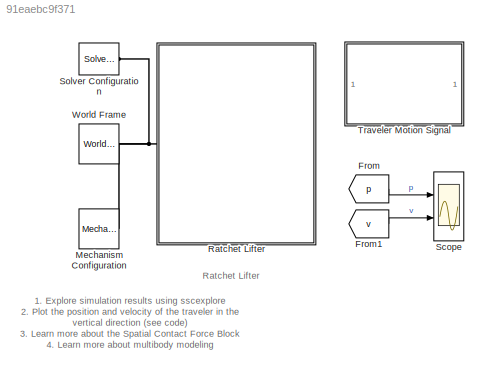
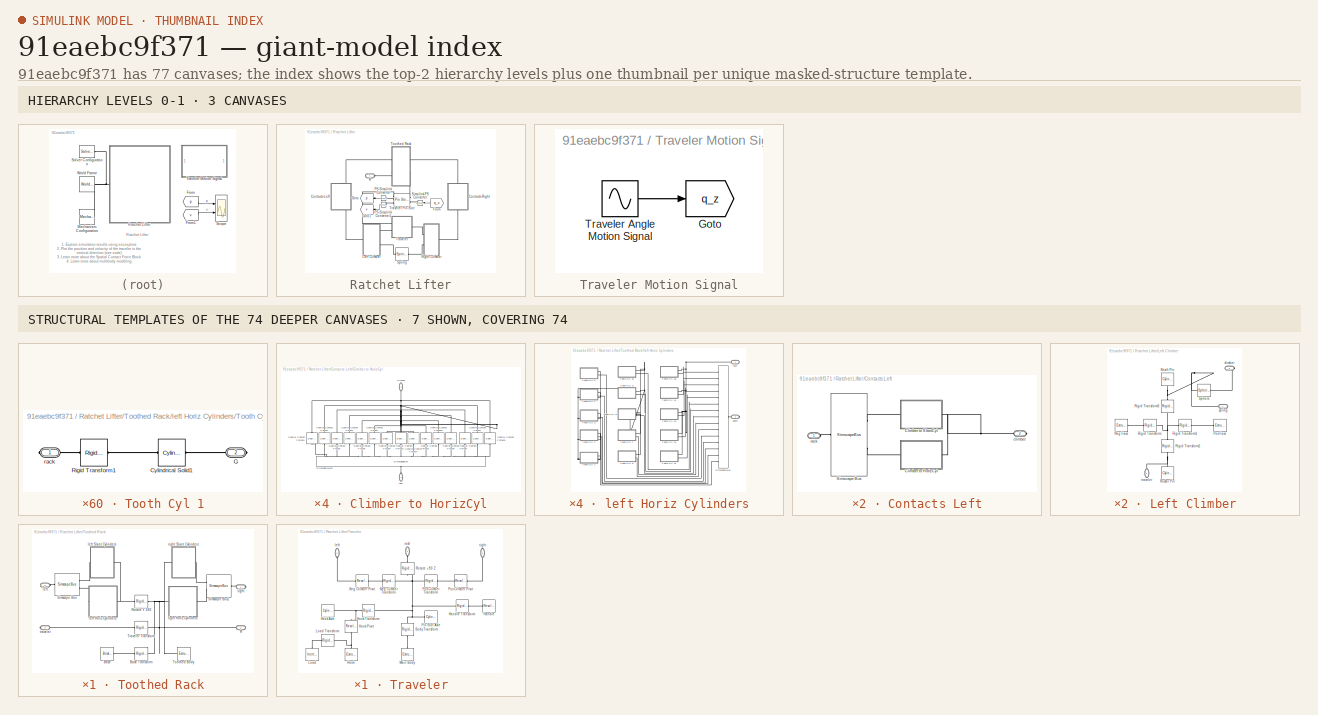
[diagram: thumbnail index - top-2 hierarchy levels (3 canvases) + 7 structural-template representatives of the remaining 74 canvases]
MODEL slx_91eaebc9f371
KIND model
CONFIG AbsTol = auto
CONFIG EnableMultiTasking = on
CONFIG FixedStep = auto
CONFIG MaxStep = 1e-3
CONFIG MinStep = auto
CONFIG RelTol = 1e-3
CONFIG SampleTimeConstraint = Unconstrained
CONFIG SolverName = daessc
CONFIG StartTime = 0.0
CONFIG StopTime = 20
WORKSPACE source: external: MATLAB File  (data not in archive)
BLOCK [From] From
  GotoTag = p
  TagVisibility = global
BLOCK [From] From1
  GotoTag = v
  TagVisibility = global
BLOCK [Reference] Mechanism Configuration  REF=sm_lib/Utilities/Mechanism
Configuration
  Ports = [0, 0, 0, 0, 0, 0, 1]
  SourceBlock = sm_lib/Utilities/Mechanism\nConfiguration
  SourceProductName = Multibody
  SourceType = Mechanism\nConfiguration
BLOCK [SubSystem] Ratchet Lifter
  Ports = [0, 0, 0, 0, 0, 1]
  RequestExecContextInheritance = off
BLOCK [SubSystem] Ratchet Lifter/Contacts Left
  NameLocation = left
  Ports = [0, 0, 0, 0, 0, 1, 1]
  RequestExecContextInheritance = off
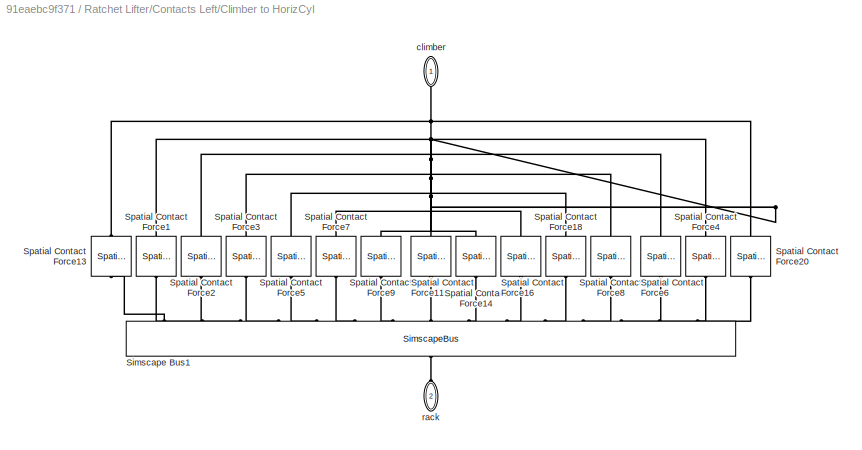
BLOCK [SubSystem] Ratchet Lifter/Contacts Left/Climber to HorizCyl
  NameLocation = top
  Ports = [0, 0, 0, 0, 0, 1, 1]
  RequestExecContextInheritance = off
BLOCK [SimscapeBus] Ratchet Lifter/Contacts Left/Climber to HorizCyl/Simscape Bus1
  HierarchyStrings = cyl15;cyl14;cyl13;cyl12;cyl11;cyl10;cyl9;cyl8;cyl7;cyl6;cyl5;cyl4;cyl3;cyl2;cyl1
  NameLocation = right
  Ports = [0, 0, 0, 0, 0, 15, 1]
BLOCK [Reference] Ratchet Lifter/Contacts Left/Climber to HorizCyl/Spatial Contact Force1  REF=sm_lib/Forces and
Torques/Spatial
Contact Force
  Ports = [0, 0, 0, 0, 0, 1, 1]
  SourceBlock = sm_lib/Forces and\nTorques/Spatial\nContact Force
  SourceProductName = Multibody
  SourceType = Spatial\nContact Force
BLOCK [Reference] Ratchet Lifter/Contacts Left/Climber to HorizCyl/Spatial Contact Force11  REF=sm_lib/Forces and
Torques/Spatial
Contact Force
  Ports = [0, 0, 0, 0, 0, 1, 1]
  SourceBlock = sm_lib/Forces and\nTorques/Spatial\nContact Force
  SourceProductName = Multibody
  SourceType = Spatial\nContact Force
BLOCK [Reference] Ratchet Lifter/Contacts Left/Climber to HorizCyl/Spatial Contact Force13  REF=sm_lib/Forces and
Torques/Spatial
Contact Force
  Ports = [0, 0, 0, 0, 0, 1, 1]
  SourceBlock = sm_lib/Forces and\nTorques/Spatial\nContact Force
  SourceProductName = Multibody
  SourceType = Spatial\nContact Force
BLOCK [Reference] Ratchet Lifter/Contacts Left/Climber to HorizCyl/Spatial Contact Force14  REF=sm_lib/Forces and
Torques/Spatial
Contact Force
  Ports = [0, 0, 0, 0, 0, 1, 1]
  SourceBlock = sm_lib/Forces and\nTorques/Spatial\nContact Force
  SourceProductName = Multibody
  SourceType = Spatial\nContact Force
BLOCK [Reference] Ratchet Lifter/Contacts Left/Climber to HorizCyl/Spatial Contact Force16  REF=sm_lib/Forces and
Torques/Spatial
Contact Force
  Ports = [0, 0, 0, 0, 0, 1, 1]
  SourceBlock = sm_lib/Forces and\nTorques/Spatial\nContact Force
  SourceProductName = Multibody
  SourceType = Spatial\nContact Force
BLOCK [Reference] Ratchet Lifter/Contacts Left/Climber to HorizCyl/Spatial Contact Force18  REF=sm_lib/Forces and
Torques/Spatial
Contact Force
  Ports = [0, 0, 0, 0, 0, 1, 1]
  SourceBlock = sm_lib/Forces and\nTorques/Spatial\nContact Force
  SourceProductName = Multibody
  SourceType = Spatial\nContact Force
BLOCK [Reference] Ratchet Lifter/Contacts Left/Climber to HorizCyl/Spatial Contact Force2  REF=sm_lib/Forces and
Torques/Spatial
Contact Force
  Ports = [0, 0, 0, 0, 0, 1, 1]
  SourceBlock = sm_lib/Forces and\nTorques/Spatial\nContact Force
  SourceProductName = Multibody
  SourceType = Spatial\nContact Force
BLOCK [Reference] Ratchet Lifter/Contacts Left/Climber to HorizCyl/Spatial Contact Force20  REF=sm_lib/Forces and
Torques/Spatial
Contact Force
  Ports = [0, 0, 0, 0, 0, 1, 1]
  SourceBlock = sm_lib/Forces and\nTorques/Spatial\nContact Force
  SourceProductName = Multibody
  SourceType = Spatial\nContact Force
BLOCK [Reference] Ratchet Lifter/Contacts Left/Climber to HorizCyl/Spatial Contact Force3  REF=sm_lib/Forces and
Torques/Spatial
Contact Force
  Ports = [0, 0, 0, 0, 0, 1, 1]
  SourceBlock = sm_lib/Forces and\nTorques/Spatial\nContact Force
  SourceProductName = Multibody
  SourceType = Spatial\nContact Force
BLOCK [Reference] Ratchet Lifter/Contacts Left/Climber to HorizCyl/Spatial Contact Force4  REF=sm_lib/Forces and
Torques/Spatial
Contact Force
  Ports = [0, 0, 0, 0, 0, 1, 1]
  SourceBlock = sm_lib/Forces and\nTorques/Spatial\nContact Force
  SourceProductName = Multibody
  SourceType = Spatial\nContact Force
BLOCK [Reference] Ratchet Lifter/Contacts Left/Climber to HorizCyl/Spatial Contact Force5  REF=sm_lib/Forces and
Torques/Spatial
Contact Force
  Ports = [0, 0, 0, 0, 0, 1, 1]
  SourceBlock = sm_lib/Forces and\nTorques/Spatial\nContact Force
  SourceProductName = Multibody
  SourceType = Spatial\nContact Force
BLOCK [Reference] Ratchet Lifter/Contacts Left/Climber to HorizCyl/Spatial Contact Force6  REF=sm_lib/Forces and
Torques/Spatial
Contact Force
  Ports = [0, 0, 0, 0, 0, 1, 1]
  SourceBlock = sm_lib/Forces and\nTorques/Spatial\nContact Force
  SourceProductName = Multibody
  SourceType = Spatial\nContact Force
BLOCK [Reference] Ratchet Lifter/Contacts Left/Climber to HorizCyl/Spatial Contact Force7  REF=sm_lib/Forces and
Torques/Spatial
Contact Force
  Ports = [0, 0, 0, 0, 0, 1, 1]
  SourceBlock = sm_lib/Forces and\nTorques/Spatial\nContact Force
  SourceProductName = Multibody
  SourceType = Spatial\nContact Force
BLOCK [Reference] Ratchet Lifter/Contacts Left/Climber to HorizCyl/Spatial Contact Force8  REF=sm_lib/Forces and
Torques/Spatial
Contact Force
  Ports = [0, 0, 0, 0, 0, 1, 1]
  SourceBlock = sm_lib/Forces and\nTorques/Spatial\nContact Force
  SourceProductName = Multibody
  SourceType = Spatial\nContact Force
BLOCK [Reference] Ratchet Lifter/Contacts Left/Climber to HorizCyl/Spatial Contact Force9  REF=sm_lib/Forces and
Torques/Spatial
Contact Force
  Ports = [0, 0, 0, 0, 0, 1, 1]
  SourceBlock = sm_lib/Forces and\nTorques/Spatial\nContact Force
  SourceProductName = Multibody
  SourceType = Spatial\nContact Force
BLOCK [PMIOPort] Ratchet Lifter/Contacts Left/Climber to HorizCyl/climber
  NameLocation = left
  Side = Right
BLOCK [PMIOPort] Ratchet Lifter/Contacts Left/Climber to HorizCyl/rack
  Port = 2
  Side = Left
BLOCK [SubSystem] Ratchet Lifter/Contacts Left/Climber to SlantCyl
  NameLocation = top
  Ports = [0, 0, 0, 0, 0, 1, 1]
  RequestExecContextInheritance = off
BLOCK [SimscapeBus] Ratchet Lifter/Contacts Left/Climber to SlantCyl/Simscape Bus1
  HierarchyStrings = cyl15;cyl14;cyl13;cyl12;cyl11;cyl10;cyl9;cyl8;cyl7;cyl6;cyl5;cyl4;cyl3;cyl2;cyl1
  NameLocation = right
  Ports = [0, 0, 0, 0, 0, 15, 1]
BLOCK [Reference] Ratchet Lifter/Contacts Left/Climber to SlantCyl/Spatial Contact Force1  REF=sm_lib/Forces and
Torques/Spatial
Contact Force
  Ports = [0, 0, 0, 0, 0, 1, 1]
  SourceBlock = sm_lib/Forces and\nTorques/Spatial\nContact Force
  SourceProductName = Multibody
  SourceType = Spatial\nContact Force
BLOCK [Reference] Ratchet Lifter/Contacts Left/Climber to SlantCyl/Spatial Contact Force11  REF=sm_lib/Forces and
Torques/Spatial
Contact Force
  Ports = [0, 0, 0, 0, 0, 1, 1]
  SourceBlock = sm_lib/Forces and\nTorques/Spatial\nContact Force
  SourceProductName = Multibody
  SourceType = Spatial\nContact Force
BLOCK [Reference] Ratchet Lifter/Contacts Left/Climber to SlantCyl/Spatial Contact Force13  REF=sm_lib/Forces and
Torques/Spatial
Contact Force
  Ports = [0, 0, 0, 0, 0, 1, 1]
  SourceBlock = sm_lib/Forces and\nTorques/Spatial\nContact Force
  SourceProductName = Multibody
  SourceType = Spatial\nContact Force
BLOCK [Reference] Ratchet Lifter/Contacts Left/Climber to SlantCyl/Spatial Contact Force14  REF=sm_lib/Forces and
Torques/Spatial
Contact Force
  Ports = [0, 0, 0, 0, 0, 1, 1]
  SourceBlock = sm_lib/Forces and\nTorques/Spatial\nContact Force
  SourceProductName = Multibody
  SourceType = Spatial\nContact Force
BLOCK [Reference] Ratchet Lifter/Contacts Left/Climber to SlantCyl/Spatial Contact Force16  REF=sm_lib/Forces and
Torques/Spatial
Contact Force
  Ports = [0, 0, 0, 0, 0, 1, 1]
  SourceBlock = sm_lib/Forces and\nTorques/Spatial\nContact Force
  SourceProductName = Multibody
  SourceType = Spatial\nContact Force
BLOCK [Reference] Ratchet Lifter/Contacts Left/Climber to SlantCyl/Spatial Contact Force18  REF=sm_lib/Forces and
Torques/Spatial
Contact Force
  Ports = [0, 0, 0, 0, 0, 1, 1]
  SourceBlock = sm_lib/Forces and\nTorques/Spatial\nContact Force
  SourceProductName = Multibody
  SourceType = Spatial\nContact Force
BLOCK [Reference] Ratchet Lifter/Contacts Left/Climber to SlantCyl/Spatial Contact Force2  REF=sm_lib/Forces and
Torques/Spatial
Contact Force
  Ports = [0, 0, 0, 0, 0, 1, 1]
  SourceBlock = sm_lib/Forces and\nTorques/Spatial\nContact Force
  SourceProductName = Multibody
  SourceType = Spatial\nContact Force
BLOCK [Reference] Ratchet Lifter/Contacts Left/Climber to SlantCyl/Spatial Contact Force20  REF=sm_lib/Forces and
Torques/Spatial
Contact Force
  Ports = [0, 0, 0, 0, 0, 1, 1]
  SourceBlock = sm_lib/Forces and\nTorques/Spatial\nContact Force
  SourceProductName = Multibody
  SourceType = Spatial\nContact Force
BLOCK [Reference] Ratchet Lifter/Contacts Left/Climber to SlantCyl/Spatial Contact Force3  REF=sm_lib/Forces and
Torques/Spatial
Contact Force
  Ports = [0, 0, 0, 0, 0, 1, 1]
  SourceBlock = sm_lib/Forces and\nTorques/Spatial\nContact Force
  SourceProductName = Multibody
  SourceType = Spatial\nContact Force
BLOCK [Reference] Ratchet Lifter/Contacts Left/Climber to SlantCyl/Spatial Contact Force4  REF=sm_lib/Forces and
Torques/Spatial
Contact Force
  Ports = [0, 0, 0, 0, 0, 1, 1]
  SourceBlock = sm_lib/Forces and\nTorques/Spatial\nContact Force
  SourceProductName = Multibody
  SourceType = Spatial\nContact Force
BLOCK [Reference] Ratchet Lifter/Contacts Left/Climber to SlantCyl/Spatial Contact Force5  REF=sm_lib/Forces and
Torques/Spatial
Contact Force
  Ports = [0, 0, 0, 0, 0, 1, 1]
  SourceBlock = sm_lib/Forces and\nTorques/Spatial\nContact Force
  SourceProductName = Multibody
  SourceType = Spatial\nContact Force
BLOCK [Reference] Ratchet Lifter/Contacts Left/Climber to SlantCyl/Spatial Contact Force6  REF=sm_lib/Forces and
Torques/Spatial
Contact Force
  Ports = [0, 0, 0, 0, 0, 1, 1]
  SourceBlock = sm_lib/Forces and\nTorques/Spatial\nContact Force
  SourceProductName = Multibody
  SourceType = Spatial\nContact Force
BLOCK [Reference] Ratchet Lifter/Contacts Left/Climber to SlantCyl/Spatial Contact Force7  REF=sm_lib/Forces and
Torques/Spatial
Contact Force
  Ports = [0, 0, 0, 0, 0, 1, 1]
  SourceBlock = sm_lib/Forces and\nTorques/Spatial\nContact Force
  SourceProductName = Multibody
  SourceType = Spatial\nContact Force
BLOCK [Reference] Ratchet Lifter/Contacts Left/Climber to SlantCyl/Spatial Contact Force8  REF=sm_lib/Forces and
Torques/Spatial
Contact Force
  Ports = [0, 0, 0, 0, 0, 1, 1]
  SourceBlock = sm_lib/Forces and\nTorques/Spatial\nContact Force
  SourceProductName = Multibody
  SourceType = Spatial\nContact Force
BLOCK [Reference] Ratchet Lifter/Contacts Left/Climber to SlantCyl/Spatial Contact Force9  REF=sm_lib/Forces and
Torques/Spatial
Contact Force
  Ports = [0, 0, 0, 0, 0, 1, 1]
  SourceBlock = sm_lib/Forces and\nTorques/Spatial\nContact Force
  SourceProductName = Multibody
  SourceType = Spatial\nContact Force
BLOCK [PMIOPort] Ratchet Lifter/Contacts Left/Climber to SlantCyl/climber
  NameLocation = left
  Side = Right
BLOCK [PMIOPort] Ratchet Lifter/Contacts Left/Climber to SlantCyl/rack
  Port = 2
  Side = Left
BLOCK [SimscapeBus] Ratchet Lifter/Contacts Left/Simscape Bus
  HierarchyStrings = LeftSlantCyl;LeftHorizCyl
  NameLocation = top
  Ports = [0, 0, 0, 0, 0, 2, 1]
BLOCK [PMIOPort] Ratchet Lifter/Contacts Left/climber
  Port = 2
  Side = Right
BLOCK [PMIOPort] Ratchet Lifter/Contacts Left/rack
  Side = Left
BLOCK [SubSystem] Ratchet Lifter/Contacts Right
  NameLocation = right
  Ports = [0, 0, 0, 0, 0, 1, 1]
  RequestExecContextInheritance = off
BLOCK [SubSystem] Ratchet Lifter/Contacts Right/Climber to HorizCyl
  NameLocation = top
  Ports = [0, 0, 0, 0, 0, 1, 1]
  RequestExecContextInheritance = off
BLOCK [SimscapeBus] Ratchet Lifter/Contacts Right/Climber to HorizCyl/Simscape Bus1
  HierarchyStrings = cyl15;cyl14;cyl13;cyl12;cyl11;cyl10;cyl9;cyl8;cyl7;cyl6;cyl5;cyl4;cyl3;cyl2;cyl1
  NameLocation = right
  Ports = [0, 0, 0, 0, 0, 15, 1]
BLOCK [Reference] Ratchet Lifter/Contacts Right/Climber to HorizCyl/Spatial Contact Force1  REF=sm_lib/Forces and
Torques/Spatial
Contact Force
  Ports = [0, 0, 0, 0, 0, 1, 1]
  SourceBlock = sm_lib/Forces and\nTorques/Spatial\nContact Force
  SourceProductName = Multibody
  SourceType = Spatial\nContact Force
BLOCK [Reference] Ratchet Lifter/Contacts Right/Climber to HorizCyl/Spatial Contact Force11  REF=sm_lib/Forces and
Torques/Spatial
Contact Force
  Ports = [0, 0, 0, 0, 0, 1, 1]
  SourceBlock = sm_lib/Forces and\nTorques/Spatial\nContact Force
  SourceProductName = Multibody
  SourceType = Spatial\nContact Force
BLOCK [Reference] Ratchet Lifter/Contacts Right/Climber to HorizCyl/Spatial Contact Force13  REF=sm_lib/Forces and
Torques/Spatial
Contact Force
  Ports = [0, 0, 0, 0, 0, 1, 1]
  SourceBlock = sm_lib/Forces and\nTorques/Spatial\nContact Force
  SourceProductName = Multibody
  SourceType = Spatial\nContact Force
BLOCK [Reference] Ratchet Lifter/Contacts Right/Climber to HorizCyl/Spatial Contact Force14  REF=sm_lib/Forces and
Torques/Spatial
Contact Force
  Ports = [0, 0, 0, 0, 0, 1, 1]
  SourceBlock = sm_lib/Forces and\nTorques/Spatial\nContact Force
  SourceProductName = Multibody
  SourceType = Spatial\nContact Force
BLOCK [Reference] Ratchet Lifter/Contacts Right/Climber to HorizCyl/Spatial Contact Force16  REF=sm_lib/Forces and
Torques/Spatial
Contact Force
  Ports = [0, 0, 0, 0, 0, 1, 1]
  SourceBlock = sm_lib/Forces and\nTorques/Spatial\nContact Force
  SourceProductName = Multibody
  SourceType = Spatial\nContact Force
BLOCK [Reference] Ratchet Lifter/Contacts Right/Climber to HorizCyl/Spatial Contact Force18  REF=sm_lib/Forces and
Torques/Spatial
Contact Force
  Ports = [0, 0, 0, 0, 0, 1, 1]
  SourceBlock = sm_lib/Forces and\nTorques/Spatial\nContact Force
  SourceProductName = Multibody
  SourceType = Spatial\nContact Force
BLOCK [Reference] Ratchet Lifter/Contacts Right/Climber to HorizCyl/Spatial Contact Force2  REF=sm_lib/Forces and
Torques/Spatial
Contact Force
  Ports = [0, 0, 0, 0, 0, 1, 1]
  SourceBlock = sm_lib/Forces and\nTorques/Spatial\nContact Force
  SourceProductName = Multibody
  SourceType = Spatial\nContact Force
BLOCK [Reference] Ratchet Lifter/Contacts Right/Climber to HorizCyl/Spatial Contact Force20  REF=sm_lib/Forces and
Torques/Spatial
Contact Force
  Ports = [0, 0, 0, 0, 0, 1, 1]
  SourceBlock = sm_lib/Forces and\nTorques/Spatial\nContact Force
  SourceProductName = Multibody
  SourceType = Spatial\nContact Force
BLOCK [Reference] Ratchet Lifter/Contacts Right/Climber to HorizCyl/Spatial Contact Force3  REF=sm_lib/Forces and
Torques/Spatial
Contact Force
  Ports = [0, 0, 0, 0, 0, 1, 1]
  SourceBlock = sm_lib/Forces and\nTorques/Spatial\nContact Force
  SourceProductName = Multibody
  SourceType = Spatial\nContact Force
BLOCK [Reference] Ratchet Lifter/Contacts Right/Climber to HorizCyl/Spatial Contact Force4  REF=sm_lib/Forces and
Torques/Spatial
Contact Force
  Ports = [0, 0, 0, 0, 0, 1, 1]
  SourceBlock = sm_lib/Forces and\nTorques/Spatial\nContact Force
  SourceProductName = Multibody
  SourceType = Spatial\nContact Force
BLOCK [Reference] Ratchet Lifter/Contacts Right/Climber to HorizCyl/Spatial Contact Force5  REF=sm_lib/Forces and
Torques/Spatial
Contact Force
  Ports = [0, 0, 0, 0, 0, 1, 1]
  SourceBlock = sm_lib/Forces and\nTorques/Spatial\nContact Force
  SourceProductName = Multibody
  SourceType = Spatial\nContact Force
BLOCK [Reference] Ratchet Lifter/Contacts Right/Climber to HorizCyl/Spatial Contact Force6  REF=sm_lib/Forces and
Torques/Spatial
Contact Force
  Ports = [0, 0, 0, 0, 0, 1, 1]
  SourceBlock = sm_lib/Forces and\nTorques/Spatial\nContact Force
  SourceProductName = Multibody
  SourceType = Spatial\nContact Force
BLOCK [Reference] Ratchet Lifter/Contacts Right/Climber to HorizCyl/Spatial Contact Force7  REF=sm_lib/Forces and
Torques/Spatial
Contact Force
  Ports = [0, 0, 0, 0, 0, 1, 1]
  SourceBlock = sm_lib/Forces and\nTorques/Spatial\nContact Force
  SourceProductName = Multibody
  SourceType = Spatial\nContact Force
BLOCK [Reference] Ratchet Lifter/Contacts Right/Climber to HorizCyl/Spatial Contact Force8  REF=sm_lib/Forces and
Torques/Spatial
Contact Force
  Ports = [0, 0, 0, 0, 0, 1, 1]
  SourceBlock = sm_lib/Forces and\nTorques/Spatial\nContact Force
  SourceProductName = Multibody
  SourceType = Spatial\nContact Force
BLOCK [Reference] Ratchet Lifter/Contacts Right/Climber to HorizCyl/Spatial Contact Force9  REF=sm_lib/Forces and
Torques/Spatial
Contact Force
  Ports = [0, 0, 0, 0, 0, 1, 1]
  SourceBlock = sm_lib/Forces and\nTorques/Spatial\nContact Force
  SourceProductName = Multibody
  SourceType = Spatial\nContact Force
BLOCK [PMIOPort] Ratchet Lifter/Contacts Right/Climber to HorizCyl/climber
  NameLocation = left
  Side = Right
BLOCK [PMIOPort] Ratchet Lifter/Contacts Right/Climber to HorizCyl/rack
  Port = 2
  Side = Left
BLOCK [SubSystem] Ratchet Lifter/Contacts Right/Climber to SlantCyl
  NameLocation = top
  Ports = [0, 0, 0, 0, 0, 1, 1]
  RequestExecContextInheritance = off
BLOCK [SimscapeBus] Ratchet Lifter/Contacts Right/Climber to SlantCyl/Simscape Bus1
  HierarchyStrings = cyl15;cyl14;cyl13;cyl12;cyl11;cyl10;cyl9;cyl8;cyl7;cyl6;cyl5;cyl4;cyl3;cyl2;cyl1
  NameLocation = right
  Ports = [0, 0, 0, 0, 0, 15, 1]
BLOCK [Reference] Ratchet Lifter/Contacts Right/Climber to SlantCyl/Spatial Contact Force1  REF=sm_lib/Forces and
Torques/Spatial
Contact Force
  Ports = [0, 0, 0, 0, 0, 1, 1]
  SourceBlock = sm_lib/Forces and\nTorques/Spatial\nContact Force
  SourceProductName = Multibody
  SourceType = Spatial\nContact Force
BLOCK [Reference] Ratchet Lifter/Contacts Right/Climber to SlantCyl/Spatial Contact Force11  REF=sm_lib/Forces and
Torques/Spatial
Contact Force
  Ports = [0, 0, 0, 0, 0, 1, 1]
  SourceBlock = sm_lib/Forces and\nTorques/Spatial\nContact Force
  SourceProductName = Multibody
  SourceType = Spatial\nContact Force
BLOCK [Reference] Ratchet Lifter/Contacts Right/Climber to SlantCyl/Spatial Contact Force13  REF=sm_lib/Forces and
Torques/Spatial
Contact Force
  Ports = [0, 0, 0, 0, 0, 1, 1]
  SourceBlock = sm_lib/Forces and\nTorques/Spatial\nContact Force
  SourceProductName = Multibody
  SourceType = Spatial\nContact Force
BLOCK [Reference] Ratchet Lifter/Contacts Right/Climber to SlantCyl/Spatial Contact Force14  REF=sm_lib/Forces and
Torques/Spatial
Contact Force
  Ports = [0, 0, 0, 0, 0, 1, 1]
  SourceBlock = sm_lib/Forces and\nTorques/Spatial\nContact Force
  SourceProductName = Multibody
  SourceType = Spatial\nContact Force
BLOCK [Reference] Ratchet Lifter/Contacts Right/Climber to SlantCyl/Spatial Contact Force16  REF=sm_lib/Forces and
Torques/Spatial
Contact Force
  Ports = [0, 0, 0, 0, 0, 1, 1]
  SourceBlock = sm_lib/Forces and\nTorques/Spatial\nContact Force
  SourceProductName = Multibody
  SourceType = Spatial\nContact Force
BLOCK [Reference] Ratchet Lifter/Contacts Right/Climber to SlantCyl/Spatial Contact Force18  REF=sm_lib/Forces and
Torques/Spatial
Contact Force
  Ports = [0, 0, 0, 0, 0, 1, 1]
  SourceBlock = sm_lib/Forces and\nTorques/Spatial\nContact Force
  SourceProductName = Multibody
  SourceType = Spatial\nContact Force
BLOCK [Reference] Ratchet Lifter/Contacts Right/Climber to SlantCyl/Spatial Contact Force2  REF=sm_lib/Forces and
Torques/Spatial
Contact Force
  Ports = [0, 0, 0, 0, 0, 1, 1]
  SourceBlock = sm_lib/Forces and\nTorques/Spatial\nContact Force
  SourceProductName = Multibody
  SourceType = Spatial\nContact Force
BLOCK [Reference] Ratchet Lifter/Contacts Right/Climber to SlantCyl/Spatial Contact Force20  REF=sm_lib/Forces and
Torques/Spatial
Contact Force
  Ports = [0, 0, 0, 0, 0, 1, 1]
  SourceBlock = sm_lib/Forces and\nTorques/Spatial\nContact Force
  SourceProductName = Multibody
  SourceType = Spatial\nContact Force
BLOCK [Reference] Ratchet Lifter/Contacts Right/Climber to SlantCyl/Spatial Contact Force3  REF=sm_lib/Forces and
Torques/Spatial
Contact Force
  Ports = [0, 0, 0, 0, 0, 1, 1]
  SourceBlock = sm_lib/Forces and\nTorques/Spatial\nContact Force
  SourceProductName = Multibody
  SourceType = Spatial\nContact Force
BLOCK [Reference] Ratchet Lifter/Contacts Right/Climber to SlantCyl/Spatial Contact Force4  REF=sm_lib/Forces and
Torques/Spatial
Contact Force
  Ports = [0, 0, 0, 0, 0, 1, 1]
  SourceBlock = sm_lib/Forces and\nTorques/Spatial\nContact Force
  SourceProductName = Multibody
  SourceType = Spatial\nContact Force
BLOCK [Reference] Ratchet Lifter/Contacts Right/Climber to SlantCyl/Spatial Contact Force5  REF=sm_lib/Forces and
Torques/Spatial
Contact Force
  Ports = [0, 0, 0, 0, 0, 1, 1]
  SourceBlock = sm_lib/Forces and\nTorques/Spatial\nContact Force
  SourceProductName = Multibody
  SourceType = Spatial\nContact Force
BLOCK [Reference] Ratchet Lifter/Contacts Right/Climber to SlantCyl/Spatial Contact Force6  REF=sm_lib/Forces and
Torques/Spatial
Contact Force
  Ports = [0, 0, 0, 0, 0, 1, 1]
  SourceBlock = sm_lib/Forces and\nTorques/Spatial\nContact Force
  SourceProductName = Multibody
  SourceType = Spatial\nContact Force
BLOCK [Reference] Ratchet Lifter/Contacts Right/Climber to SlantCyl/Spatial Contact Force7  REF=sm_lib/Forces and
Torques/Spatial
Contact Force
  Ports = [0, 0, 0, 0, 0, 1, 1]
  SourceBlock = sm_lib/Forces and\nTorques/Spatial\nContact Force
  SourceProductName = Multibody
  SourceType = Spatial\nContact Force
BLOCK [Reference] Ratchet Lifter/Contacts Right/Climber to SlantCyl/Spatial Contact Force8  REF=sm_lib/Forces and
Torques/Spatial
Contact Force
  Ports = [0, 0, 0, 0, 0, 1, 1]
  SourceBlock = sm_lib/Forces and\nTorques/Spatial\nContact Force
  SourceProductName = Multibody
  SourceType = Spatial\nContact Force
BLOCK [Reference] Ratchet Lifter/Contacts Right/Climber to SlantCyl/Spatial Contact Force9  REF=sm_lib/Forces and
Torques/Spatial
Contact Force
  Ports = [0, 0, 0, 0, 0, 1, 1]
  SourceBlock = sm_lib/Forces and\nTorques/Spatial\nContact Force
  SourceProductName = Multibody
  SourceType = Spatial\nContact Force
BLOCK [PMIOPort] Ratchet Lifter/Contacts Right/Climber to SlantCyl/climber
  NameLocation = left
  Side = Right
BLOCK [PMIOPort] Ratchet Lifter/Contacts Right/Climber to SlantCyl/rack
  Port = 2
  Side = Left
BLOCK [SimscapeBus] Ratchet Lifter/Contacts Right/Simscape Bus
  HierarchyStrings = RightSlantCyl;RightHorizCyl
  NameLocation = top
  Ports = [0, 0, 0, 0, 0, 2, 1]
BLOCK [PMIOPort] Ratchet Lifter/Contacts Right/climber
  Port = 2
  Side = Right
BLOCK [PMIOPort] Ratchet Lifter/Contacts Right/rack
  Side = Left
BLOCK [From] Ratchet Lifter/From
  GotoTag = q_z
  TagVisibility = global
BLOCK [Goto] Ratchet Lifter/Goto
  GotoTag = p
  TagVisibility = global
BLOCK [Goto] Ratchet Lifter/Goto1
  GotoTag = v
  TagVisibility = global
BLOCK [SubSystem] Ratchet Lifter/Left Climber
  Ports = [0, 0, 0, 0, 0, 2, 1]
  RequestExecContextInheritance = off
BLOCK [Reference] Ratchet Lifter/Left Climber/Neg Face  REF=sm_lib/Body Elements/Extruded Solid
  Ports = [0, 0, 0, 0, 0, 0, 1]
  SourceBlock = sm_lib/Body Elements/Extruded Solid
  SourceProductName = Multibody
  SourceType = Extruded Solid
BLOCK [Reference] Ratchet Lifter/Left Climber/Pos Face  REF=sm_lib/Body Elements/Extruded Solid
  Ports = [0, 0, 0, 0, 0, 0, 1]
  SourceBlock = sm_lib/Body Elements/Extruded Solid
  SourceProductName = Multibody
  SourceType = Extruded Solid
BLOCK [Reference] Ratchet Lifter/Left Climber/Rigid Transform  REF=sm_lib/Frames and
Transforms/Rigid
Transform
  Ports = [0, 0, 0, 0, 0, 1, 1]
  SourceBlock = sm_lib/Frames and\nTransforms/Rigid\nTransform
  SourceProductName = Multibody
  SourceType = Rigid\nTransform
BLOCK [Reference] Ratchet Lifter/Left Climber/Rigid Transform1  REF=sm_lib/Frames and
Transforms/Rigid
Transform
  Ports = [0, 0, 0, 0, 0, 1, 1]
  SourceBlock = sm_lib/Frames and\nTransforms/Rigid\nTransform
  SourceProductName = Multibody
  SourceType = Rigid\nTransform
BLOCK [Reference] Ratchet Lifter/Left Climber/Rigid Transform2  REF=sm_lib/Frames and
Transforms/Rigid
Transform
  Ports = [0, 0, 0, 0, 0, 1, 1]
  SourceBlock = sm_lib/Frames and\nTransforms/Rigid\nTransform
  SourceProductName = Multibody
  SourceType = Rigid\nTransform
BLOCK [Reference] Ratchet Lifter/Left Climber/Rigid Transform3  REF=sm_lib/Frames and
Transforms/Rigid
Transform
  Ports = [0, 0, 0, 0, 0, 1, 1]
  SourceBlock = sm_lib/Frames and\nTransforms/Rigid\nTransform
  SourceProductName = Multibody
  SourceType = Rigid\nTransform
BLOCK [Reference] Ratchet Lifter/Left Climber/Rocker Pin  REF=sm_lib/Body Elements/Cylindrical Solid
  Ports = [0, 0, 0, 0, 0, 0, 1]
  SourceBlock = sm_lib/Body Elements/Cylindrical Solid
  SourceProductName = Multibody
  SourceType = Cylindrical Solid
BLOCK [Reference] Ratchet Lifter/Left Climber/Shaft Pin  REF=sm_lib/Body Elements/Cylindrical Solid
  Ports = [0, 0, 0, 0, 0, 0, 1]
  SourceBlock = sm_lib/Body Elements/Cylindrical Solid
  SourceProductName = Multibody
  SourceType = Cylindrical Solid
BLOCK [Reference] Ratchet Lifter/Left Climber/Sphere  REF=sm_lib/Body Elements/Spherical Solid
  Ports = [0, 0, 0, 0, 0, 1, 1]
  SourceBlock = sm_lib/Body Elements/Spherical Solid
  SourceProductName = Multibody
  SourceType = Spherical Solid
BLOCK [PMIOPort] Ratchet Lifter/Left Climber/climber
  Port = 3
  Side = Right
BLOCK [PMIOPort] Ratchet Lifter/Left Climber/spring
  Port = 2
  Side = Left
BLOCK [PMIOPort] Ratchet Lifter/Left Climber/traveler
  NameLocation = left
  Side = Left
BLOCK [Reference] Ratchet Lifter/PS-Simulink Converter  REF=nesl_utility/PS-Simulink
Converter
  Ports = [0, 1, 0, 0, 0, 1]
  SourceBlock = nesl_utility/PS-Simulink\nConverter
  SourceProductName = Utilities
  SourceType = PS-Simulink\nConverter
BLOCK [Reference] Ratchet Lifter/PS-Simulink Converter1  REF=nesl_utility/PS-Simulink
Converter
  Ports = [0, 1, 0, 0, 0, 1]
  SourceBlock = nesl_utility/PS-Simulink\nConverter
  SourceProductName = Utilities
  SourceType = PS-Simulink\nConverter
BLOCK [PMIOPort] Ratchet Lifter/R
  Side = Left
BLOCK [SubSystem] Ratchet Lifter/Right Climber
  Ports = [0, 0, 0, 0, 0, 2, 1]
  RequestExecContextInheritance = off
BLOCK [Reference] Ratchet Lifter/Right Climber/Neg Face  REF=sm_lib/Body Elements/Extruded Solid
  Ports = [0, 0, 0, 0, 0, 0, 1]
  SourceBlock = sm_lib/Body Elements/Extruded Solid
  SourceProductName = Multibody
  SourceType = Extruded Solid
BLOCK [Reference] Ratchet Lifter/Right Climber/Pos Face  REF=sm_lib/Body Elements/Extruded Solid
  Ports = [0, 0, 0, 0, 0, 0, 1]
  SourceBlock = sm_lib/Body Elements/Extruded Solid
  SourceProductName = Multibody
  SourceType = Extruded Solid
BLOCK [Reference] Ratchet Lifter/Right Climber/Rigid Transform  REF=sm_lib/Frames and
Transforms/Rigid
Transform
  Ports = [0, 0, 0, 0, 0, 1, 1]
  SourceBlock = sm_lib/Frames and\nTransforms/Rigid\nTransform
  SourceProductName = Multibody
  SourceType = Rigid\nTransform
BLOCK [Reference] Ratchet Lifter/Right Climber/Rigid Transform1  REF=sm_lib/Frames and
Transforms/Rigid
Transform
  Ports = [0, 0, 0, 0, 0, 1, 1]
  SourceBlock = sm_lib/Frames and\nTransforms/Rigid\nTransform
  SourceProductName = Multibody
  SourceType = Rigid\nTransform
BLOCK [Reference] Ratchet Lifter/Right Climber/Rigid Transform2  REF=sm_lib/Frames and
Transforms/Rigid
Transform
  Ports = [0, 0, 0, 0, 0, 1, 1]
  SourceBlock = sm_lib/Frames and\nTransforms/Rigid\nTransform
  SourceProductName = Multibody
  SourceType = Rigid\nTransform
BLOCK [Reference] Ratchet Lifter/Right Climber/Rigid Transform3  REF=sm_lib/Frames and
Transforms/Rigid
Transform
  Ports = [0, 0, 0, 0, 0, 1, 1]
  SourceBlock = sm_lib/Frames and\nTransforms/Rigid\nTransform
  SourceProductName = Multibody
  SourceType = Rigid\nTransform
BLOCK [Reference] Ratchet Lifter/Right Climber/Rocker Pin  REF=sm_lib/Body Elements/Cylindrical Solid
  Ports = [0, 0, 0, 0, 0, 0, 1]
  SourceBlock = sm_lib/Body Elements/Cylindrical Solid
  SourceProductName = Multibody
  SourceType = Cylindrical Solid
BLOCK [Reference] Ratchet Lifter/Right Climber/Shaft Pin  REF=sm_lib/Body Elements/Cylindrical Solid
  Ports = [0, 0, 0, 0, 0, 0, 1]
  SourceBlock = sm_lib/Body Elements/Cylindrical Solid
  SourceProductName = Multibody
  SourceType = Cylindrical Solid
BLOCK [Reference] Ratchet Lifter/Right Climber/Sphere  REF=sm_lib/Body Elements/Spherical Solid
  Ports = [0, 0, 0, 0, 0, 1, 1]
  SourceBlock = sm_lib/Body Elements/Spherical Solid
  SourceProductName = Multibody
  SourceType = Spherical Solid
BLOCK [PMIOPort] Ratchet Lifter/Right Climber/climber
  Port = 2
  Side = Right
BLOCK [PMIOPort] Ratchet Lifter/Right Climber/spring
  Port = 3
  Side = Left
BLOCK [PMIOPort] Ratchet Lifter/Right Climber/traveler
  NameLocation = left
  Side = Left
BLOCK [Reference] Ratchet Lifter/Simulink-PS Converter  REF=nesl_utility/Simulink-PS
Converter
  Ports = [1, 0, 0, 0, 0, 0, 1]
  SourceBlock = nesl_utility/Simulink-PS\nConverter
  SourceProductName = Utilities
  SourceType = Simulink-PS\nConverter
BLOCK [Reference] Ratchet Lifter/Spring  REF=sm_lib/Forces and
Torques/Spring and
Damper Force
  Ports = [0, 0, 0, 0, 0, 1, 1]
  SourceBlock = sm_lib/Forces and\nTorques/Spring and\nDamper Force
  SourceProductName = Multibody
  SourceType = Spring and\nDamper Force
BLOCK [SubSystem] Ratchet Lifter/Toothed Rack
  Ports = [0, 0, 0, 0, 0, 2, 2]
  RequestExecContextInheritance = off
BLOCK [Reference] Ratchet Lifter/Toothed Rack/Base  REF=sm_lib/Body Elements/Brick Solid
  Ports = [0, 0, 0, 0, 0, 0, 1]
  SourceBlock = sm_lib/Body Elements/Brick Solid
  SourceProductName = Multibody
  SourceType = Brick Solid
BLOCK [Reference] Ratchet Lifter/Toothed Rack/Base Transform  REF=sm_lib/Frames and
Transforms/Rigid
Transform
  Ports = [0, 0, 0, 0, 0, 1, 1]
  SourceBlock = sm_lib/Frames and\nTransforms/Rigid\nTransform
  SourceProductName = Multibody
  SourceType = Rigid\nTransform
BLOCK [PMIOPort] Ratchet Lifter/Toothed Rack/R
  Port = 3
  Side = Left
BLOCK [Reference] Ratchet Lifter/Toothed Rack/Rotate Y 180  REF=sm_lib/Frames and
Transforms/Rigid
Transform
  Ports = [0, 0, 0, 0, 0, 1, 1]
  SourceBlock = sm_lib/Frames and\nTransforms/Rigid\nTransform
  SourceProductName = Multibody
  SourceType = Rigid\nTransform
BLOCK [SimscapeBus] Ratchet Lifter/Toothed Rack/Simscape Bus
  HierarchyStrings = LeftSlantCyl;LeftHorizCyl
  Ports = [0, 0, 0, 0, 0, 2, 1]
BLOCK [SimscapeBus] Ratchet Lifter/Toothed Rack/Simscape Bus1
  HierarchyStrings = RightSlantCyl;RightHorizCyl
  Ports = [0, 0, 0, 0, 0, 2, 1]
BLOCK [Reference] Ratchet Lifter/Toothed Rack/Toothed Body  REF=sm_lib/Body Elements/Extruded Solid
  Ports = [0, 0, 0, 0, 0, 0, 1]
  SourceBlock = sm_lib/Body Elements/Extruded Solid
  SourceProductName = Multibody
  SourceType = Extruded Solid
BLOCK [Reference] Ratchet Lifter/Toothed Rack/Traveler Transform  REF=sm_lib/Frames and
Transforms/Rigid
Transform
  Ports = [0, 0, 0, 0, 0, 1, 1]
  SourceBlock = sm_lib/Frames and\nTransforms/Rigid\nTransform
  SourceProductName = Multibody
  SourceType = Rigid\nTransform
BLOCK [PMIOPort] Ratchet Lifter/Toothed Rack/left
  Port = 2
  Side = Left
BLOCK [SubSystem] Ratchet Lifter/Toothed Rack/left Horiz Cylinders
  Ports = [0, 0, 0, 0, 0, 1, 1]
  RequestExecContextInheritance = off
BLOCK [SimscapeBus] Ratchet Lifter/Toothed Rack/left Horiz Cylinders/Simscape Bus
  HierarchyStrings = cyl15;cyl14;cyl13;cyl12;cyl11;cyl10;cyl9;cyl8;cyl7;cyl6;cyl5;cyl4;cyl3;cyl2;cyl1
  NameLocation = top
  Ports = [0, 0, 0, 0, 0, 15, 1]
BLOCK [SubSystem] Ratchet Lifter/Toothed Rack/left Horiz Cylinders/Tooth Cyl 1
  Ports = [0, 0, 0, 0, 0, 0, 2]
  RequestExecContextInheritance = off
BLOCK [Reference] Ratchet Lifter/Toothed Rack/left Horiz Cylinders/Tooth Cyl 1/Cylindrical Solid1  REF=sm_lib/Body Elements/Cylindrical Solid
  Ports = [0, 0, 0, 0, 0, 1, 1]
  SourceBlock = sm_lib/Body Elements/Cylindrical Solid
  SourceProductName = Multibody
  SourceType = Cylindrical Solid
BLOCK [PMIOPort] Ratchet Lifter/Toothed Rack/left Horiz Cylinders/Tooth Cyl 1/G
  Port = 2
  Side = Right
BLOCK [Reference] Ratchet Lifter/Toothed Rack/left Horiz Cylinders/Tooth Cyl 1/Rigid Transform1  REF=sm_lib/Frames and
Transforms/Rigid
Transform
  Ports = [0, 0, 0, 0, 0, 1, 1]
  SourceBlock = sm_lib/Frames and\nTransforms/Rigid\nTransform
  SourceProductName = Multibody
  SourceType = Rigid\nTransform
BLOCK [PMIOPort] Ratchet Lifter/Toothed Rack/left Horiz Cylinders/Tooth Cyl 1/rack
  Side = Right
BLOCK [SubSystem] Ratchet Lifter/Toothed Rack/left Horiz Cylinders/Tooth Cyl 10
  Ports = [0, 0, 0, 0, 0, 0, 2]
  RequestExecContextInheritance = off
BLOCK [Reference] Ratchet Lifter/Toothed Rack/left Horiz Cylinders/Tooth Cyl 10/Cylindrical Solid1  REF=sm_lib/Body Elements/Cylindrical Solid
  Ports = [0, 0, 0, 0, 0, 1, 1]
  SourceBlock = sm_lib/Body Elements/Cylindrical Solid
  SourceProductName = Multibody
  SourceType = Cylindrical Solid
BLOCK [PMIOPort] Ratchet Lifter/Toothed Rack/left Horiz Cylinders/Tooth Cyl 10/G
  Port = 2
  Side = Right
BLOCK [Reference] Ratchet Lifter/Toothed Rack/left Horiz Cylinders/Tooth Cyl 10/Rigid Transform1  REF=sm_lib/Frames and
Transforms/Rigid
Transform
  Ports = [0, 0, 0, 0, 0, 1, 1]
  SourceBlock = sm_lib/Frames and\nTransforms/Rigid\nTransform
  SourceProductName = Multibody
  SourceType = Rigid\nTransform
BLOCK [PMIOPort] Ratchet Lifter/Toothed Rack/left Horiz Cylinders/Tooth Cyl 10/rack
  Side = Right
BLOCK [SubSystem] Ratchet Lifter/Toothed Rack/left Horiz Cylinders/Tooth Cyl 11
  Ports = [0, 0, 0, 0, 0, 0, 2]
  RequestExecContextInheritance = off
BLOCK [Reference] Ratchet Lifter/Toothed Rack/left Horiz Cylinders/Tooth Cyl 11/Cylindrical Solid1  REF=sm_lib/Body Elements/Cylindrical Solid
  Ports = [0, 0, 0, 0, 0, 1, 1]
  SourceBlock = sm_lib/Body Elements/Cylindrical Solid
  SourceProductName = Multibody
  SourceType = Cylindrical Solid
BLOCK [PMIOPort] Ratchet Lifter/Toothed Rack/left Horiz Cylinders/Tooth Cyl 11/G
  Port = 2
  Side = Right
BLOCK [Reference] Ratchet Lifter/Toothed Rack/left Horiz Cylinders/Tooth Cyl 11/Rigid Transform1  REF=sm_lib/Frames and
Transforms/Rigid
Transform
  Ports = [0, 0, 0, 0, 0, 1, 1]
  SourceBlock = sm_lib/Frames and\nTransforms/Rigid\nTransform
  SourceProductName = Multibody
  SourceType = Rigid\nTransform
BLOCK [PMIOPort] Ratchet Lifter/Toothed Rack/left Horiz Cylinders/Tooth Cyl 11/rack
  Side = Right
BLOCK [SubSystem] Ratchet Lifter/Toothed Rack/left Horiz Cylinders/Tooth Cyl 12
  Ports = [0, 0, 0, 0, 0, 0, 2]
  RequestExecContextInheritance = off
BLOCK [Reference] Ratchet Lifter/Toothed Rack/left Horiz Cylinders/Tooth Cyl 12/Cylindrical Solid1  REF=sm_lib/Body Elements/Cylindrical Solid
  Ports = [0, 0, 0, 0, 0, 1, 1]
  SourceBlock = sm_lib/Body Elements/Cylindrical Solid
  SourceProductName = Multibody
  SourceType = Cylindrical Solid
BLOCK [PMIOPort] Ratchet Lifter/Toothed Rack/left Horiz Cylinders/Tooth Cyl 12/G
  Port = 2
  Side = Right
BLOCK [Reference] Ratchet Lifter/Toothed Rack/left Horiz Cylinders/Tooth Cyl 12/Rigid Transform1  REF=sm_lib/Frames and
Transforms/Rigid
Transform
  Ports = [0, 0, 0, 0, 0, 1, 1]
  SourceBlock = sm_lib/Frames and\nTransforms/Rigid\nTransform
  SourceProductName = Multibody
  SourceType = Rigid\nTransform
BLOCK [PMIOPort] Ratchet Lifter/Toothed Rack/left Horiz Cylinders/Tooth Cyl 12/rack
  Side = Right
BLOCK [SubSystem] Ratchet Lifter/Toothed Rack/left Horiz Cylinders/Tooth Cyl 13
  Ports = [0, 0, 0, 0, 0, 0, 2]
  RequestExecContextInheritance = off
BLOCK [Reference] Ratchet Lifter/Toothed Rack/left Horiz Cylinders/Tooth Cyl 13/Cylindrical Solid1  REF=sm_lib/Body Elements/Cylindrical Solid
  Ports = [0, 0, 0, 0, 0, 1, 1]
  SourceBlock = sm_lib/Body Elements/Cylindrical Solid
  SourceProductName = Multibody
  SourceType = Cylindrical Solid
BLOCK [PMIOPort] Ratchet Lifter/Toothed Rack/left Horiz Cylinders/Tooth Cyl 13/G
  Port = 2
  Side = Right
BLOCK [Reference] Ratchet Lifter/Toothed Rack/left Horiz Cylinders/Tooth Cyl 13/Rigid Transform1  REF=sm_lib/Frames and
Transforms/Rigid
Transform
  Ports = [0, 0, 0, 0, 0, 1, 1]
  SourceBlock = sm_lib/Frames and\nTransforms/Rigid\nTransform
  SourceProductName = Multibody
  SourceType = Rigid\nTransform
BLOCK [PMIOPort] Ratchet Lifter/Toothed Rack/left Horiz Cylinders/Tooth Cyl 13/rack
  Side = Right
BLOCK [SubSystem] Ratchet Lifter/Toothed Rack/left Horiz Cylinders/Tooth Cyl 14
  Ports = [0, 0, 0, 0, 0, 0, 2]
  RequestExecContextInheritance = off
BLOCK [Reference] Ratchet Lifter/Toothed Rack/left Horiz Cylinders/Tooth Cyl 14/Cylindrical Solid1  REF=sm_lib/Body Elements/Cylindrical Solid
  Ports = [0, 0, 0, 0, 0, 1, 1]
  SourceBlock = sm_lib/Body Elements/Cylindrical Solid
  SourceProductName = Multibody
  SourceType = Cylindrical Solid
BLOCK [PMIOPort] Ratchet Lifter/Toothed Rack/left Horiz Cylinders/Tooth Cyl 14/G
  Port = 2
  Side = Right
BLOCK [Reference] Ratchet Lifter/Toothed Rack/left Horiz Cylinders/Tooth Cyl 14/Rigid Transform1  REF=sm_lib/Frames and
Transforms/Rigid
Transform
  Ports = [0, 0, 0, 0, 0, 1, 1]
  SourceBlock = sm_lib/Frames and\nTransforms/Rigid\nTransform
  SourceProductName = Multibody
  SourceType = Rigid\nTransform
BLOCK [PMIOPort] Ratchet Lifter/Toothed Rack/left Horiz Cylinders/Tooth Cyl 14/rack
  Side = Right
BLOCK [SubSystem] Ratchet Lifter/Toothed Rack/left Horiz Cylinders/Tooth Cyl 15
  Ports = [0, 0, 0, 0, 0, 0, 2]
  RequestExecContextInheritance = off
BLOCK [Reference] Ratchet Lifter/Toothed Rack/left Horiz Cylinders/Tooth Cyl 15/Cylindrical Solid1  REF=sm_lib/Body Elements/Cylindrical Solid
  Ports = [0, 0, 0, 0, 0, 1, 1]
  SourceBlock = sm_lib/Body Elements/Cylindrical Solid
  SourceProductName = Multibody
  SourceType = Cylindrical Solid
BLOCK [PMIOPort] Ratchet Lifter/Toothed Rack/left Horiz Cylinders/Tooth Cyl 15/G
  Port = 2
  Side = Right
BLOCK [Reference] Ratchet Lifter/Toothed Rack/left Horiz Cylinders/Tooth Cyl 15/Rigid Transform1  REF=sm_lib/Frames and
Transforms/Rigid
Transform
  Ports = [0, 0, 0, 0, 0, 1, 1]
  SourceBlock = sm_lib/Frames and\nTransforms/Rigid\nTransform
  SourceProductName = Multibody
  SourceType = Rigid\nTransform
BLOCK [PMIOPort] Ratchet Lifter/Toothed Rack/left Horiz Cylinders/Tooth Cyl 15/rack
  Side = Right
BLOCK [SubSystem] Ratchet Lifter/Toothed Rack/left Horiz Cylinders/Tooth Cyl 2
  Ports = [0, 0, 0, 0, 0, 0, 2]
  RequestExecContextInheritance = off
BLOCK [Reference] Ratchet Lifter/Toothed Rack/left Horiz Cylinders/Tooth Cyl 2/Cylindrical Solid1  REF=sm_lib/Body Elements/Cylindrical Solid
  Ports = [0, 0, 0, 0, 0, 1, 1]
  SourceBlock = sm_lib/Body Elements/Cylindrical Solid
  SourceProductName = Multibody
  SourceType = Cylindrical Solid
BLOCK [PMIOPort] Ratchet Lifter/Toothed Rack/left Horiz Cylinders/Tooth Cyl 2/G
  Port = 2
  Side = Right
BLOCK [Reference] Ratchet Lifter/Toothed Rack/left Horiz Cylinders/Tooth Cyl 2/Rigid Transform1  REF=sm_lib/Frames and
Transforms/Rigid
Transform
  Ports = [0, 0, 0, 0, 0, 1, 1]
  SourceBlock = sm_lib/Frames and\nTransforms/Rigid\nTransform
  SourceProductName = Multibody
  SourceType = Rigid\nTransform
BLOCK [PMIOPort] Ratchet Lifter/Toothed Rack/left Horiz Cylinders/Tooth Cyl 2/rack
  Side = Right
BLOCK [SubSystem] Ratchet Lifter/Toothed Rack/left Horiz Cylinders/Tooth Cyl 3
  Ports = [0, 0, 0, 0, 0, 0, 2]
  RequestExecContextInheritance = off
BLOCK [Reference] Ratchet Lifter/Toothed Rack/left Horiz Cylinders/Tooth Cyl 3/Cylindrical Solid1  REF=sm_lib/Body Elements/Cylindrical Solid
  Ports = [0, 0, 0, 0, 0, 1, 1]
  SourceBlock = sm_lib/Body Elements/Cylindrical Solid
  SourceProductName = Multibody
  SourceType = Cylindrical Solid
BLOCK [PMIOPort] Ratchet Lifter/Toothed Rack/left Horiz Cylinders/Tooth Cyl 3/G
  Port = 2
  Side = Right
BLOCK [Reference] Ratchet Lifter/Toothed Rack/left Horiz Cylinders/Tooth Cyl 3/Rigid Transform1  REF=sm_lib/Frames and
Transforms/Rigid
Transform
  Ports = [0, 0, 0, 0, 0, 1, 1]
  SourceBlock = sm_lib/Frames and\nTransforms/Rigid\nTransform
  SourceProductName = Multibody
  SourceType = Rigid\nTransform
BLOCK [PMIOPort] Ratchet Lifter/Toothed Rack/left Horiz Cylinders/Tooth Cyl 3/rack
  Side = Right
BLOCK [SubSystem] Ratchet Lifter/Toothed Rack/left Horiz Cylinders/Tooth Cyl 4
  Ports = [0, 0, 0, 0, 0, 0, 2]
  RequestExecContextInheritance = off
BLOCK [Reference] Ratchet Lifter/Toothed Rack/left Horiz Cylinders/Tooth Cyl 4/Cylindrical Solid1  REF=sm_lib/Body Elements/Cylindrical Solid
  Ports = [0, 0, 0, 0, 0, 1, 1]
  SourceBlock = sm_lib/Body Elements/Cylindrical Solid
  SourceProductName = Multibody
  SourceType = Cylindrical Solid
BLOCK [PMIOPort] Ratchet Lifter/Toothed Rack/left Horiz Cylinders/Tooth Cyl 4/G
  Port = 2
  Side = Right
BLOCK [Reference] Ratchet Lifter/Toothed Rack/left Horiz Cylinders/Tooth Cyl 4/Rigid Transform1  REF=sm_lib/Frames and
Transforms/Rigid
Transform
  Ports = [0, 0, 0, 0, 0, 1, 1]
  SourceBlock = sm_lib/Frames and\nTransforms/Rigid\nTransform
  SourceProductName = Multibody
  SourceType = Rigid\nTransform
BLOCK [PMIOPort] Ratchet Lifter/Toothed Rack/left Horiz Cylinders/Tooth Cyl 4/rack
  Side = Right
BLOCK [SubSystem] Ratchet Lifter/Toothed Rack/left Horiz Cylinders/Tooth Cyl 5
  Ports = [0, 0, 0, 0, 0, 0, 2]
  RequestExecContextInheritance = off
BLOCK [Reference] Ratchet Lifter/Toothed Rack/left Horiz Cylinders/Tooth Cyl 5/Cylindrical Solid1  REF=sm_lib/Body Elements/Cylindrical Solid
  Ports = [0, 0, 0, 0, 0, 1, 1]
  SourceBlock = sm_lib/Body Elements/Cylindrical Solid
  SourceProductName = Multibody
  SourceType = Cylindrical Solid
BLOCK [PMIOPort] Ratchet Lifter/Toothed Rack/left Horiz Cylinders/Tooth Cyl 5/G
  Port = 2
  Side = Right
BLOCK [Reference] Ratchet Lifter/Toothed Rack/left Horiz Cylinders/Tooth Cyl 5/Rigid Transform1  REF=sm_lib/Frames and
Transforms/Rigid
Transform
  Ports = [0, 0, 0, 0, 0, 1, 1]
  SourceBlock = sm_lib/Frames and\nTransforms/Rigid\nTransform
  SourceProductName = Multibody
  SourceType = Rigid\nTransform
BLOCK [PMIOPort] Ratchet Lifter/Toothed Rack/left Horiz Cylinders/Tooth Cyl 5/rack
  Side = Right
BLOCK [SubSystem] Ratchet Lifter/Toothed Rack/left Horiz Cylinders/Tooth Cyl 6
  Ports = [0, 0, 0, 0, 0, 0, 2]
  RequestExecContextInheritance = off
BLOCK [Reference] Ratchet Lifter/Toothed Rack/left Horiz Cylinders/Tooth Cyl 6/Cylindrical Solid1  REF=sm_lib/Body Elements/Cylindrical Solid
  Ports = [0, 0, 0, 0, 0, 1, 1]
  SourceBlock = sm_lib/Body Elements/Cylindrical Solid
  SourceProductName = Multibody
  SourceType = Cylindrical Solid
BLOCK [PMIOPort] Ratchet Lifter/Toothed Rack/left Horiz Cylinders/Tooth Cyl 6/G
  Port = 2
  Side = Right
BLOCK [Reference] Ratchet Lifter/Toothed Rack/left Horiz Cylinders/Tooth Cyl 6/Rigid Transform1  REF=sm_lib/Frames and
Transforms/Rigid
Transform
  Ports = [0, 0, 0, 0, 0, 1, 1]
  SourceBlock = sm_lib/Frames and\nTransforms/Rigid\nTransform
  SourceProductName = Multibody
  SourceType = Rigid\nTransform
BLOCK [PMIOPort] Ratchet Lifter/Toothed Rack/left Horiz Cylinders/Tooth Cyl 6/rack
  Side = Right
BLOCK [SubSystem] Ratchet Lifter/Toothed Rack/left Horiz Cylinders/Tooth Cyl 7
  Ports = [0, 0, 0, 0, 0, 0, 2]
  RequestExecContextInheritance = off
BLOCK [Reference] Ratchet Lifter/Toothed Rack/left Horiz Cylinders/Tooth Cyl 7/Cylindrical Solid1  REF=sm_lib/Body Elements/Cylindrical Solid
  Ports = [0, 0, 0, 0, 0, 1, 1]
  SourceBlock = sm_lib/Body Elements/Cylindrical Solid
  SourceProductName = Multibody
  SourceType = Cylindrical Solid
BLOCK [PMIOPort] Ratchet Lifter/Toothed Rack/left Horiz Cylinders/Tooth Cyl 7/G
  Port = 2
  Side = Right
BLOCK [Reference] Ratchet Lifter/Toothed Rack/left Horiz Cylinders/Tooth Cyl 7/Rigid Transform1  REF=sm_lib/Frames and
Transforms/Rigid
Transform
  Ports = [0, 0, 0, 0, 0, 1, 1]
  SourceBlock = sm_lib/Frames and\nTransforms/Rigid\nTransform
  SourceProductName = Multibody
  SourceType = Rigid\nTransform
BLOCK [PMIOPort] Ratchet Lifter/Toothed Rack/left Horiz Cylinders/Tooth Cyl 7/rack
  Side = Right
BLOCK [SubSystem] Ratchet Lifter/Toothed Rack/left Horiz Cylinders/Tooth Cyl 8
  Ports = [0, 0, 0, 0, 0, 0, 2]
  RequestExecContextInheritance = off
BLOCK [Reference] Ratchet Lifter/Toothed Rack/left Horiz Cylinders/Tooth Cyl 8/Cylindrical Solid1  REF=sm_lib/Body Elements/Cylindrical Solid
  Ports = [0, 0, 0, 0, 0, 1, 1]
  SourceBlock = sm_lib/Body Elements/Cylindrical Solid
  SourceProductName = Multibody
  SourceType = Cylindrical Solid
BLOCK [PMIOPort] Ratchet Lifter/Toothed Rack/left Horiz Cylinders/Tooth Cyl 8/G
  Port = 2
  Side = Right
BLOCK [Reference] Ratchet Lifter/Toothed Rack/left Horiz Cylinders/Tooth Cyl 8/Rigid Transform1  REF=sm_lib/Frames and
Transforms/Rigid
Transform
  Ports = [0, 0, 0, 0, 0, 1, 1]
  SourceBlock = sm_lib/Frames and\nTransforms/Rigid\nTransform
  SourceProductName = Multibody
  SourceType = Rigid\nTransform
BLOCK [PMIOPort] Ratchet Lifter/Toothed Rack/left Horiz Cylinders/Tooth Cyl 8/rack
  Side = Right
BLOCK [SubSystem] Ratchet Lifter/Toothed Rack/left Horiz Cylinders/Tooth Cyl 9
  Ports = [0, 0, 0, 0, 0, 0, 2]
  RequestExecContextInheritance = off
BLOCK [Reference] Ratchet Lifter/Toothed Rack/left Horiz Cylinders/Tooth Cyl 9/Cylindrical Solid1  REF=sm_lib/Body Elements/Cylindrical Solid
  Ports = [0, 0, 0, 0, 0, 1, 1]
  SourceBlock = sm_lib/Body Elements/Cylindrical Solid
  SourceProductName = Multibody
  SourceType = Cylindrical Solid
BLOCK [PMIOPort] Ratchet Lifter/Toothed Rack/left Horiz Cylinders/Tooth Cyl 9/G
  Port = 2
  Side = Right
BLOCK [Reference] Ratchet Lifter/Toothed Rack/left Horiz Cylinders/Tooth Cyl 9/Rigid Transform1  REF=sm_lib/Frames and
Transforms/Rigid
Transform
  Ports = [0, 0, 0, 0, 0, 1, 1]
  SourceBlock = sm_lib/Frames and\nTransforms/Rigid\nTransform
  SourceProductName = Multibody
  SourceType = Rigid\nTransform
BLOCK [PMIOPort] Ratchet Lifter/Toothed Rack/left Horiz Cylinders/Tooth Cyl 9/rack
  Side = Right
BLOCK [PMIOPort] Ratchet Lifter/Toothed Rack/left Horiz Cylinders/geom
  Port = 2
  Side = Right
BLOCK [PMIOPort] Ratchet Lifter/Toothed Rack/left Horiz Cylinders/rack
  Side = Left
BLOCK [SubSystem] Ratchet Lifter/Toothed Rack/left Slant Cylinders
  Ports = [0, 0, 0, 0, 0, 1, 1]
  RequestExecContextInheritance = off
BLOCK [SimscapeBus] Ratchet Lifter/Toothed Rack/left Slant Cylinders/Simscape Bus
  HierarchyStrings = cyl15;cyl14;cyl13;cyl12;cyl11;cyl10;cyl9;cyl8;cyl7;cyl6;cyl5;cyl4;cyl3;cyl2;cyl1
  NameLocation = top
  Ports = [0, 0, 0, 0, 0, 15, 1]
BLOCK [SubSystem] Ratchet Lifter/Toothed Rack/left Slant Cylinders/Tooth Cyl 1
  Ports = [0, 0, 0, 0, 0, 0, 2]
  RequestExecContextInheritance = off
BLOCK [Reference] Ratchet Lifter/Toothed Rack/left Slant Cylinders/Tooth Cyl 1/Cylindrical Solid  REF=sm_lib/Body Elements/Cylindrical Solid
  Ports = [0, 0, 0, 0, 0, 1, 1]
  SourceBlock = sm_lib/Body Elements/Cylindrical Solid
  SourceProductName = Multibody
  SourceType = Cylindrical Solid
BLOCK [PMIOPort] Ratchet Lifter/Toothed Rack/left Slant Cylinders/Tooth Cyl 1/G
  Port = 2
  Side = Right
BLOCK [Reference] Ratchet Lifter/Toothed Rack/left Slant Cylinders/Tooth Cyl 1/Rigid Transform  REF=sm_lib/Frames and
Transforms/Rigid
Transform
  Ports = [0, 0, 0, 0, 0, 1, 1]
  SourceBlock = sm_lib/Frames and\nTransforms/Rigid\nTransform
  SourceProductName = Multibody
  SourceType = Rigid\nTransform
BLOCK [PMIOPort] Ratchet Lifter/Toothed Rack/left Slant Cylinders/Tooth Cyl 1/rack
  Side = Right
BLOCK [SubSystem] Ratchet Lifter/Toothed Rack/left Slant Cylinders/Tooth Cyl 10
  Ports = [0, 0, 0, 0, 0, 0, 2]
  RequestExecContextInheritance = off
BLOCK [Reference] Ratchet Lifter/Toothed Rack/left Slant Cylinders/Tooth Cyl 10/Cylindrical Solid  REF=sm_lib/Body Elements/Cylindrical Solid
  Ports = [0, 0, 0, 0, 0, 1, 1]
  SourceBlock = sm_lib/Body Elements/Cylindrical Solid
  SourceProductName = Multibody
  SourceType = Cylindrical Solid
BLOCK [PMIOPort] Ratchet Lifter/Toothed Rack/left Slant Cylinders/Tooth Cyl 10/G
  Port = 2
  Side = Right
BLOCK [Reference] Ratchet Lifter/Toothed Rack/left Slant Cylinders/Tooth Cyl 10/Rigid Transform  REF=sm_lib/Frames and
Transforms/Rigid
Transform
  Ports = [0, 0, 0, 0, 0, 1, 1]
  SourceBlock = sm_lib/Frames and\nTransforms/Rigid\nTransform
  SourceProductName = Multibody
  SourceType = Rigid\nTransform
BLOCK [PMIOPort] Ratchet Lifter/Toothed Rack/left Slant Cylinders/Tooth Cyl 10/rack
  Side = Right
BLOCK [SubSystem] Ratchet Lifter/Toothed Rack/left Slant Cylinders/Tooth Cyl 11
  Ports = [0, 0, 0, 0, 0, 0, 2]
  RequestExecContextInheritance = off
BLOCK [Reference] Ratchet Lifter/Toothed Rack/left Slant Cylinders/Tooth Cyl 11/Cylindrical Solid  REF=sm_lib/Body Elements/Cylindrical Solid
  Ports = [0, 0, 0, 0, 0, 1, 1]
  SourceBlock = sm_lib/Body Elements/Cylindrical Solid
  SourceProductName = Multibody
  SourceType = Cylindrical Solid
BLOCK [PMIOPort] Ratchet Lifter/Toothed Rack/left Slant Cylinders/Tooth Cyl 11/G
  Port = 2
  Side = Right
BLOCK [Reference] Ratchet Lifter/Toothed Rack/left Slant Cylinders/Tooth Cyl 11/Rigid Transform  REF=sm_lib/Frames and
Transforms/Rigid
Transform
  Ports = [0, 0, 0, 0, 0, 1, 1]
  SourceBlock = sm_lib/Frames and\nTransforms/Rigid\nTransform
  SourceProductName = Multibody
  SourceType = Rigid\nTransform
BLOCK [PMIOPort] Ratchet Lifter/Toothed Rack/left Slant Cylinders/Tooth Cyl 11/rack
  Side = Right
BLOCK [SubSystem] Ratchet Lifter/Toothed Rack/left Slant Cylinders/Tooth Cyl 12
  Ports = [0, 0, 0, 0, 0, 0, 2]
  RequestExecContextInheritance = off
BLOCK [Reference] Ratchet Lifter/Toothed Rack/left Slant Cylinders/Tooth Cyl 12/Cylindrical Solid  REF=sm_lib/Body Elements/Cylindrical Solid
  Ports = [0, 0, 0, 0, 0, 1, 1]
  SourceBlock = sm_lib/Body Elements/Cylindrical Solid
  SourceProductName = Multibody
  SourceType = Cylindrical Solid
BLOCK [PMIOPort] Ratchet Lifter/Toothed Rack/left Slant Cylinders/Tooth Cyl 12/G
  Port = 2
  Side = Right
BLOCK [Reference] Ratchet Lifter/Toothed Rack/left Slant Cylinders/Tooth Cyl 12/Rigid Transform  REF=sm_lib/Frames and
Transforms/Rigid
Transform
  Ports = [0, 0, 0, 0, 0, 1, 1]
  SourceBlock = sm_lib/Frames and\nTransforms/Rigid\nTransform
  SourceProductName = Multibody
  SourceType = Rigid\nTransform
BLOCK [PMIOPort] Ratchet Lifter/Toothed Rack/left Slant Cylinders/Tooth Cyl 12/rack
  Side = Right
BLOCK [SubSystem] Ratchet Lifter/Toothed Rack/left Slant Cylinders/Tooth Cyl 13
  Ports = [0, 0, 0, 0, 0, 0, 2]
  RequestExecContextInheritance = off
BLOCK [Reference] Ratchet Lifter/Toothed Rack/left Slant Cylinders/Tooth Cyl 13/Cylindrical Solid  REF=sm_lib/Body Elements/Cylindrical Solid
  Ports = [0, 0, 0, 0, 0, 1, 1]
  SourceBlock = sm_lib/Body Elements/Cylindrical Solid
  SourceProductName = Multibody
  SourceType = Cylindrical Solid
BLOCK [PMIOPort] Ratchet Lifter/Toothed Rack/left Slant Cylinders/Tooth Cyl 13/G
  Port = 2
  Side = Right
BLOCK [Reference] Ratchet Lifter/Toothed Rack/left Slant Cylinders/Tooth Cyl 13/Rigid Transform  REF=sm_lib/Frames and
Transforms/Rigid
Transform
  Ports = [0, 0, 0, 0, 0, 1, 1]
  SourceBlock = sm_lib/Frames and\nTransforms/Rigid\nTransform
  SourceProductName = Multibody
  SourceType = Rigid\nTransform
BLOCK [PMIOPort] Ratchet Lifter/Toothed Rack/left Slant Cylinders/Tooth Cyl 13/rack
  Side = Right
BLOCK [SubSystem] Ratchet Lifter/Toothed Rack/left Slant Cylinders/Tooth Cyl 14
  Ports = [0, 0, 0, 0, 0, 0, 2]
  RequestExecContextInheritance = off
BLOCK [Reference] Ratchet Lifter/Toothed Rack/left Slant Cylinders/Tooth Cyl 14/Cylindrical Solid  REF=sm_lib/Body Elements/Cylindrical Solid
  Ports = [0, 0, 0, 0, 0, 1, 1]
  SourceBlock = sm_lib/Body Elements/Cylindrical Solid
  SourceProductName = Multibody
  SourceType = Cylindrical Solid
BLOCK [PMIOPort] Ratchet Lifter/Toothed Rack/left Slant Cylinders/Tooth Cyl 14/G
  Port = 2
  Side = Right
BLOCK [Reference] Ratchet Lifter/Toothed Rack/left Slant Cylinders/Tooth Cyl 14/Rigid Transform  REF=sm_lib/Frames and
Transforms/Rigid
Transform
  Ports = [0, 0, 0, 0, 0, 1, 1]
  SourceBlock = sm_lib/Frames and\nTransforms/Rigid\nTransform
  SourceProductName = Multibody
  SourceType = Rigid\nTransform
BLOCK [PMIOPort] Ratchet Lifter/Toothed Rack/left Slant Cylinders/Tooth Cyl 14/rack
  Side = Right
BLOCK [SubSystem] Ratchet Lifter/Toothed Rack/left Slant Cylinders/Tooth Cyl 15
  Ports = [0, 0, 0, 0, 0, 0, 2]
  RequestExecContextInheritance = off
BLOCK [Reference] Ratchet Lifter/Toothed Rack/left Slant Cylinders/Tooth Cyl 15/Cylindrical Solid  REF=sm_lib/Body Elements/Cylindrical Solid
  Ports = [0, 0, 0, 0, 0, 1, 1]
  SourceBlock = sm_lib/Body Elements/Cylindrical Solid
  SourceProductName = Multibody
  SourceType = Cylindrical Solid
BLOCK [PMIOPort] Ratchet Lifter/Toothed Rack/left Slant Cylinders/Tooth Cyl 15/G
  Port = 2
  Side = Right
BLOCK [Reference] Ratchet Lifter/Toothed Rack/left Slant Cylinders/Tooth Cyl 15/Rigid Transform  REF=sm_lib/Frames and
Transforms/Rigid
Transform
  Ports = [0, 0, 0, 0, 0, 1, 1]
  SourceBlock = sm_lib/Frames and\nTransforms/Rigid\nTransform
  SourceProductName = Multibody
  SourceType = Rigid\nTransform
BLOCK [PMIOPort] Ratchet Lifter/Toothed Rack/left Slant Cylinders/Tooth Cyl 15/rack
  Side = Right
BLOCK [SubSystem] Ratchet Lifter/Toothed Rack/left Slant Cylinders/Tooth Cyl 2
  Ports = [0, 0, 0, 0, 0, 0, 2]
  RequestExecContextInheritance = off
BLOCK [Reference] Ratchet Lifter/Toothed Rack/left Slant Cylinders/Tooth Cyl 2/Cylindrical Solid  REF=sm_lib/Body Elements/Cylindrical Solid
  Ports = [0, 0, 0, 0, 0, 1, 1]
  SourceBlock = sm_lib/Body Elements/Cylindrical Solid
  SourceProductName = Multibody
  SourceType = Cylindrical Solid
BLOCK [PMIOPort] Ratchet Lifter/Toothed Rack/left Slant Cylinders/Tooth Cyl 2/G
  Port = 2
  Side = Right
BLOCK [Reference] Ratchet Lifter/Toothed Rack/left Slant Cylinders/Tooth Cyl 2/Rigid Transform  REF=sm_lib/Frames and
Transforms/Rigid
Transform
  Ports = [0, 0, 0, 0, 0, 1, 1]
  SourceBlock = sm_lib/Frames and\nTransforms/Rigid\nTransform
  SourceProductName = Multibody
  SourceType = Rigid\nTransform
BLOCK [PMIOPort] Ratchet Lifter/Toothed Rack/left Slant Cylinders/Tooth Cyl 2/rack
  Side = Right
BLOCK [SubSystem] Ratchet Lifter/Toothed Rack/left Slant Cylinders/Tooth Cyl 3
  Ports = [0, 0, 0, 0, 0, 0, 2]
  RequestExecContextInheritance = off
BLOCK [Reference] Ratchet Lifter/Toothed Rack/left Slant Cylinders/Tooth Cyl 3/Cylindrical Solid  REF=sm_lib/Body Elements/Cylindrical Solid
  Ports = [0, 0, 0, 0, 0, 1, 1]
  SourceBlock = sm_lib/Body Elements/Cylindrical Solid
  SourceProductName = Multibody
  SourceType = Cylindrical Solid
BLOCK [PMIOPort] Ratchet Lifter/Toothed Rack/left Slant Cylinders/Tooth Cyl 3/G
  Port = 2
  Side = Right
BLOCK [Reference] Ratchet Lifter/Toothed Rack/left Slant Cylinders/Tooth Cyl 3/Rigid Transform  REF=sm_lib/Frames and
Transforms/Rigid
Transform
  Ports = [0, 0, 0, 0, 0, 1, 1]
  SourceBlock = sm_lib/Frames and\nTransforms/Rigid\nTransform
  SourceProductName = Multibody
  SourceType = Rigid\nTransform
BLOCK [PMIOPort] Ratchet Lifter/Toothed Rack/left Slant Cylinders/Tooth Cyl 3/rack
  Side = Right
BLOCK [SubSystem] Ratchet Lifter/Toothed Rack/left Slant Cylinders/Tooth Cyl 4
  Ports = [0, 0, 0, 0, 0, 0, 2]
  RequestExecContextInheritance = off
BLOCK [Reference] Ratchet Lifter/Toothed Rack/left Slant Cylinders/Tooth Cyl 4/Cylindrical Solid  REF=sm_lib/Body Elements/Cylindrical Solid
  Ports = [0, 0, 0, 0, 0, 1, 1]
  SourceBlock = sm_lib/Body Elements/Cylindrical Solid
  SourceProductName = Multibody
  SourceType = Cylindrical Solid
BLOCK [PMIOPort] Ratchet Lifter/Toothed Rack/left Slant Cylinders/Tooth Cyl 4/G
  Port = 2
  Side = Right
BLOCK [Reference] Ratchet Lifter/Toothed Rack/left Slant Cylinders/Tooth Cyl 4/Rigid Transform  REF=sm_lib/Frames and
Transforms/Rigid
Transform
  Ports = [0, 0, 0, 0, 0, 1, 1]
  SourceBlock = sm_lib/Frames and\nTransforms/Rigid\nTransform
  SourceProductName = Multibody
  SourceType = Rigid\nTransform
BLOCK [PMIOPort] Ratchet Lifter/Toothed Rack/left Slant Cylinders/Tooth Cyl 4/rack
  Side = Right
BLOCK [SubSystem] Ratchet Lifter/Toothed Rack/left Slant Cylinders/Tooth Cyl 5
  Ports = [0, 0, 0, 0, 0, 0, 2]
  RequestExecContextInheritance = off
BLOCK [Reference] Ratchet Lifter/Toothed Rack/left Slant Cylinders/Tooth Cyl 5/Cylindrical Solid  REF=sm_lib/Body Elements/Cylindrical Solid
  Ports = [0, 0, 0, 0, 0, 1, 1]
  SourceBlock = sm_lib/Body Elements/Cylindrical Solid
  SourceProductName = Multibody
  SourceType = Cylindrical Solid
BLOCK [PMIOPort] Ratchet Lifter/Toothed Rack/left Slant Cylinders/Tooth Cyl 5/G
  Port = 2
  Side = Right
BLOCK [Reference] Ratchet Lifter/Toothed Rack/left Slant Cylinders/Tooth Cyl 5/Rigid Transform  REF=sm_lib/Frames and
Transforms/Rigid
Transform
  Ports = [0, 0, 0, 0, 0, 1, 1]
  SourceBlock = sm_lib/Frames and\nTransforms/Rigid\nTransform
  SourceProductName = Multibody
  SourceType = Rigid\nTransform
BLOCK [PMIOPort] Ratchet Lifter/Toothed Rack/left Slant Cylinders/Tooth Cyl 5/rack
  Side = Right
BLOCK [SubSystem] Ratchet Lifter/Toothed Rack/left Slant Cylinders/Tooth Cyl 6
  Ports = [0, 0, 0, 0, 0, 0, 2]
  RequestExecContextInheritance = off
BLOCK [Reference] Ratchet Lifter/Toothed Rack/left Slant Cylinders/Tooth Cyl 6/Cylindrical Solid  REF=sm_lib/Body Elements/Cylindrical Solid
  Ports = [0, 0, 0, 0, 0, 1, 1]
  SourceBlock = sm_lib/Body Elements/Cylindrical Solid
  SourceProductName = Multibody
  SourceType = Cylindrical Solid
BLOCK [PMIOPort] Ratchet Lifter/Toothed Rack/left Slant Cylinders/Tooth Cyl 6/G
  Port = 2
  Side = Right
BLOCK [Reference] Ratchet Lifter/Toothed Rack/left Slant Cylinders/Tooth Cyl 6/Rigid Transform  REF=sm_lib/Frames and
Transforms/Rigid
Transform
  Ports = [0, 0, 0, 0, 0, 1, 1]
  SourceBlock = sm_lib/Frames and\nTransforms/Rigid\nTransform
  SourceProductName = Multibody
  SourceType = Rigid\nTransform
BLOCK [PMIOPort] Ratchet Lifter/Toothed Rack/left Slant Cylinders/Tooth Cyl 6/rack
  Side = Right
BLOCK [SubSystem] Ratchet Lifter/Toothed Rack/left Slant Cylinders/Tooth Cyl 7
  Ports = [0, 0, 0, 0, 0, 0, 2]
  RequestExecContextInheritance = off
BLOCK [Reference] Ratchet Lifter/Toothed Rack/left Slant Cylinders/Tooth Cyl 7/Cylindrical Solid  REF=sm_lib/Body Elements/Cylindrical Solid
  Ports = [0, 0, 0, 0, 0, 1, 1]
  SourceBlock = sm_lib/Body Elements/Cylindrical Solid
  SourceProductName = Multibody
  SourceType = Cylindrical Solid
BLOCK [PMIOPort] Ratchet Lifter/Toothed Rack/left Slant Cylinders/Tooth Cyl 7/G
  Port = 2
  Side = Right
BLOCK [Reference] Ratchet Lifter/Toothed Rack/left Slant Cylinders/Tooth Cyl 7/Rigid Transform  REF=sm_lib/Frames and
Transforms/Rigid
Transform
  Ports = [0, 0, 0, 0, 0, 1, 1]
  SourceBlock = sm_lib/Frames and\nTransforms/Rigid\nTransform
  SourceProductName = Multibody
  SourceType = Rigid\nTransform
BLOCK [PMIOPort] Ratchet Lifter/Toothed Rack/left Slant Cylinders/Tooth Cyl 7/rack
  Side = Right
BLOCK [SubSystem] Ratchet Lifter/Toothed Rack/left Slant Cylinders/Tooth Cyl 8
  Ports = [0, 0, 0, 0, 0, 0, 2]
  RequestExecContextInheritance = off
BLOCK [Reference] Ratchet Lifter/Toothed Rack/left Slant Cylinders/Tooth Cyl 8/Cylindrical Solid  REF=sm_lib/Body Elements/Cylindrical Solid
  Ports = [0, 0, 0, 0, 0, 1, 1]
  SourceBlock = sm_lib/Body Elements/Cylindrical Solid
  SourceProductName = Multibody
  SourceType = Cylindrical Solid
BLOCK [PMIOPort] Ratchet Lifter/Toothed Rack/left Slant Cylinders/Tooth Cyl 8/G
  Port = 2
  Side = Right
BLOCK [Reference] Ratchet Lifter/Toothed Rack/left Slant Cylinders/Tooth Cyl 8/Rigid Transform  REF=sm_lib/Frames and
Transforms/Rigid
Transform
  Ports = [0, 0, 0, 0, 0, 1, 1]
  SourceBlock = sm_lib/Frames and\nTransforms/Rigid\nTransform
  SourceProductName = Multibody
  SourceType = Rigid\nTransform
BLOCK [PMIOPort] Ratchet Lifter/Toothed Rack/left Slant Cylinders/Tooth Cyl 8/rack
  Side = Right
BLOCK [SubSystem] Ratchet Lifter/Toothed Rack/left Slant Cylinders/Tooth Cyl 9
  Ports = [0, 0, 0, 0, 0, 0, 2]
  RequestExecContextInheritance = off
BLOCK [Reference] Ratchet Lifter/Toothed Rack/left Slant Cylinders/Tooth Cyl 9/Cylindrical Solid  REF=sm_lib/Body Elements/Cylindrical Solid
  Ports = [0, 0, 0, 0, 0, 1, 1]
  SourceBlock = sm_lib/Body Elements/Cylindrical Solid
  SourceProductName = Multibody
  SourceType = Cylindrical Solid
BLOCK [PMIOPort] Ratchet Lifter/Toothed Rack/left Slant Cylinders/Tooth Cyl 9/G
  Port = 2
  Side = Right
BLOCK [Reference] Ratchet Lifter/Toothed Rack/left Slant Cylinders/Tooth Cyl 9/Rigid Transform  REF=sm_lib/Frames and
Transforms/Rigid
Transform
  Ports = [0, 0, 0, 0, 0, 1, 1]
  SourceBlock = sm_lib/Frames and\nTransforms/Rigid\nTransform
  SourceProductName = Multibody
  SourceType = Rigid\nTransform
BLOCK [PMIOPort] Ratchet Lifter/Toothed Rack/left Slant Cylinders/Tooth Cyl 9/rack
  Side = Right
BLOCK [PMIOPort] Ratchet Lifter/Toothed Rack/left Slant Cylinders/geom
  Port = 2
  Side = Right
BLOCK [PMIOPort] Ratchet Lifter/Toothed Rack/left Slant Cylinders/rack
  Side = Left
BLOCK [PMIOPort] Ratchet Lifter/Toothed Rack/right
  Side = Right
BLOCK [SubSystem] Ratchet Lifter/Toothed Rack/right Horiz Cylinders
  Ports = [0, 0, 0, 0, 0, 1, 1]
  RequestExecContextInheritance = off
BLOCK [SimscapeBus] Ratchet Lifter/Toothed Rack/right Horiz Cylinders/Simscape Bus
  HierarchyStrings = cyl15;cyl14;cyl13;cyl12;cyl11;cyl10;cyl9;cyl8;cyl7;cyl6;cyl5;cyl4;cyl3;cyl2;cyl1
  NameLocation = top
  Ports = [0, 0, 0, 0, 0, 15, 1]
BLOCK [SubSystem] Ratchet Lifter/Toothed Rack/right Horiz Cylinders/Tooth Cyl 1
  Ports = [0, 0, 0, 0, 0, 0, 2]
  RequestExecContextInheritance = off
BLOCK [Reference] Ratchet Lifter/Toothed Rack/right Horiz Cylinders/Tooth Cyl 1/Cylindrical Solid1  REF=sm_lib/Body Elements/Cylindrical Solid
  Ports = [0, 0, 0, 0, 0, 1, 1]
  SourceBlock = sm_lib/Body Elements/Cylindrical Solid
  SourceProductName = Multibody
  SourceType = Cylindrical Solid
BLOCK [PMIOPort] Ratchet Lifter/Toothed Rack/right Horiz Cylinders/Tooth Cyl 1/G
  Port = 2
  Side = Right
BLOCK [Reference] Ratchet Lifter/Toothed Rack/right Horiz Cylinders/Tooth Cyl 1/Rigid Transform1  REF=sm_lib/Frames and
Transforms/Rigid
Transform
  Ports = [0, 0, 0, 0, 0, 1, 1]
  SourceBlock = sm_lib/Frames and\nTransforms/Rigid\nTransform
  SourceProductName = Multibody
  SourceType = Rigid\nTransform
BLOCK [PMIOPort] Ratchet Lifter/Toothed Rack/right Horiz Cylinders/Tooth Cyl 1/rack
  Side = Right
BLOCK [SubSystem] Ratchet Lifter/Toothed Rack/right Horiz Cylinders/Tooth Cyl 10
  Ports = [0, 0, 0, 0, 0, 0, 2]
  RequestExecContextInheritance = off
BLOCK [Reference] Ratchet Lifter/Toothed Rack/right Horiz Cylinders/Tooth Cyl 10/Cylindrical Solid1  REF=sm_lib/Body Elements/Cylindrical Solid
  Ports = [0, 0, 0, 0, 0, 1, 1]
  SourceBlock = sm_lib/Body Elements/Cylindrical Solid
  SourceProductName = Multibody
  SourceType = Cylindrical Solid
BLOCK [PMIOPort] Ratchet Lifter/Toothed Rack/right Horiz Cylinders/Tooth Cyl 10/G
  Port = 2
  Side = Right
BLOCK [Reference] Ratchet Lifter/Toothed Rack/right Horiz Cylinders/Tooth Cyl 10/Rigid Transform1  REF=sm_lib/Frames and
Transforms/Rigid
Transform
  Ports = [0, 0, 0, 0, 0, 1, 1]
  SourceBlock = sm_lib/Frames and\nTransforms/Rigid\nTransform
  SourceProductName = Multibody
  SourceType = Rigid\nTransform
BLOCK [PMIOPort] Ratchet Lifter/Toothed Rack/right Horiz Cylinders/Tooth Cyl 10/rack
  Side = Right
BLOCK [SubSystem] Ratchet Lifter/Toothed Rack/right Horiz Cylinders/Tooth Cyl 11
  Ports = [0, 0, 0, 0, 0, 0, 2]
  RequestExecContextInheritance = off
BLOCK [Reference] Ratchet Lifter/Toothed Rack/right Horiz Cylinders/Tooth Cyl 11/Cylindrical Solid1  REF=sm_lib/Body Elements/Cylindrical Solid
  Ports = [0, 0, 0, 0, 0, 1, 1]
  SourceBlock = sm_lib/Body Elements/Cylindrical Solid
  SourceProductName = Multibody
  SourceType = Cylindrical Solid
BLOCK [PMIOPort] Ratchet Lifter/Toothed Rack/right Horiz Cylinders/Tooth Cyl 11/G
  Port = 2
  Side = Right
BLOCK [Reference] Ratchet Lifter/Toothed Rack/right Horiz Cylinders/Tooth Cyl 11/Rigid Transform1  REF=sm_lib/Frames and
Transforms/Rigid
Transform
  Ports = [0, 0, 0, 0, 0, 1, 1]
  SourceBlock = sm_lib/Frames and\nTransforms/Rigid\nTransform
  SourceProductName = Multibody
  SourceType = Rigid\nTransform
BLOCK [PMIOPort] Ratchet Lifter/Toothed Rack/right Horiz Cylinders/Tooth Cyl 11/rack
  Side = Right
BLOCK [SubSystem] Ratchet Lifter/Toothed Rack/right Horiz Cylinders/Tooth Cyl 12
  Ports = [0, 0, 0, 0, 0, 0, 2]
  RequestExecContextInheritance = off
BLOCK [Reference] Ratchet Lifter/Toothed Rack/right Horiz Cylinders/Tooth Cyl 12/Cylindrical Solid1  REF=sm_lib/Body Elements/Cylindrical Solid
  Ports = [0, 0, 0, 0, 0, 1, 1]
  SourceBlock = sm_lib/Body Elements/Cylindrical Solid
  SourceProductName = Multibody
  SourceType = Cylindrical Solid
BLOCK [PMIOPort] Ratchet Lifter/Toothed Rack/right Horiz Cylinders/Tooth Cyl 12/G
  Port = 2
  Side = Right
BLOCK [Reference] Ratchet Lifter/Toothed Rack/right Horiz Cylinders/Tooth Cyl 12/Rigid Transform1  REF=sm_lib/Frames and
Transforms/Rigid
Transform
  Ports = [0, 0, 0, 0, 0, 1, 1]
  SourceBlock = sm_lib/Frames and\nTransforms/Rigid\nTransform
  SourceProductName = Multibody
  SourceType = Rigid\nTransform
BLOCK [PMIOPort] Ratchet Lifter/Toothed Rack/right Horiz Cylinders/Tooth Cyl 12/rack
  Side = Right
BLOCK [SubSystem] Ratchet Lifter/Toothed Rack/right Horiz Cylinders/Tooth Cyl 13
  Ports = [0, 0, 0, 0, 0, 0, 2]
  RequestExecContextInheritance = off
BLOCK [Reference] Ratchet Lifter/Toothed Rack/right Horiz Cylinders/Tooth Cyl 13/Cylindrical Solid1  REF=sm_lib/Body Elements/Cylindrical Solid
  Ports = [0, 0, 0, 0, 0, 1, 1]
  SourceBlock = sm_lib/Body Elements/Cylindrical Solid
  SourceProductName = Multibody
  SourceType = Cylindrical Solid
BLOCK [PMIOPort] Ratchet Lifter/Toothed Rack/right Horiz Cylinders/Tooth Cyl 13/G
  Port = 2
  Side = Right
BLOCK [Reference] Ratchet Lifter/Toothed Rack/right Horiz Cylinders/Tooth Cyl 13/Rigid Transform1  REF=sm_lib/Frames and
Transforms/Rigid
Transform
  Ports = [0, 0, 0, 0, 0, 1, 1]
  SourceBlock = sm_lib/Frames and\nTransforms/Rigid\nTransform
  SourceProductName = Multibody
  SourceType = Rigid\nTransform
BLOCK [PMIOPort] Ratchet Lifter/Toothed Rack/right Horiz Cylinders/Tooth Cyl 13/rack
  Side = Right
BLOCK [SubSystem] Ratchet Lifter/Toothed Rack/right Horiz Cylinders/Tooth Cyl 14
  Ports = [0, 0, 0, 0, 0, 0, 2]
  RequestExecContextInheritance = off
BLOCK [Reference] Ratchet Lifter/Toothed Rack/right Horiz Cylinders/Tooth Cyl 14/Cylindrical Solid1  REF=sm_lib/Body Elements/Cylindrical Solid
  Ports = [0, 0, 0, 0, 0, 1, 1]
  SourceBlock = sm_lib/Body Elements/Cylindrical Solid
  SourceProductName = Multibody
  SourceType = Cylindrical Solid
BLOCK [PMIOPort] Ratchet Lifter/Toothed Rack/right Horiz Cylinders/Tooth Cyl 14/G
  Port = 2
  Side = Right
BLOCK [Reference] Ratchet Lifter/Toothed Rack/right Horiz Cylinders/Tooth Cyl 14/Rigid Transform1  REF=sm_lib/Frames and
Transforms/Rigid
Transform
  Ports = [0, 0, 0, 0, 0, 1, 1]
  SourceBlock = sm_lib/Frames and\nTransforms/Rigid\nTransform
  SourceProductName = Multibody
  SourceType = Rigid\nTransform
BLOCK [PMIOPort] Ratchet Lifter/Toothed Rack/right Horiz Cylinders/Tooth Cyl 14/rack
  Side = Right
BLOCK [SubSystem] Ratchet Lifter/Toothed Rack/right Horiz Cylinders/Tooth Cyl 15
  Ports = [0, 0, 0, 0, 0, 0, 2]
  RequestExecContextInheritance = off
BLOCK [Reference] Ratchet Lifter/Toothed Rack/right Horiz Cylinders/Tooth Cyl 15/Cylindrical Solid1  REF=sm_lib/Body Elements/Cylindrical Solid
  Ports = [0, 0, 0, 0, 0, 1, 1]
  SourceBlock = sm_lib/Body Elements/Cylindrical Solid
  SourceProductName = Multibody
  SourceType = Cylindrical Solid
BLOCK [PMIOPort] Ratchet Lifter/Toothed Rack/right Horiz Cylinders/Tooth Cyl 15/G
  Port = 2
  Side = Right
BLOCK [Reference] Ratchet Lifter/Toothed Rack/right Horiz Cylinders/Tooth Cyl 15/Rigid Transform1  REF=sm_lib/Frames and
Transforms/Rigid
Transform
  Ports = [0, 0, 0, 0, 0, 1, 1]
  SourceBlock = sm_lib/Frames and\nTransforms/Rigid\nTransform
  SourceProductName = Multibody
  SourceType = Rigid\nTransform
BLOCK [PMIOPort] Ratchet Lifter/Toothed Rack/right Horiz Cylinders/Tooth Cyl 15/rack
  Side = Right
BLOCK [SubSystem] Ratchet Lifter/Toothed Rack/right Horiz Cylinders/Tooth Cyl 2
  Ports = [0, 0, 0, 0, 0, 0, 2]
  RequestExecContextInheritance = off
BLOCK [Reference] Ratchet Lifter/Toothed Rack/right Horiz Cylinders/Tooth Cyl 2/Cylindrical Solid1  REF=sm_lib/Body Elements/Cylindrical Solid
  Ports = [0, 0, 0, 0, 0, 1, 1]
  SourceBlock = sm_lib/Body Elements/Cylindrical Solid
  SourceProductName = Multibody
  SourceType = Cylindrical Solid
BLOCK [PMIOPort] Ratchet Lifter/Toothed Rack/right Horiz Cylinders/Tooth Cyl 2/G
  Port = 2
  Side = Right
BLOCK [Reference] Ratchet Lifter/Toothed Rack/right Horiz Cylinders/Tooth Cyl 2/Rigid Transform1  REF=sm_lib/Frames and
Transforms/Rigid
Transform
  Ports = [0, 0, 0, 0, 0, 1, 1]
  SourceBlock = sm_lib/Frames and\nTransforms/Rigid\nTransform
  SourceProductName = Multibody
  SourceType = Rigid\nTransform
BLOCK [PMIOPort] Ratchet Lifter/Toothed Rack/right Horiz Cylinders/Tooth Cyl 2/rack
  Side = Right
BLOCK [SubSystem] Ratchet Lifter/Toothed Rack/right Horiz Cylinders/Tooth Cyl 3
  Ports = [0, 0, 0, 0, 0, 0, 2]
  RequestExecContextInheritance = off
BLOCK [Reference] Ratchet Lifter/Toothed Rack/right Horiz Cylinders/Tooth Cyl 3/Cylindrical Solid1  REF=sm_lib/Body Elements/Cylindrical Solid
  Ports = [0, 0, 0, 0, 0, 1, 1]
  SourceBlock = sm_lib/Body Elements/Cylindrical Solid
  SourceProductName = Multibody
  SourceType = Cylindrical Solid
BLOCK [PMIOPort] Ratchet Lifter/Toothed Rack/right Horiz Cylinders/Tooth Cyl 3/G
  Port = 2
  Side = Right
BLOCK [Reference] Ratchet Lifter/Toothed Rack/right Horiz Cylinders/Tooth Cyl 3/Rigid Transform1  REF=sm_lib/Frames and
Transforms/Rigid
Transform
  Ports = [0, 0, 0, 0, 0, 1, 1]
  SourceBlock = sm_lib/Frames and\nTransforms/Rigid\nTransform
  SourceProductName = Multibody
  SourceType = Rigid\nTransform
BLOCK [PMIOPort] Ratchet Lifter/Toothed Rack/right Horiz Cylinders/Tooth Cyl 3/rack
  Side = Right
BLOCK [SubSystem] Ratchet Lifter/Toothed Rack/right Horiz Cylinders/Tooth Cyl 4
  Ports = [0, 0, 0, 0, 0, 0, 2]
  RequestExecContextInheritance = off
BLOCK [Reference] Ratchet Lifter/Toothed Rack/right Horiz Cylinders/Tooth Cyl 4/Cylindrical Solid1  REF=sm_lib/Body Elements/Cylindrical Solid
  Ports = [0, 0, 0, 0, 0, 1, 1]
  SourceBlock = sm_lib/Body Elements/Cylindrical Solid
  SourceProductName = Multibody
  SourceType = Cylindrical Solid
BLOCK [PMIOPort] Ratchet Lifter/Toothed Rack/right Horiz Cylinders/Tooth Cyl 4/G
  Port = 2
  Side = Right
BLOCK [Reference] Ratchet Lifter/Toothed Rack/right Horiz Cylinders/Tooth Cyl 4/Rigid Transform1  REF=sm_lib/Frames and
Transforms/Rigid
Transform
  Ports = [0, 0, 0, 0, 0, 1, 1]
  SourceBlock = sm_lib/Frames and\nTransforms/Rigid\nTransform
  SourceProductName = Multibody
  SourceType = Rigid\nTransform
BLOCK [PMIOPort] Ratchet Lifter/Toothed Rack/right Horiz Cylinders/Tooth Cyl 4/rack
  Side = Right
BLOCK [SubSystem] Ratchet Lifter/Toothed Rack/right Horiz Cylinders/Tooth Cyl 5
  Ports = [0, 0, 0, 0, 0, 0, 2]
  RequestExecContextInheritance = off
BLOCK [Reference] Ratchet Lifter/Toothed Rack/right Horiz Cylinders/Tooth Cyl 5/Cylindrical Solid1  REF=sm_lib/Body Elements/Cylindrical Solid
  Ports = [0, 0, 0, 0, 0, 1, 1]
  SourceBlock = sm_lib/Body Elements/Cylindrical Solid
  SourceProductName = Multibody
  SourceType = Cylindrical Solid
BLOCK [PMIOPort] Ratchet Lifter/Toothed Rack/right Horiz Cylinders/Tooth Cyl 5/G
  Port = 2
  Side = Right
BLOCK [Reference] Ratchet Lifter/Toothed Rack/right Horiz Cylinders/Tooth Cyl 5/Rigid Transform1  REF=sm_lib/Frames and
Transforms/Rigid
Transform
  Ports = [0, 0, 0, 0, 0, 1, 1]
  SourceBlock = sm_lib/Frames and\nTransforms/Rigid\nTransform
  SourceProductName = Multibody
  SourceType = Rigid\nTransform
BLOCK [PMIOPort] Ratchet Lifter/Toothed Rack/right Horiz Cylinders/Tooth Cyl 5/rack
  Side = Right
BLOCK [SubSystem] Ratchet Lifter/Toothed Rack/right Horiz Cylinders/Tooth Cyl 6
  Ports = [0, 0, 0, 0, 0, 0, 2]
  RequestExecContextInheritance = off
BLOCK [Reference] Ratchet Lifter/Toothed Rack/right Horiz Cylinders/Tooth Cyl 6/Cylindrical Solid1  REF=sm_lib/Body Elements/Cylindrical Solid
  Ports = [0, 0, 0, 0, 0, 1, 1]
  SourceBlock = sm_lib/Body Elements/Cylindrical Solid
  SourceProductName = Multibody
  SourceType = Cylindrical Solid
BLOCK [PMIOPort] Ratchet Lifter/Toothed Rack/right Horiz Cylinders/Tooth Cyl 6/G
  Port = 2
  Side = Right
BLOCK [Reference] Ratchet Lifter/Toothed Rack/right Horiz Cylinders/Tooth Cyl 6/Rigid Transform1  REF=sm_lib/Frames and
Transforms/Rigid
Transform
  Ports = [0, 0, 0, 0, 0, 1, 1]
  SourceBlock = sm_lib/Frames and\nTransforms/Rigid\nTransform
  SourceProductName = Multibody
  SourceType = Rigid\nTransform
BLOCK [PMIOPort] Ratchet Lifter/Toothed Rack/right Horiz Cylinders/Tooth Cyl 6/rack
  Side = Right
BLOCK [SubSystem] Ratchet Lifter/Toothed Rack/right Horiz Cylinders/Tooth Cyl 7
  Ports = [0, 0, 0, 0, 0, 0, 2]
  RequestExecContextInheritance = off
BLOCK [Reference] Ratchet Lifter/Toothed Rack/right Horiz Cylinders/Tooth Cyl 7/Cylindrical Solid1  REF=sm_lib/Body Elements/Cylindrical Solid
  Ports = [0, 0, 0, 0, 0, 1, 1]
  SourceBlock = sm_lib/Body Elements/Cylindrical Solid
  SourceProductName = Multibody
  SourceType = Cylindrical Solid
BLOCK [PMIOPort] Ratchet Lifter/Toothed Rack/right Horiz Cylinders/Tooth Cyl 7/G
  Port = 2
  Side = Right
BLOCK [Reference] Ratchet Lifter/Toothed Rack/right Horiz Cylinders/Tooth Cyl 7/Rigid Transform1  REF=sm_lib/Frames and
Transforms/Rigid
Transform
  Ports = [0, 0, 0, 0, 0, 1, 1]
  SourceBlock = sm_lib/Frames and\nTransforms/Rigid\nTransform
  SourceProductName = Multibody
  SourceType = Rigid\nTransform
BLOCK [PMIOPort] Ratchet Lifter/Toothed Rack/right Horiz Cylinders/Tooth Cyl 7/rack
  Side = Right
BLOCK [SubSystem] Ratchet Lifter/Toothed Rack/right Horiz Cylinders/Tooth Cyl 8
  Ports = [0, 0, 0, 0, 0, 0, 2]
  RequestExecContextInheritance = off
BLOCK [Reference] Ratchet Lifter/Toothed Rack/right Horiz Cylinders/Tooth Cyl 8/Cylindrical Solid1  REF=sm_lib/Body Elements/Cylindrical Solid
  Ports = [0, 0, 0, 0, 0, 1, 1]
  SourceBlock = sm_lib/Body Elements/Cylindrical Solid
  SourceProductName = Multibody
  SourceType = Cylindrical Solid
BLOCK [PMIOPort] Ratchet Lifter/Toothed Rack/right Horiz Cylinders/Tooth Cyl 8/G
  Port = 2
  Side = Right
BLOCK [Reference] Ratchet Lifter/Toothed Rack/right Horiz Cylinders/Tooth Cyl 8/Rigid Transform1  REF=sm_lib/Frames and
Transforms/Rigid
Transform
  Ports = [0, 0, 0, 0, 0, 1, 1]
  SourceBlock = sm_lib/Frames and\nTransforms/Rigid\nTransform
  SourceProductName = Multibody
  SourceType = Rigid\nTransform
BLOCK [PMIOPort] Ratchet Lifter/Toothed Rack/right Horiz Cylinders/Tooth Cyl 8/rack
  Side = Right
BLOCK [SubSystem] Ratchet Lifter/Toothed Rack/right Horiz Cylinders/Tooth Cyl 9
  Ports = [0, 0, 0, 0, 0, 0, 2]
  RequestExecContextInheritance = off
BLOCK [Reference] Ratchet Lifter/Toothed Rack/right Horiz Cylinders/Tooth Cyl 9/Cylindrical Solid1  REF=sm_lib/Body Elements/Cylindrical Solid
  Ports = [0, 0, 0, 0, 0, 1, 1]
  SourceBlock = sm_lib/Body Elements/Cylindrical Solid
  SourceProductName = Multibody
  SourceType = Cylindrical Solid
BLOCK [PMIOPort] Ratchet Lifter/Toothed Rack/right Horiz Cylinders/Tooth Cyl 9/G
  Port = 2
  Side = Right
BLOCK [Reference] Ratchet Lifter/Toothed Rack/right Horiz Cylinders/Tooth Cyl 9/Rigid Transform1  REF=sm_lib/Frames and
Transforms/Rigid
Transform
  Ports = [0, 0, 0, 0, 0, 1, 1]
  SourceBlock = sm_lib/Frames and\nTransforms/Rigid\nTransform
  SourceProductName = Multibody
  SourceType = Rigid\nTransform
BLOCK [PMIOPort] Ratchet Lifter/Toothed Rack/right Horiz Cylinders/Tooth Cyl 9/rack
  Side = Right
BLOCK [PMIOPort] Ratchet Lifter/Toothed Rack/right Horiz Cylinders/geom
  Port = 2
  Side = Right
BLOCK [PMIOPort] Ratchet Lifter/Toothed Rack/right Horiz Cylinders/rack
  Side = Left
BLOCK [SubSystem] Ratchet Lifter/Toothed Rack/right Slant Cylinders
  Ports = [0, 0, 0, 0, 0, 1, 1]
  RequestExecContextInheritance = off
BLOCK [SimscapeBus] Ratchet Lifter/Toothed Rack/right Slant Cylinders/Simscape Bus
  HierarchyStrings = cyl15;cyl14;cyl13;cyl12;cyl11;cyl10;cyl9;cyl8;cyl7;cyl6;cyl5;cyl4;cyl3;cyl2;cyl1
  NameLocation = top
  Ports = [0, 0, 0, 0, 0, 15, 1]
BLOCK [SubSystem] Ratchet Lifter/Toothed Rack/right Slant Cylinders/Tooth Cyl 1
  Ports = [0, 0, 0, 0, 0, 0, 2]
  RequestExecContextInheritance = off
BLOCK [Reference] Ratchet Lifter/Toothed Rack/right Slant Cylinders/Tooth Cyl 1/Cylindrical Solid  REF=sm_lib/Body Elements/Cylindrical Solid
  Ports = [0, 0, 0, 0, 0, 1, 1]
  SourceBlock = sm_lib/Body Elements/Cylindrical Solid
  SourceProductName = Multibody
  SourceType = Cylindrical Solid
BLOCK [PMIOPort] Ratchet Lifter/Toothed Rack/right Slant Cylinders/Tooth Cyl 1/G
  Port = 2
  Side = Right
BLOCK [Reference] Ratchet Lifter/Toothed Rack/right Slant Cylinders/Tooth Cyl 1/Rigid Transform  REF=sm_lib/Frames and
Transforms/Rigid
Transform
  Ports = [0, 0, 0, 0, 0, 1, 1]
  SourceBlock = sm_lib/Frames and\nTransforms/Rigid\nTransform
  SourceProductName = Multibody
  SourceType = Rigid\nTransform
BLOCK [PMIOPort] Ratchet Lifter/Toothed Rack/right Slant Cylinders/Tooth Cyl 1/rack
  Side = Right
BLOCK [SubSystem] Ratchet Lifter/Toothed Rack/right Slant Cylinders/Tooth Cyl 10
  Ports = [0, 0, 0, 0, 0, 0, 2]
  RequestExecContextInheritance = off
BLOCK [Reference] Ratchet Lifter/Toothed Rack/right Slant Cylinders/Tooth Cyl 10/Cylindrical Solid  REF=sm_lib/Body Elements/Cylindrical Solid
  Ports = [0, 0, 0, 0, 0, 1, 1]
  SourceBlock = sm_lib/Body Elements/Cylindrical Solid
  SourceProductName = Multibody
  SourceType = Cylindrical Solid
BLOCK [PMIOPort] Ratchet Lifter/Toothed Rack/right Slant Cylinders/Tooth Cyl 10/G
  Port = 2
  Side = Right
BLOCK [Reference] Ratchet Lifter/Toothed Rack/right Slant Cylinders/Tooth Cyl 10/Rigid Transform  REF=sm_lib/Frames and
Transforms/Rigid
Transform
  Ports = [0, 0, 0, 0, 0, 1, 1]
  SourceBlock = sm_lib/Frames and\nTransforms/Rigid\nTransform
  SourceProductName = Multibody
  SourceType = Rigid\nTransform
BLOCK [PMIOPort] Ratchet Lifter/Toothed Rack/right Slant Cylinders/Tooth Cyl 10/rack
  Side = Right
BLOCK [SubSystem] Ratchet Lifter/Toothed Rack/right Slant Cylinders/Tooth Cyl 11
  Ports = [0, 0, 0, 0, 0, 0, 2]
  RequestExecContextInheritance = off
BLOCK [Reference] Ratchet Lifter/Toothed Rack/right Slant Cylinders/Tooth Cyl 11/Cylindrical Solid  REF=sm_lib/Body Elements/Cylindrical Solid
  Ports = [0, 0, 0, 0, 0, 1, 1]
  SourceBlock = sm_lib/Body Elements/Cylindrical Solid
  SourceProductName = Multibody
  SourceType = Cylindrical Solid
BLOCK [PMIOPort] Ratchet Lifter/Toothed Rack/right Slant Cylinders/Tooth Cyl 11/G
  Port = 2
  Side = Right
BLOCK [Reference] Ratchet Lifter/Toothed Rack/right Slant Cylinders/Tooth Cyl 11/Rigid Transform  REF=sm_lib/Frames and
Transforms/Rigid
Transform
  Ports = [0, 0, 0, 0, 0, 1, 1]
  SourceBlock = sm_lib/Frames and\nTransforms/Rigid\nTransform
  SourceProductName = Multibody
  SourceType = Rigid\nTransform
BLOCK [PMIOPort] Ratchet Lifter/Toothed Rack/right Slant Cylinders/Tooth Cyl 11/rack
  Side = Right
BLOCK [SubSystem] Ratchet Lifter/Toothed Rack/right Slant Cylinders/Tooth Cyl 12
  Ports = [0, 0, 0, 0, 0, 0, 2]
  RequestExecContextInheritance = off
BLOCK [Reference] Ratchet Lifter/Toothed Rack/right Slant Cylinders/Tooth Cyl 12/Cylindrical Solid  REF=sm_lib/Body Elements/Cylindrical Solid
  Ports = [0, 0, 0, 0, 0, 1, 1]
  SourceBlock = sm_lib/Body Elements/Cylindrical Solid
  SourceProductName = Multibody
  SourceType = Cylindrical Solid
BLOCK [PMIOPort] Ratchet Lifter/Toothed Rack/right Slant Cylinders/Tooth Cyl 12/G
  Port = 2
  Side = Right
BLOCK [Reference] Ratchet Lifter/Toothed Rack/right Slant Cylinders/Tooth Cyl 12/Rigid Transform  REF=sm_lib/Frames and
Transforms/Rigid
Transform
  Ports = [0, 0, 0, 0, 0, 1, 1]
  SourceBlock = sm_lib/Frames and\nTransforms/Rigid\nTransform
  SourceProductName = Multibody
  SourceType = Rigid\nTransform
BLOCK [PMIOPort] Ratchet Lifter/Toothed Rack/right Slant Cylinders/Tooth Cyl 12/rack
  Side = Right
BLOCK [SubSystem] Ratchet Lifter/Toothed Rack/right Slant Cylinders/Tooth Cyl 13
  Ports = [0, 0, 0, 0, 0, 0, 2]
  RequestExecContextInheritance = off
BLOCK [Reference] Ratchet Lifter/Toothed Rack/right Slant Cylinders/Tooth Cyl 13/Cylindrical Solid  REF=sm_lib/Body Elements/Cylindrical Solid
  Ports = [0, 0, 0, 0, 0, 1, 1]
  SourceBlock = sm_lib/Body Elements/Cylindrical Solid
  SourceProductName = Multibody
  SourceType = Cylindrical Solid
BLOCK [PMIOPort] Ratchet Lifter/Toothed Rack/right Slant Cylinders/Tooth Cyl 13/G
  Port = 2
  Side = Right
BLOCK [Reference] Ratchet Lifter/Toothed Rack/right Slant Cylinders/Tooth Cyl 13/Rigid Transform  REF=sm_lib/Frames and
Transforms/Rigid
Transform
  Ports = [0, 0, 0, 0, 0, 1, 1]
  SourceBlock = sm_lib/Frames and\nTransforms/Rigid\nTransform
  SourceProductName = Multibody
  SourceType = Rigid\nTransform
BLOCK [PMIOPort] Ratchet Lifter/Toothed Rack/right Slant Cylinders/Tooth Cyl 13/rack
  Side = Right
BLOCK [SubSystem] Ratchet Lifter/Toothed Rack/right Slant Cylinders/Tooth Cyl 14
  Ports = [0, 0, 0, 0, 0, 0, 2]
  RequestExecContextInheritance = off
BLOCK [Reference] Ratchet Lifter/Toothed Rack/right Slant Cylinders/Tooth Cyl 14/Cylindrical Solid  REF=sm_lib/Body Elements/Cylindrical Solid
  Ports = [0, 0, 0, 0, 0, 1, 1]
  SourceBlock = sm_lib/Body Elements/Cylindrical Solid
  SourceProductName = Multibody
  SourceType = Cylindrical Solid
BLOCK [PMIOPort] Ratchet Lifter/Toothed Rack/right Slant Cylinders/Tooth Cyl 14/G
  Port = 2
  Side = Right
BLOCK [Reference] Ratchet Lifter/Toothed Rack/right Slant Cylinders/Tooth Cyl 14/Rigid Transform  REF=sm_lib/Frames and
Transforms/Rigid
Transform
  Ports = [0, 0, 0, 0, 0, 1, 1]
  SourceBlock = sm_lib/Frames and\nTransforms/Rigid\nTransform
  SourceProductName = Multibody
  SourceType = Rigid\nTransform
BLOCK [PMIOPort] Ratchet Lifter/Toothed Rack/right Slant Cylinders/Tooth Cyl 14/rack
  Side = Right
BLOCK [SubSystem] Ratchet Lifter/Toothed Rack/right Slant Cylinders/Tooth Cyl 15
  Ports = [0, 0, 0, 0, 0, 0, 2]
  RequestExecContextInheritance = off
BLOCK [Reference] Ratchet Lifter/Toothed Rack/right Slant Cylinders/Tooth Cyl 15/Cylindrical Solid  REF=sm_lib/Body Elements/Cylindrical Solid
  Ports = [0, 0, 0, 0, 0, 1, 1]
  SourceBlock = sm_lib/Body Elements/Cylindrical Solid
  SourceProductName = Multibody
  SourceType = Cylindrical Solid
BLOCK [PMIOPort] Ratchet Lifter/Toothed Rack/right Slant Cylinders/Tooth Cyl 15/G
  Port = 2
  Side = Right
BLOCK [Reference] Ratchet Lifter/Toothed Rack/right Slant Cylinders/Tooth Cyl 15/Rigid Transform  REF=sm_lib/Frames and
Transforms/Rigid
Transform
  Ports = [0, 0, 0, 0, 0, 1, 1]
  SourceBlock = sm_lib/Frames and\nTransforms/Rigid\nTransform
  SourceProductName = Multibody
  SourceType = Rigid\nTransform
BLOCK [PMIOPort] Ratchet Lifter/Toothed Rack/right Slant Cylinders/Tooth Cyl 15/rack
  Side = Right
BLOCK [SubSystem] Ratchet Lifter/Toothed Rack/right Slant Cylinders/Tooth Cyl 2
  Ports = [0, 0, 0, 0, 0, 0, 2]
  RequestExecContextInheritance = off
BLOCK [Reference] Ratchet Lifter/Toothed Rack/right Slant Cylinders/Tooth Cyl 2/Cylindrical Solid  REF=sm_lib/Body Elements/Cylindrical Solid
  Ports = [0, 0, 0, 0, 0, 1, 1]
  SourceBlock = sm_lib/Body Elements/Cylindrical Solid
  SourceProductName = Multibody
  SourceType = Cylindrical Solid
BLOCK [PMIOPort] Ratchet Lifter/Toothed Rack/right Slant Cylinders/Tooth Cyl 2/G
  Port = 2
  Side = Right
BLOCK [Reference] Ratchet Lifter/Toothed Rack/right Slant Cylinders/Tooth Cyl 2/Rigid Transform  REF=sm_lib/Frames and
Transforms/Rigid
Transform
  Ports = [0, 0, 0, 0, 0, 1, 1]
  SourceBlock = sm_lib/Frames and\nTransforms/Rigid\nTransform
  SourceProductName = Multibody
  SourceType = Rigid\nTransform
BLOCK [PMIOPort] Ratchet Lifter/Toothed Rack/right Slant Cylinders/Tooth Cyl 2/rack
  Side = Right
BLOCK [SubSystem] Ratchet Lifter/Toothed Rack/right Slant Cylinders/Tooth Cyl 3
  Ports = [0, 0, 0, 0, 0, 0, 2]
  RequestExecContextInheritance = off
BLOCK [Reference] Ratchet Lifter/Toothed Rack/right Slant Cylinders/Tooth Cyl 3/Cylindrical Solid  REF=sm_lib/Body Elements/Cylindrical Solid
  Ports = [0, 0, 0, 0, 0, 1, 1]
  SourceBlock = sm_lib/Body Elements/Cylindrical Solid
  SourceProductName = Multibody
  SourceType = Cylindrical Solid
BLOCK [PMIOPort] Ratchet Lifter/Toothed Rack/right Slant Cylinders/Tooth Cyl 3/G
  Port = 2
  Side = Right
BLOCK [Reference] Ratchet Lifter/Toothed Rack/right Slant Cylinders/Tooth Cyl 3/Rigid Transform  REF=sm_lib/Frames and
Transforms/Rigid
Transform
  Ports = [0, 0, 0, 0, 0, 1, 1]
  SourceBlock = sm_lib/Frames and\nTransforms/Rigid\nTransform
  SourceProductName = Multibody
  SourceType = Rigid\nTransform
BLOCK [PMIOPort] Ratchet Lifter/Toothed Rack/right Slant Cylinders/Tooth Cyl 3/rack
  Side = Right
BLOCK [SubSystem] Ratchet Lifter/Toothed Rack/right Slant Cylinders/Tooth Cyl 4
  Ports = [0, 0, 0, 0, 0, 0, 2]
  RequestExecContextInheritance = off
BLOCK [Reference] Ratchet Lifter/Toothed Rack/right Slant Cylinders/Tooth Cyl 4/Cylindrical Solid  REF=sm_lib/Body Elements/Cylindrical Solid
  Ports = [0, 0, 0, 0, 0, 1, 1]
  SourceBlock = sm_lib/Body Elements/Cylindrical Solid
  SourceProductName = Multibody
  SourceType = Cylindrical Solid
BLOCK [PMIOPort] Ratchet Lifter/Toothed Rack/right Slant Cylinders/Tooth Cyl 4/G
  Port = 2
  Side = Right
BLOCK [Reference] Ratchet Lifter/Toothed Rack/right Slant Cylinders/Tooth Cyl 4/Rigid Transform  REF=sm_lib/Frames and
Transforms/Rigid
Transform
  Ports = [0, 0, 0, 0, 0, 1, 1]
  SourceBlock = sm_lib/Frames and\nTransforms/Rigid\nTransform
  SourceProductName = Multibody
  SourceType = Rigid\nTransform
BLOCK [PMIOPort] Ratchet Lifter/Toothed Rack/right Slant Cylinders/Tooth Cyl 4/rack
  Side = Right
BLOCK [SubSystem] Ratchet Lifter/Toothed Rack/right Slant Cylinders/Tooth Cyl 5
  Ports = [0, 0, 0, 0, 0, 0, 2]
  RequestExecContextInheritance = off
BLOCK [Reference] Ratchet Lifter/Toothed Rack/right Slant Cylinders/Tooth Cyl 5/Cylindrical Solid  REF=sm_lib/Body Elements/Cylindrical Solid
  Ports = [0, 0, 0, 0, 0, 1, 1]
  SourceBlock = sm_lib/Body Elements/Cylindrical Solid
  SourceProductName = Multibody
  SourceType = Cylindrical Solid
BLOCK [PMIOPort] Ratchet Lifter/Toothed Rack/right Slant Cylinders/Tooth Cyl 5/G
  Port = 2
  Side = Right
BLOCK [Reference] Ratchet Lifter/Toothed Rack/right Slant Cylinders/Tooth Cyl 5/Rigid Transform  REF=sm_lib/Frames and
Transforms/Rigid
Transform
  Ports = [0, 0, 0, 0, 0, 1, 1]
  SourceBlock = sm_lib/Frames and\nTransforms/Rigid\nTransform
  SourceProductName = Multibody
  SourceType = Rigid\nTransform
BLOCK [PMIOPort] Ratchet Lifter/Toothed Rack/right Slant Cylinders/Tooth Cyl 5/rack
  Side = Right
BLOCK [SubSystem] Ratchet Lifter/Toothed Rack/right Slant Cylinders/Tooth Cyl 6
  Ports = [0, 0, 0, 0, 0, 0, 2]
  RequestExecContextInheritance = off
BLOCK [Reference] Ratchet Lifter/Toothed Rack/right Slant Cylinders/Tooth Cyl 6/Cylindrical Solid  REF=sm_lib/Body Elements/Cylindrical Solid
  Ports = [0, 0, 0, 0, 0, 1, 1]
  SourceBlock = sm_lib/Body Elements/Cylindrical Solid
  SourceProductName = Multibody
  SourceType = Cylindrical Solid
BLOCK [PMIOPort] Ratchet Lifter/Toothed Rack/right Slant Cylinders/Tooth Cyl 6/G
  Port = 2
  Side = Right
BLOCK [Reference] Ratchet Lifter/Toothed Rack/right Slant Cylinders/Tooth Cyl 6/Rigid Transform  REF=sm_lib/Frames and
Transforms/Rigid
Transform
  Ports = [0, 0, 0, 0, 0, 1, 1]
  SourceBlock = sm_lib/Frames and\nTransforms/Rigid\nTransform
  SourceProductName = Multibody
  SourceType = Rigid\nTransform
BLOCK [PMIOPort] Ratchet Lifter/Toothed Rack/right Slant Cylinders/Tooth Cyl 6/rack
  Side = Right
BLOCK [SubSystem] Ratchet Lifter/Toothed Rack/right Slant Cylinders/Tooth Cyl 7
  Ports = [0, 0, 0, 0, 0, 0, 2]
  RequestExecContextInheritance = off
BLOCK [Reference] Ratchet Lifter/Toothed Rack/right Slant Cylinders/Tooth Cyl 7/Cylindrical Solid  REF=sm_lib/Body Elements/Cylindrical Solid
  Ports = [0, 0, 0, 0, 0, 1, 1]
  SourceBlock = sm_lib/Body Elements/Cylindrical Solid
  SourceProductName = Multibody
  SourceType = Cylindrical Solid
BLOCK [PMIOPort] Ratchet Lifter/Toothed Rack/right Slant Cylinders/Tooth Cyl 7/G
  Port = 2
  Side = Right
BLOCK [Reference] Ratchet Lifter/Toothed Rack/right Slant Cylinders/Tooth Cyl 7/Rigid Transform  REF=sm_lib/Frames and
Transforms/Rigid
Transform
  Ports = [0, 0, 0, 0, 0, 1, 1]
  SourceBlock = sm_lib/Frames and\nTransforms/Rigid\nTransform
  SourceProductName = Multibody
  SourceType = Rigid\nTransform
BLOCK [PMIOPort] Ratchet Lifter/Toothed Rack/right Slant Cylinders/Tooth Cyl 7/rack
  Side = Right
BLOCK [SubSystem] Ratchet Lifter/Toothed Rack/right Slant Cylinders/Tooth Cyl 8
  Ports = [0, 0, 0, 0, 0, 0, 2]
  RequestExecContextInheritance = off
BLOCK [Reference] Ratchet Lifter/Toothed Rack/right Slant Cylinders/Tooth Cyl 8/Cylindrical Solid  REF=sm_lib/Body Elements/Cylindrical Solid
  Ports = [0, 0, 0, 0, 0, 1, 1]
  SourceBlock = sm_lib/Body Elements/Cylindrical Solid
  SourceProductName = Multibody
  SourceType = Cylindrical Solid
BLOCK [PMIOPort] Ratchet Lifter/Toothed Rack/right Slant Cylinders/Tooth Cyl 8/G
  Port = 2
  Side = Right
BLOCK [Reference] Ratchet Lifter/Toothed Rack/right Slant Cylinders/Tooth Cyl 8/Rigid Transform  REF=sm_lib/Frames and
Transforms/Rigid
Transform
  Ports = [0, 0, 0, 0, 0, 1, 1]
  SourceBlock = sm_lib/Frames and\nTransforms/Rigid\nTransform
  SourceProductName = Multibody
  SourceType = Rigid\nTransform
BLOCK [PMIOPort] Ratchet Lifter/Toothed Rack/right Slant Cylinders/Tooth Cyl 8/rack
  Side = Right
BLOCK [SubSystem] Ratchet Lifter/Toothed Rack/right Slant Cylinders/Tooth Cyl 9
  Ports = [0, 0, 0, 0, 0, 0, 2]
  RequestExecContextInheritance = off
BLOCK [Reference] Ratchet Lifter/Toothed Rack/right Slant Cylinders/Tooth Cyl 9/Cylindrical Solid  REF=sm_lib/Body Elements/Cylindrical Solid
  Ports = [0, 0, 0, 0, 0, 1, 1]
  SourceBlock = sm_lib/Body Elements/Cylindrical Solid
  SourceProductName = Multibody
  SourceType = Cylindrical Solid
BLOCK [PMIOPort] Ratchet Lifter/Toothed Rack/right Slant Cylinders/Tooth Cyl 9/G
  Port = 2
  Side = Right
BLOCK [Reference] Ratchet Lifter/Toothed Rack/right Slant Cylinders/Tooth Cyl 9/Rigid Transform  REF=sm_lib/Frames and
Transforms/Rigid
Transform
  Ports = [0, 0, 0, 0, 0, 1, 1]
  SourceBlock = sm_lib/Frames and\nTransforms/Rigid\nTransform
  SourceProductName = Multibody
  SourceType = Rigid\nTransform
BLOCK [PMIOPort] Ratchet Lifter/Toothed Rack/right Slant Cylinders/Tooth Cyl 9/rack
  Side = Right
BLOCK [PMIOPort] Ratchet Lifter/Toothed Rack/right Slant Cylinders/geom
  Port = 2
  Side = Right
BLOCK [PMIOPort] Ratchet Lifter/Toothed Rack/right Slant Cylinders/rack
  Side = Left
BLOCK [PMIOPort] Ratchet Lifter/Toothed Rack/traveler
  Port = 4
  Side = Right
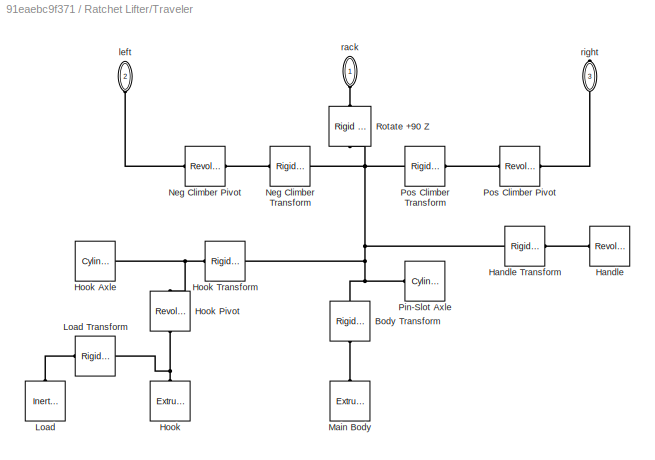
BLOCK [SubSystem] Ratchet Lifter/Traveler
  Ports = [0, 0, 0, 0, 0, 2, 1]
  RequestExecContextInheritance = off
BLOCK [Reference] Ratchet Lifter/Traveler Pin-Slot  REF=sm_lib/Joints/Pin Slot Joint
  Ports = [0, 0, 0, 0, 0, 2, 3]
  SourceBlock = sm_lib/Joints/Pin Slot Joint
  SourceProductName = Multibody
  SourceType = Pin Slot Joint
BLOCK [Reference] Ratchet Lifter/Traveler/Body Transform  REF=sm_lib/Frames and
Transforms/Rigid
Transform
  Ports = [0, 0, 0, 0, 0, 1, 1]
  SourceBlock = sm_lib/Frames and\nTransforms/Rigid\nTransform
  SourceProductName = Multibody
  SourceType = Rigid\nTransform
BLOCK [Reference] Ratchet Lifter/Traveler/Handle  REF=sm_lib/Body Elements/Revolved Solid
  Ports = [0, 0, 0, 0, 0, 0, 1]
  SourceBlock = sm_lib/Body Elements/Revolved Solid
  SourceProductName = Multibody
  SourceType = Revolved Solid
BLOCK [Reference] Ratchet Lifter/Traveler/Handle Transform  REF=sm_lib/Frames and
Transforms/Rigid
Transform
  Ports = [0, 0, 0, 0, 0, 1, 1]
  SourceBlock = sm_lib/Frames and\nTransforms/Rigid\nTransform
  SourceProductName = Multibody
  SourceType = Rigid\nTransform
BLOCK [Reference] Ratchet Lifter/Traveler/Hook  REF=sm_lib/Body Elements/Extruded Solid
  Ports = [0, 0, 0, 0, 0, 0, 1]
  SourceBlock = sm_lib/Body Elements/Extruded Solid
  SourceProductName = Multibody
  SourceType = Extruded Solid
BLOCK [Reference] Ratchet Lifter/Traveler/Hook Axle  REF=sm_lib/Body Elements/Cylindrical Solid
  Ports = [0, 0, 0, 0, 0, 0, 1]
  SourceBlock = sm_lib/Body Elements/Cylindrical Solid
  SourceProductName = Multibody
  SourceType = Cylindrical Solid
BLOCK [Reference] Ratchet Lifter/Traveler/Hook Pivot  REF=sm_lib/Joints/Revolute Joint
  NameLocation = left
  Ports = [0, 0, 0, 0, 0, 1, 1]
  SourceBlock = sm_lib/Joints/Revolute Joint
  SourceProductName = Multibody
  SourceType = Revolute Joint
BLOCK [Reference] Ratchet Lifter/Traveler/Hook Transform  REF=sm_lib/Frames and
Transforms/Rigid
Transform
  Ports = [0, 0, 0, 0, 0, 1, 1]
  SourceBlock = sm_lib/Frames and\nTransforms/Rigid\nTransform
  SourceProductName = Multibody
  SourceType = Rigid\nTransform
BLOCK [Reference] Ratchet Lifter/Traveler/Load  REF=sm_lib/Body Elements/Inertia
  Ports = [0, 0, 0, 0, 0, 0, 1]
  SourceBlock = sm_lib/Body Elements/Inertia
  SourceProductName = Multibody
  SourceType = Inertia
BLOCK [Reference] Ratchet Lifter/Traveler/Load Transform  REF=sm_lib/Frames and
Transforms/Rigid
Transform
  Ports = [0, 0, 0, 0, 0, 1, 1]
  SourceBlock = sm_lib/Frames and\nTransforms/Rigid\nTransform
  SourceProductName = Multibody
  SourceType = Rigid\nTransform
BLOCK [Reference] Ratchet Lifter/Traveler/Main Body  REF=sm_lib/Body Elements/Extruded Solid
  Ports = [0, 0, 0, 0, 0, 0, 1]
  SourceBlock = sm_lib/Body Elements/Extruded Solid
  SourceProductName = Multibody
  SourceType = Extruded Solid
BLOCK [Reference] Ratchet Lifter/Traveler/Neg Climber Pivot  REF=sm_lib/Joints/Revolute Joint
  Ports = [0, 0, 0, 0, 0, 1, 1]
  SourceBlock = sm_lib/Joints/Revolute Joint
  SourceProductName = Multibody
  SourceType = Revolute Joint
BLOCK [Reference] Ratchet Lifter/Traveler/Neg Climber Transform  REF=sm_lib/Frames and
Transforms/Rigid
Transform
  Ports = [0, 0, 0, 0, 0, 1, 1]
  SourceBlock = sm_lib/Frames and\nTransforms/Rigid\nTransform
  SourceProductName = Multibody
  SourceType = Rigid\nTransform
BLOCK [Reference] Ratchet Lifter/Traveler/Pin-Slot Axle  REF=sm_lib/Body Elements/Cylindrical Solid
  Ports = [0, 0, 0, 0, 0, 0, 1]
  SourceBlock = sm_lib/Body Elements/Cylindrical Solid
  SourceProductName = Multibody
  SourceType = Cylindrical Solid
BLOCK [Reference] Ratchet Lifter/Traveler/Pos Climber Pivot  REF=sm_lib/Joints/Revolute Joint
  Ports = [0, 0, 0, 0, 0, 1, 1]
  SourceBlock = sm_lib/Joints/Revolute Joint
  SourceProductName = Multibody
  SourceType = Revolute Joint
BLOCK [Reference] Ratchet Lifter/Traveler/Pos Climber Transform  REF=sm_lib/Frames and
Transforms/Rigid
Transform
  Ports = [0, 0, 0, 0, 0, 1, 1]
  SourceBlock = sm_lib/Frames and\nTransforms/Rigid\nTransform
  SourceProductName = Multibody
  SourceType = Rigid\nTransform
BLOCK [Reference] Ratchet Lifter/Traveler/Rotate +90 Z  REF=sm_lib/Frames and
Transforms/Rigid
Transform
  NameLocation = left
  Ports = [0, 0, 0, 0, 0, 1, 1]
  SourceBlock = sm_lib/Frames and\nTransforms/Rigid\nTransform
  SourceProductName = Multibody
  SourceType = Rigid\nTransform
BLOCK [PMIOPort] Ratchet Lifter/Traveler/left
  NameLocation = left
  Port = 2
  Side = Left
BLOCK [PMIOPort] Ratchet Lifter/Traveler/rack
  NameLocation = left
  Side = Left
BLOCK [PMIOPort] Ratchet Lifter/Traveler/right
  NameLocation = left
  Port = 3
  Side = Right
BLOCK [Scope] Scope
  Floating = off
  NumInputPorts = 2
  Ports = [2]
  ScopeSpecificationString = Simulink.scopes.TimeScopeBlockCfg('CurrentConfiguration', extmgr.ConfigurationSet(extmgr.Configuration('Core','General UI',true),extmgr.Configuration('Core','Source UI',true),extmgr.Configuration('Sources','WiredSimulink',true),extmgr.Configuration('Visuals','Time Domain',true,'SerializedDisplays',{struct('MinYLimReal','-1.09918','MaxYLimReal','40.0759','YLabelReal','','MinYLimMag','0.00000','MaxY...<+1947ch>
BLOCK [Reference] Solver Configuration  REF=nesl_utility/Solver
Configuration
  Ports = [0, 0, 0, 0, 0, 0, 1]
  SourceBlock = nesl_utility/Solver\nConfiguration
  SourceProductName = Utilities
  SourceType = Solver\nConfiguration
BLOCK [SubSystem] Traveler Motion Signal
  Ports = []
  RequestExecContextInheritance = off
BLOCK [Goto] Traveler Motion Signal/Goto
  GotoTag = q_z
  TagVisibility = global
BLOCK [Sin] Traveler Motion Signal/Traveler Angle Motion Signal
  Amplitude = init.motion_amplitude
  Frequency = init.motion_omega * pi/180
  Ports = [0, 1]
  SampleTime = 0
BLOCK [Reference] World Frame  REF=sm_lib/Frames and
Transforms/World Frame
  Ports = [0, 0, 0, 0, 0, 0, 1]
  SourceBlock = sm_lib/Frames and\nTransforms/World Frame
  SourceProductName = Multibody
  SourceType = World Frame
ANNOTATION (root): Ratchet Lifter
ANNOTATION (root): 1. Explore simulation results using sscexplore 2. Plot the position and velocity of the traveler in the vertical direction ( see code ) 3. Learn more about the Spatial Contact Force Block 4. Learn more about multibody modeling
LINE From1:1 -> Scope:2
LINE From:1 -> Scope:1
LINE Ratchet Lifter/From:1 -> Ratchet Lifter/Simulink-PS Converter:1
LINE Ratchet Lifter/PS-Simulink Converter1:1 -> Ratchet Lifter/Goto1:1
LINE Ratchet Lifter/PS-Simulink Converter:1 -> Ratchet Lifter/Goto:1
LINE Traveler Motion Signal/Traveler Angle Motion Signal:1 -> Traveler Motion Signal/Goto:1
PNET net1: Mechanism Configuration:RConn1 -- Ratchet Lifter:LConn1 -- Solver Configuration:RConn1 -- World Frame:RConn1
PLINE Ratchet Lifter/Contacts Left/Climber to HorizCyl/Simscape Bus1:LConn1 -- Ratchet Lifter/Contacts Left/Climber to HorizCyl/Spatial Contact Force13:LConn1
PLINE Ratchet Lifter/Contacts Left/Climber to HorizCyl/Simscape Bus1:LConn10 -- Ratchet Lifter/Contacts Left/Climber to HorizCyl/Spatial Contact Force16:LConn1
PLINE Ratchet Lifter/Contacts Left/Climber to HorizCyl/Simscape Bus1:LConn11 -- Ratchet Lifter/Contacts Left/Climber to HorizCyl/Spatial Contact Force18:LConn1
PLINE Ratchet Lifter/Contacts Left/Climber to HorizCyl/Simscape Bus1:LConn12 -- Ratchet Lifter/Contacts Left/Climber to HorizCyl/Spatial Contact Force8:LConn1
PLINE Ratchet Lifter/Contacts Left/Climber to HorizCyl/Simscape Bus1:LConn13 -- Ratchet Lifter/Contacts Left/Climber to HorizCyl/Spatial Contact Force6:LConn1
PLINE Ratchet Lifter/Contacts Left/Climber to HorizCyl/Simscape Bus1:LConn14 -- Ratchet Lifter/Contacts Left/Climber to HorizCyl/Spatial Contact Force4:LConn1
PLINE Ratchet Lifter/Contacts Left/Climber to HorizCyl/Simscape Bus1:LConn15 -- Ratchet Lifter/Contacts Left/Climber to HorizCyl/Spatial Contact Force20:LConn1
PLINE Ratchet Lifter/Contacts Left/Climber to HorizCyl/Simscape Bus1:LConn2 -- Ratchet Lifter/Contacts Left/Climber to HorizCyl/Spatial Contact Force1:LConn1
PLINE Ratchet Lifter/Contacts Left/Climber to HorizCyl/Simscape Bus1:LConn3 -- Ratchet Lifter/Contacts Left/Climber to HorizCyl/Spatial Contact Force2:LConn1
PLINE Ratchet Lifter/Contacts Left/Climber to HorizCyl/Simscape Bus1:LConn4 -- Ratchet Lifter/Contacts Left/Climber to HorizCyl/Spatial Contact Force3:LConn1
PLINE Ratchet Lifter/Contacts Left/Climber to HorizCyl/Simscape Bus1:LConn5 -- Ratchet Lifter/Contacts Left/Climber to HorizCyl/Spatial Contact Force5:LConn1
PLINE Ratchet Lifter/Contacts Left/Climber to HorizCyl/Simscape Bus1:LConn6 -- Ratchet Lifter/Contacts Left/Climber to HorizCyl/Spatial Contact Force7:LConn1
PLINE Ratchet Lifter/Contacts Left/Climber to HorizCyl/Simscape Bus1:LConn7 -- Ratchet Lifter/Contacts Left/Climber to HorizCyl/Spatial Contact Force9:LConn1
PLINE Ratchet Lifter/Contacts Left/Climber to HorizCyl/Simscape Bus1:LConn8 -- Ratchet Lifter/Contacts Left/Climber to HorizCyl/Spatial Contact Force11:LConn1
PLINE Ratchet Lifter/Contacts Left/Climber to HorizCyl/Simscape Bus1:LConn9 -- Ratchet Lifter/Contacts Left/Climber to HorizCyl/Spatial Contact Force14:LConn1
PLINE Ratchet Lifter/Contacts Left/Climber to HorizCyl/Simscape Bus1:RConn1 -- Ratchet Lifter/Contacts Left/Climber to HorizCyl/rack:RConn1
PNET net2: Ratchet Lifter/Contacts Left/Climber to HorizCyl/Spatial Contact Force11:RConn1 -- Ratchet Lifter/Contacts Left/Climber to HorizCyl/Spatial Contact Force13:RConn1 -- Ratchet Lifter/Contacts Left/Climber to HorizCyl/Spatial Contact Force14:RConn1 -- Ratchet Lifter/Contacts Left/Climber to HorizCyl/Spatial Contact Force16:RConn1 -- Ratchet Lifter/Contacts Left/Climber to HorizCyl/Spatial Contact Force18:RConn1 -- Ratchet Lifter/Contacts Left/Climber to HorizCyl/Spatial Contact Force1:RConn1 -- Ratchet Lifter/Contacts Left/Climber to HorizCyl/Spatial Contact Force20:RConn1 -- Ratchet Lifter/Contacts Left/Climber to HorizCyl/Spatial Contact Force2:RConn1 -- Ratchet Lifter/Contacts Left/Climber to HorizCyl/Spatial Contact Force3:RConn1 -- Ratchet Lifter/Contacts Left/Climber to HorizCyl/Spatial Contact Force4:RConn1 -- Ratchet Lifter/Contacts Left/Climber to HorizCyl/Spatial Contact Force5:RConn1 -- Ratchet Lifter/Contacts Left/Climber to HorizCyl/Spatial Contact Force6:RConn1 -- Ratchet Lifter/Contacts Left/Climber to HorizCyl/Spatial Contact Force7:RConn1 -- Ratchet Lifter/Contacts Left/Climber to HorizCyl/Spatial Contact Force8:RConn1 -- Ratchet Lifter/Contacts Left/Climber to HorizCyl/Spatial Contact Force9:RConn1 -- Ratchet Lifter/Contacts Left/Climber to HorizCyl/climber:RConn1
PLINE Ratchet Lifter/Contacts Left/Climber to HorizCyl:LConn1 -- Ratchet Lifter/Contacts Left/Simscape Bus:LConn2
PNET net3: Ratchet Lifter/Contacts Left/Climber to HorizCyl:RConn1 -- Ratchet Lifter/Contacts Left/Climber to SlantCyl:RConn1 -- Ratchet Lifter/Contacts Left/climber:RConn1
PLINE Ratchet Lifter/Contacts Left/Climber to SlantCyl/Simscape Bus1:LConn1 -- Ratchet Lifter/Contacts Left/Climber to SlantCyl/Spatial Contact Force13:LConn1
PLINE Ratchet Lifter/Contacts Left/Climber to SlantCyl/Simscape Bus1:LConn10 -- Ratchet Lifter/Contacts Left/Climber to SlantCyl/Spatial Contact Force16:LConn1
PLINE Ratchet Lifter/Contacts Left/Climber to SlantCyl/Simscape Bus1:LConn11 -- Ratchet Lifter/Contacts Left/Climber to SlantCyl/Spatial Contact Force18:LConn1
PLINE Ratchet Lifter/Contacts Left/Climber to SlantCyl/Simscape Bus1:LConn12 -- Ratchet Lifter/Contacts Left/Climber to SlantCyl/Spatial Contact Force8:LConn1
PLINE Ratchet Lifter/Contacts Left/Climber to SlantCyl/Simscape Bus1:LConn13 -- Ratchet Lifter/Contacts Left/Climber to SlantCyl/Spatial Contact Force6:LConn1
PLINE Ratchet Lifter/Contacts Left/Climber to SlantCyl/Simscape Bus1:LConn14 -- Ratchet Lifter/Contacts Left/Climber to SlantCyl/Spatial Contact Force4:LConn1
PLINE Ratchet Lifter/Contacts Left/Climber to SlantCyl/Simscape Bus1:LConn15 -- Ratchet Lifter/Contacts Left/Climber to SlantCyl/Spatial Contact Force20:LConn1
PLINE Ratchet Lifter/Contacts Left/Climber to SlantCyl/Simscape Bus1:LConn2 -- Ratchet Lifter/Contacts Left/Climber to SlantCyl/Spatial Contact Force1:LConn1
PLINE Ratchet Lifter/Contacts Left/Climber to SlantCyl/Simscape Bus1:LConn3 -- Ratchet Lifter/Contacts Left/Climber to SlantCyl/Spatial Contact Force2:LConn1
PLINE Ratchet Lifter/Contacts Left/Climber to SlantCyl/Simscape Bus1:LConn4 -- Ratchet Lifter/Contacts Left/Climber to SlantCyl/Spatial Contact Force3:LConn1
PLINE Ratchet Lifter/Contacts Left/Climber to SlantCyl/Simscape Bus1:LConn5 -- Ratchet Lifter/Contacts Left/Climber to SlantCyl/Spatial Contact Force5:LConn1
PLINE Ratchet Lifter/Contacts Left/Climber to SlantCyl/Simscape Bus1:LConn6 -- Ratchet Lifter/Contacts Left/Climber to SlantCyl/Spatial Contact Force7:LConn1
PLINE Ratchet Lifter/Contacts Left/Climber to SlantCyl/Simscape Bus1:LConn7 -- Ratchet Lifter/Contacts Left/Climber to SlantCyl/Spatial Contact Force9:LConn1
PLINE Ratchet Lifter/Contacts Left/Climber to SlantCyl/Simscape Bus1:LConn8 -- Ratchet Lifter/Contacts Left/Climber to SlantCyl/Spatial Contact Force11:LConn1
PLINE Ratchet Lifter/Contacts Left/Climber to SlantCyl/Simscape Bus1:LConn9 -- Ratchet Lifter/Contacts Left/Climber to SlantCyl/Spatial Contact Force14:LConn1
PLINE Ratchet Lifter/Contacts Left/Climber to SlantCyl/Simscape Bus1:RConn1 -- Ratchet Lifter/Contacts Left/Climber to SlantCyl/rack:RConn1
PNET net4: Ratchet Lifter/Contacts Left/Climber to SlantCyl/Spatial Contact Force11:RConn1 -- Ratchet Lifter/Contacts Left/Climber to SlantCyl/Spatial Contact Force13:RConn1 -- Ratchet Lifter/Contacts Left/Climber to SlantCyl/Spatial Contact Force14:RConn1 -- Ratchet Lifter/Contacts Left/Climber to SlantCyl/Spatial Contact Force16:RConn1 -- Ratchet Lifter/Contacts Left/Climber to SlantCyl/Spatial Contact Force18:RConn1 -- Ratchet Lifter/Contacts Left/Climber to SlantCyl/Spatial Contact Force1:RConn1 -- Ratchet Lifter/Contacts Left/Climber to SlantCyl/Spatial Contact Force20:RConn1 -- Ratchet Lifter/Contacts Left/Climber to SlantCyl/Spatial Contact Force2:RConn1 -- Ratchet Lifter/Contacts Left/Climber to SlantCyl/Spatial Contact Force3:RConn1 -- Ratchet Lifter/Contacts Left/Climber to SlantCyl/Spatial Contact Force4:RConn1 -- Ratchet Lifter/Contacts Left/Climber to SlantCyl/Spatial Contact Force5:RConn1 -- Ratchet Lifter/Contacts Left/Climber to SlantCyl/Spatial Contact Force6:RConn1 -- Ratchet Lifter/Contacts Left/Climber to SlantCyl/Spatial Contact Force7:RConn1 -- Ratchet Lifter/Contacts Left/Climber to SlantCyl/Spatial Contact Force8:RConn1 -- Ratchet Lifter/Contacts Left/Climber to SlantCyl/Spatial Contact Force9:RConn1 -- Ratchet Lifter/Contacts Left/Climber to SlantCyl/climber:RConn1
PLINE Ratchet Lifter/Contacts Left/Climber to SlantCyl:LConn1 -- Ratchet Lifter/Contacts Left/Simscape Bus:LConn1
PLINE Ratchet Lifter/Contacts Left/Simscape Bus:RConn1 -- Ratchet Lifter/Contacts Left/rack:RConn1
PLINE Ratchet Lifter/Contacts Left:LConn1 -- Ratchet Lifter/Toothed Rack:LConn1
PLINE Ratchet Lifter/Contacts Left:RConn1 -- Ratchet Lifter/Left Climber:RConn1
PLINE Ratchet Lifter/Contacts Right/Climber to HorizCyl/Simscape Bus1:LConn1 -- Ratchet Lifter/Contacts Right/Climber to HorizCyl/Spatial Contact Force13:LConn1
PLINE Ratchet Lifter/Contacts Right/Climber to HorizCyl/Simscape Bus1:LConn10 -- Ratchet Lifter/Contacts Right/Climber to HorizCyl/Spatial Contact Force16:LConn1
PLINE Ratchet Lifter/Contacts Right/Climber to HorizCyl/Simscape Bus1:LConn11 -- Ratchet Lifter/Contacts Right/Climber to HorizCyl/Spatial Contact Force18:LConn1
PLINE Ratchet Lifter/Contacts Right/Climber to HorizCyl/Simscape Bus1:LConn12 -- Ratchet Lifter/Contacts Right/Climber to HorizCyl/Spatial Contact Force8:LConn1
PLINE Ratchet Lifter/Contacts Right/Climber to HorizCyl/Simscape Bus1:LConn13 -- Ratchet Lifter/Contacts Right/Climber to HorizCyl/Spatial Contact Force6:LConn1
PLINE Ratchet Lifter/Contacts Right/Climber to HorizCyl/Simscape Bus1:LConn14 -- Ratchet Lifter/Contacts Right/Climber to HorizCyl/Spatial Contact Force4:LConn1
PLINE Ratchet Lifter/Contacts Right/Climber to HorizCyl/Simscape Bus1:LConn15 -- Ratchet Lifter/Contacts Right/Climber to HorizCyl/Spatial Contact Force20:LConn1
PLINE Ratchet Lifter/Contacts Right/Climber to HorizCyl/Simscape Bus1:LConn2 -- Ratchet Lifter/Contacts Right/Climber to HorizCyl/Spatial Contact Force1:LConn1
PLINE Ratchet Lifter/Contacts Right/Climber to HorizCyl/Simscape Bus1:LConn3 -- Ratchet Lifter/Contacts Right/Climber to HorizCyl/Spatial Contact Force2:LConn1
PLINE Ratchet Lifter/Contacts Right/Climber to HorizCyl/Simscape Bus1:LConn4 -- Ratchet Lifter/Contacts Right/Climber to HorizCyl/Spatial Contact Force3:LConn1
PLINE Ratchet Lifter/Contacts Right/Climber to HorizCyl/Simscape Bus1:LConn5 -- Ratchet Lifter/Contacts Right/Climber to HorizCyl/Spatial Contact Force5:LConn1
PLINE Ratchet Lifter/Contacts Right/Climber to HorizCyl/Simscape Bus1:LConn6 -- Ratchet Lifter/Contacts Right/Climber to HorizCyl/Spatial Contact Force7:LConn1
PLINE Ratchet Lifter/Contacts Right/Climber to HorizCyl/Simscape Bus1:LConn7 -- Ratchet Lifter/Contacts Right/Climber to HorizCyl/Spatial Contact Force9:LConn1
PLINE Ratchet Lifter/Contacts Right/Climber to HorizCyl/Simscape Bus1:LConn8 -- Ratchet Lifter/Contacts Right/Climber to HorizCyl/Spatial Contact Force11:LConn1
PLINE Ratchet Lifter/Contacts Right/Climber to HorizCyl/Simscape Bus1:LConn9 -- Ratchet Lifter/Contacts Right/Climber to HorizCyl/Spatial Contact Force14:LConn1
PLINE Ratchet Lifter/Contacts Right/Climber to HorizCyl/Simscape Bus1:RConn1 -- Ratchet Lifter/Contacts Right/Climber to HorizCyl/rack:RConn1
PNET net5: Ratchet Lifter/Contacts Right/Climber to HorizCyl/Spatial Contact Force11:RConn1 -- Ratchet Lifter/Contacts Right/Climber to HorizCyl/Spatial Contact Force13:RConn1 -- Ratchet Lifter/Contacts Right/Climber to HorizCyl/Spatial Contact Force14:RConn1 -- Ratchet Lifter/Contacts Right/Climber to HorizCyl/Spatial Contact Force16:RConn1 -- Ratchet Lifter/Contacts Right/Climber to HorizCyl/Spatial Contact Force18:RConn1 -- Ratchet Lifter/Contacts Right/Climber to HorizCyl/Spatial Contact Force1:RConn1 -- Ratchet Lifter/Contacts Right/Climber to HorizCyl/Spatial Contact Force20:RConn1 -- Ratchet Lifter/Contacts Right/Climber to HorizCyl/Spatial Contact Force2:RConn1 -- Ratchet Lifter/Contacts Right/Climber to HorizCyl/Spatial Contact Force3:RConn1 -- Ratchet Lifter/Contacts Right/Climber to HorizCyl/Spatial Contact Force4:RConn1 -- Ratchet Lifter/Contacts Right/Climber to HorizCyl/Spatial Contact Force5:RConn1 -- Ratchet Lifter/Contacts Right/Climber to HorizCyl/Spatial Contact Force6:RConn1 -- Ratchet Lifter/Contacts Right/Climber to HorizCyl/Spatial Contact Force7:RConn1 -- Ratchet Lifter/Contacts Right/Climber to HorizCyl/Spatial Contact Force8:RConn1 -- Ratchet Lifter/Contacts Right/Climber to HorizCyl/Spatial Contact Force9:RConn1 -- Ratchet Lifter/Contacts Right/Climber to HorizCyl/climber:RConn1
PLINE Ratchet Lifter/Contacts Right/Climber to HorizCyl:LConn1 -- Ratchet Lifter/Contacts Right/Simscape Bus:LConn2
PNET net6: Ratchet Lifter/Contacts Right/Climber to HorizCyl:RConn1 -- Ratchet Lifter/Contacts Right/Climber to SlantCyl:RConn1 -- Ratchet Lifter/Contacts Right/climber:RConn1
PLINE Ratchet Lifter/Contacts Right/Climber to SlantCyl/Simscape Bus1:LConn1 -- Ratchet Lifter/Contacts Right/Climber to SlantCyl/Spatial Contact Force13:LConn1
PLINE Ratchet Lifter/Contacts Right/Climber to SlantCyl/Simscape Bus1:LConn10 -- Ratchet Lifter/Contacts Right/Climber to SlantCyl/Spatial Contact Force16:LConn1
PLINE Ratchet Lifter/Contacts Right/Climber to SlantCyl/Simscape Bus1:LConn11 -- Ratchet Lifter/Contacts Right/Climber to SlantCyl/Spatial Contact Force18:LConn1
PLINE Ratchet Lifter/Contacts Right/Climber to SlantCyl/Simscape Bus1:LConn12 -- Ratchet Lifter/Contacts Right/Climber to SlantCyl/Spatial Contact Force8:LConn1
PLINE Ratchet Lifter/Contacts Right/Climber to SlantCyl/Simscape Bus1:LConn13 -- Ratchet Lifter/Contacts Right/Climber to SlantCyl/Spatial Contact Force6:LConn1
PLINE Ratchet Lifter/Contacts Right/Climber to SlantCyl/Simscape Bus1:LConn14 -- Ratchet Lifter/Contacts Right/Climber to SlantCyl/Spatial Contact Force4:LConn1
PLINE Ratchet Lifter/Contacts Right/Climber to SlantCyl/Simscape Bus1:LConn15 -- Ratchet Lifter/Contacts Right/Climber to SlantCyl/Spatial Contact Force20:LConn1
PLINE Ratchet Lifter/Contacts Right/Climber to SlantCyl/Simscape Bus1:LConn2 -- Ratchet Lifter/Contacts Right/Climber to SlantCyl/Spatial Contact Force1:LConn1
PLINE Ratchet Lifter/Contacts Right/Climber to SlantCyl/Simscape Bus1:LConn3 -- Ratchet Lifter/Contacts Right/Climber to SlantCyl/Spatial Contact Force2:LConn1
PLINE Ratchet Lifter/Contacts Right/Climber to SlantCyl/Simscape Bus1:LConn4 -- Ratchet Lifter/Contacts Right/Climber to SlantCyl/Spatial Contact Force3:LConn1
PLINE Ratchet Lifter/Contacts Right/Climber to SlantCyl/Simscape Bus1:LConn5 -- Ratchet Lifter/Contacts Right/Climber to SlantCyl/Spatial Contact Force5:LConn1
PLINE Ratchet Lifter/Contacts Right/Climber to SlantCyl/Simscape Bus1:LConn6 -- Ratchet Lifter/Contacts Right/Climber to SlantCyl/Spatial Contact Force7:LConn1
PLINE Ratchet Lifter/Contacts Right/Climber to SlantCyl/Simscape Bus1:LConn7 -- Ratchet Lifter/Contacts Right/Climber to SlantCyl/Spatial Contact Force9:LConn1
PLINE Ratchet Lifter/Contacts Right/Climber to SlantCyl/Simscape Bus1:LConn8 -- Ratchet Lifter/Contacts Right/Climber to SlantCyl/Spatial Contact Force11:LConn1
PLINE Ratchet Lifter/Contacts Right/Climber to SlantCyl/Simscape Bus1:LConn9 -- Ratchet Lifter/Contacts Right/Climber to SlantCyl/Spatial Contact Force14:LConn1
PLINE Ratchet Lifter/Contacts Right/Climber to SlantCyl/Simscape Bus1:RConn1 -- Ratchet Lifter/Contacts Right/Climber to SlantCyl/rack:RConn1
PNET net7: Ratchet Lifter/Contacts Right/Climber to SlantCyl/Spatial Contact Force11:RConn1 -- Ratchet Lifter/Contacts Right/Climber to SlantCyl/Spatial Contact Force13:RConn1 -- Ratchet Lifter/Contacts Right/Climber to SlantCyl/Spatial Contact Force14:RConn1 -- Ratchet Lifter/Contacts Right/Climber to SlantCyl/Spatial Contact Force16:RConn1 -- Ratchet Lifter/Contacts Right/Climber to SlantCyl/Spatial Contact Force18:RConn1 -- Ratchet Lifter/Contacts Right/Climber to SlantCyl/Spatial Contact Force1:RConn1 -- Ratchet Lifter/Contacts Right/Climber to SlantCyl/Spatial Contact Force20:RConn1 -- Ratchet Lifter/Contacts Right/Climber to SlantCyl/Spatial Contact Force2:RConn1 -- Ratchet Lifter/Contacts Right/Climber to SlantCyl/Spatial Contact Force3:RConn1 -- Ratchet Lifter/Contacts Right/Climber to SlantCyl/Spatial Contact Force4:RConn1 -- Ratchet Lifter/Contacts Right/Climber to SlantCyl/Spatial Contact Force5:RConn1 -- Ratchet Lifter/Contacts Right/Climber to SlantCyl/Spatial Contact Force6:RConn1 -- Ratchet Lifter/Contacts Right/Climber to SlantCyl/Spatial Contact Force7:RConn1 -- Ratchet Lifter/Contacts Right/Climber to SlantCyl/Spatial Contact Force8:RConn1 -- Ratchet Lifter/Contacts Right/Climber to SlantCyl/Spatial Contact Force9:RConn1 -- Ratchet Lifter/Contacts Right/Climber to SlantCyl/climber:RConn1
PLINE Ratchet Lifter/Contacts Right/Climber to SlantCyl:LConn1 -- Ratchet Lifter/Contacts Right/Simscape Bus:LConn1
PLINE Ratchet Lifter/Contacts Right/Simscape Bus:RConn1 -- Ratchet Lifter/Contacts Right/rack:RConn1
PLINE Ratchet Lifter/Contacts Right:LConn1 -- Ratchet Lifter/Toothed Rack:RConn1
PLINE Ratchet Lifter/Contacts Right:RConn1 -- Ratchet Lifter/Right Climber:RConn1
PLINE Ratchet Lifter/Left Climber/Neg Face:RConn1 -- Ratchet Lifter/Left Climber/Rigid Transform:RConn1
PLINE Ratchet Lifter/Left Climber/Pos Face:RConn1 -- Ratchet Lifter/Left Climber/Rigid Transform1:RConn1
PNET net8: Ratchet Lifter/Left Climber/Rigid Transform1:LConn1 -- Ratchet Lifter/Left Climber/Rigid Transform2:LConn1 -- Ratchet Lifter/Left Climber/Rigid Transform3:LConn1 -- Ratchet Lifter/Left Climber/Rigid Transform:LConn1
PNET net9: Ratchet Lifter/Left Climber/Rigid Transform2:RConn1 -- Ratchet Lifter/Left Climber/Rocker Pin:RConn1 -- Ratchet Lifter/Left Climber/traveler:RConn1
PNET net10: Ratchet Lifter/Left Climber/Rigid Transform3:RConn1 -- Ratchet Lifter/Left Climber/Shaft Pin:RConn1 -- Ratchet Lifter/Left Climber/Sphere:RConn1 -- Ratchet Lifter/Left Climber/spring:RConn1
PLINE Ratchet Lifter/Left Climber/Sphere:LConn1 -- Ratchet Lifter/Left Climber/climber:RConn1
PLINE Ratchet Lifter/Left Climber:LConn1 -- Ratchet Lifter/Traveler:LConn2
PLINE Ratchet Lifter/Left Climber:LConn2 -- Ratchet Lifter/Spring:LConn1
PLINE Ratchet Lifter/PS-Simulink Converter1:LConn1 -- Ratchet Lifter/Traveler Pin-Slot:RConn3
PLINE Ratchet Lifter/PS-Simulink Converter:LConn1 -- Ratchet Lifter/Traveler Pin-Slot:RConn2
PLINE Ratchet Lifter/R:RConn1 -- Ratchet Lifter/Toothed Rack:LConn2
PLINE Ratchet Lifter/Right Climber/Neg Face:RConn1 -- Ratchet Lifter/Right Climber/Rigid Transform:RConn1
PLINE Ratchet Lifter/Right Climber/Pos Face:RConn1 -- Ratchet Lifter/Right Climber/Rigid Transform1:RConn1
PNET net11: Ratchet Lifter/Right Climber/Rigid Transform1:LConn1 -- Ratchet Lifter/Right Climber/Rigid Transform2:LConn1 -- Ratchet Lifter/Right Climber/Rigid Transform3:LConn1 -- Ratchet Lifter/Right Climber/Rigid Transform:LConn1
PNET net12: Ratchet Lifter/Right Climber/Rigid Transform2:RConn1 -- Ratchet Lifter/Right Climber/Rocker Pin:RConn1 -- Ratchet Lifter/Right Climber/traveler:RConn1
PNET net13: Ratchet Lifter/Right Climber/Rigid Transform3:RConn1 -- Ratchet Lifter/Right Climber/Shaft Pin:RConn1 -- Ratchet Lifter/Right Climber/Sphere:RConn1 -- Ratchet Lifter/Right Climber/spring:RConn1
PLINE Ratchet Lifter/Right Climber/Sphere:LConn1 -- Ratchet Lifter/Right Climber/climber:RConn1
PLINE Ratchet Lifter/Right Climber:LConn1 -- Ratchet Lifter/Traveler:RConn1
PLINE Ratchet Lifter/Right Climber:LConn2 -- Ratchet Lifter/Spring:RConn1
PLINE Ratchet Lifter/Simulink-PS Converter:RConn1 -- Ratchet Lifter/Traveler Pin-Slot:LConn2
PNET net14: Ratchet Lifter/Toothed Rack/Base Transform:LConn1 -- Ratchet Lifter/Toothed Rack/R:RConn1 -- Ratchet Lifter/Toothed Rack/Rotate Y 180:RConn1 -- Ratchet Lifter/Toothed Rack/Toothed Body:RConn1 -- Ratchet Lifter/Toothed Rack/Traveler Transform:LConn1 -- Ratchet Lifter/Toothed Rack/right Horiz Cylinders:LConn1 -- Ratchet Lifter/Toothed Rack/right Slant Cylinders:LConn1
PLINE Ratchet Lifter/Toothed Rack/Base Transform:RConn1 -- Ratchet Lifter/Toothed Rack/Base:RConn1
PNET net15: Ratchet Lifter/Toothed Rack/Rotate Y 180:LConn1 -- Ratchet Lifter/Toothed Rack/left Horiz Cylinders:LConn1 -- Ratchet Lifter/Toothed Rack/left Slant Cylinders:LConn1
PLINE Ratchet Lifter/Toothed Rack/Simscape Bus1:LConn1 -- Ratchet Lifter/Toothed Rack/right Slant Cylinders:RConn1
PLINE Ratchet Lifter/Toothed Rack/Simscape Bus1:LConn2 -- Ratchet Lifter/Toothed Rack/right Horiz Cylinders:RConn1
PLINE Ratchet Lifter/Toothed Rack/Simscape Bus1:RConn1 -- Ratchet Lifter/Toothed Rack/right:RConn1
PLINE Ratchet Lifter/Toothed Rack/Simscape Bus:LConn1 -- Ratchet Lifter/Toothed Rack/left Slant Cylinders:RConn1
PLINE Ratchet Lifter/Toothed Rack/Simscape Bus:LConn2 -- Ratchet Lifter/Toothed Rack/left Horiz Cylinders:RConn1
PLINE Ratchet Lifter/Toothed Rack/Simscape Bus:RConn1 -- Ratchet Lifter/Toothed Rack/left:RConn1
PLINE Ratchet Lifter/Toothed Rack/Traveler Transform:RConn1 -- Ratchet Lifter/Toothed Rack/traveler:RConn1
PLINE Ratchet Lifter/Toothed Rack/left Horiz Cylinders/Simscape Bus:LConn1 -- Ratchet Lifter/Toothed Rack/left Horiz Cylinders/Tooth Cyl 15:RConn2
PLINE Ratchet Lifter/Toothed Rack/left Horiz Cylinders/Simscape Bus:LConn10 -- Ratchet Lifter/Toothed Rack/left Horiz Cylinders/Tooth Cyl 6:RConn2
PLINE Ratchet Lifter/Toothed Rack/left Horiz Cylinders/Simscape Bus:LConn11 -- Ratchet Lifter/Toothed Rack/left Horiz Cylinders/Tooth Cyl 5:RConn2
PLINE Ratchet Lifter/Toothed Rack/left Horiz Cylinders/Simscape Bus:LConn12 -- Ratchet Lifter/Toothed Rack/left Horiz Cylinders/Tooth Cyl 4:RConn2
PLINE Ratchet Lifter/Toothed Rack/left Horiz Cylinders/Simscape Bus:LConn13 -- Ratchet Lifter/Toothed Rack/left Horiz Cylinders/Tooth Cyl 3:RConn2
PLINE Ratchet Lifter/Toothed Rack/left Horiz Cylinders/Simscape Bus:LConn14 -- Ratchet Lifter/Toothed Rack/left Horiz Cylinders/Tooth Cyl 2:RConn2
PLINE Ratchet Lifter/Toothed Rack/left Horiz Cylinders/Simscape Bus:LConn15 -- Ratchet Lifter/Toothed Rack/left Horiz Cylinders/Tooth Cyl 1:RConn2
PLINE Ratchet Lifter/Toothed Rack/left Horiz Cylinders/Simscape Bus:LConn2 -- Ratchet Lifter/Toothed Rack/left Horiz Cylinders/Tooth Cyl 14:RConn2
PLINE Ratchet Lifter/Toothed Rack/left Horiz Cylinders/Simscape Bus:LConn3 -- Ratchet Lifter/Toothed Rack/left Horiz Cylinders/Tooth Cyl 13:RConn2
PLINE Ratchet Lifter/Toothed Rack/left Horiz Cylinders/Simscape Bus:LConn4 -- Ratchet Lifter/Toothed Rack/left Horiz Cylinders/Tooth Cyl 12:RConn2
PLINE Ratchet Lifter/Toothed Rack/left Horiz Cylinders/Simscape Bus:LConn5 -- Ratchet Lifter/Toothed Rack/left Horiz Cylinders/Tooth Cyl 11:RConn2
PLINE Ratchet Lifter/Toothed Rack/left Horiz Cylinders/Simscape Bus:LConn6 -- Ratchet Lifter/Toothed Rack/left Horiz Cylinders/Tooth Cyl 10:RConn2
PLINE Ratchet Lifter/Toothed Rack/left Horiz Cylinders/Simscape Bus:LConn7 -- Ratchet Lifter/Toothed Rack/left Horiz Cylinders/Tooth Cyl 9:RConn2
PLINE Ratchet Lifter/Toothed Rack/left Horiz Cylinders/Simscape Bus:LConn8 -- Ratchet Lifter/Toothed Rack/left Horiz Cylinders/Tooth Cyl 8:RConn2
PLINE Ratchet Lifter/Toothed Rack/left Horiz Cylinders/Simscape Bus:LConn9 -- Ratchet Lifter/Toothed Rack/left Horiz Cylinders/Tooth Cyl 7:RConn2
PLINE Ratchet Lifter/Toothed Rack/left Horiz Cylinders/Simscape Bus:RConn1 -- Ratchet Lifter/Toothed Rack/left Horiz Cylinders/geom:RConn1
PLINE Ratchet Lifter/Toothed Rack/left Horiz Cylinders/Tooth Cyl 1/Cylindrical Solid1:LConn1 -- Ratchet Lifter/Toothed Rack/left Horiz Cylinders/Tooth Cyl 1/G:RConn1
PLINE Ratchet Lifter/Toothed Rack/left Horiz Cylinders/Tooth Cyl 1/Cylindrical Solid1:RConn1 -- Ratchet Lifter/Toothed Rack/left Horiz Cylinders/Tooth Cyl 1/Rigid Transform1:RConn1
PLINE Ratchet Lifter/Toothed Rack/left Horiz Cylinders/Tooth Cyl 1/Rigid Transform1:LConn1 -- Ratchet Lifter/Toothed Rack/left Horiz Cylinders/Tooth Cyl 1/rack:RConn1
PLINE Ratchet Lifter/Toothed Rack/left Horiz Cylinders/Tooth Cyl 10/Cylindrical Solid1:LConn1 -- Ratchet Lifter/Toothed Rack/left Horiz Cylinders/Tooth Cyl 10/G:RConn1
PLINE Ratchet Lifter/Toothed Rack/left Horiz Cylinders/Tooth Cyl 10/Cylindrical Solid1:RConn1 -- Ratchet Lifter/Toothed Rack/left Horiz Cylinders/Tooth Cyl 10/Rigid Transform1:RConn1
PLINE Ratchet Lifter/Toothed Rack/left Horiz Cylinders/Tooth Cyl 10/Rigid Transform1:LConn1 -- Ratchet Lifter/Toothed Rack/left Horiz Cylinders/Tooth Cyl 10/rack:RConn1
PNET net16: Ratchet Lifter/Toothed Rack/left Horiz Cylinders/Tooth Cyl 10:RConn1 -- Ratchet Lifter/Toothed Rack/left Horiz Cylinders/Tooth Cyl 11:RConn1 -- Ratchet Lifter/Toothed Rack/left Horiz Cylinders/Tooth Cyl 12:RConn1 -- Ratchet Lifter/Toothed Rack/left Horiz Cylinders/Tooth Cyl 13:RConn1 -- Ratchet Lifter/Toothed Rack/left Horiz Cylinders/Tooth Cyl 14:RConn1 -- Ratchet Lifter/Toothed Rack/left Horiz Cylinders/Tooth Cyl 15:RConn1 -- Ratchet Lifter/Toothed Rack/left Horiz Cylinders/Tooth Cyl 1:RConn1 -- Ratchet Lifter/Toothed Rack/left Horiz Cylinders/Tooth Cyl 2:RConn1 -- Ratchet Lifter/Toothed Rack/left Horiz Cylinders/Tooth Cyl 3:RConn1 -- Ratchet Lifter/Toothed Rack/left Horiz Cylinders/Tooth Cyl 4:RConn1 -- Ratchet Lifter/Toothed Rack/left Horiz Cylinders/Tooth Cyl 5:RConn1 -- Ratchet Lifter/Toothed Rack/left Horiz Cylinders/Tooth Cyl 6:RConn1 -- Ratchet Lifter/Toothed Rack/left Horiz Cylinders/Tooth Cyl 7:RConn1 -- Ratchet Lifter/Toothed Rack/left Horiz Cylinders/Tooth Cyl 8:RConn1 -- Ratchet Lifter/Toothed Rack/left Horiz Cylinders/Tooth Cyl 9:RConn1 -- Ratchet Lifter/Toothed Rack/left Horiz Cylinders/rack:RConn1
PLINE Ratchet Lifter/Toothed Rack/left Horiz Cylinders/Tooth Cyl 11/Cylindrical Solid1:LConn1 -- Ratchet Lifter/Toothed Rack/left Horiz Cylinders/Tooth Cyl 11/G:RConn1
PLINE Ratchet Lifter/Toothed Rack/left Horiz Cylinders/Tooth Cyl 11/Cylindrical Solid1:RConn1 -- Ratchet Lifter/Toothed Rack/left Horiz Cylinders/Tooth Cyl 11/Rigid Transform1:RConn1
PLINE Ratchet Lifter/Toothed Rack/left Horiz Cylinders/Tooth Cyl 11/Rigid Transform1:LConn1 -- Ratchet Lifter/Toothed Rack/left Horiz Cylinders/Tooth Cyl 11/rack:RConn1
PLINE Ratchet Lifter/Toothed Rack/left Horiz Cylinders/Tooth Cyl 12/Cylindrical Solid1:LConn1 -- Ratchet Lifter/Toothed Rack/left Horiz Cylinders/Tooth Cyl 12/G:RConn1
PLINE Ratchet Lifter/Toothed Rack/left Horiz Cylinders/Tooth Cyl 12/Cylindrical Solid1:RConn1 -- Ratchet Lifter/Toothed Rack/left Horiz Cylinders/Tooth Cyl 12/Rigid Transform1:RConn1
PLINE Ratchet Lifter/Toothed Rack/left Horiz Cylinders/Tooth Cyl 12/Rigid Transform1:LConn1 -- Ratchet Lifter/Toothed Rack/left Horiz Cylinders/Tooth Cyl 12/rack:RConn1
PLINE Ratchet Lifter/Toothed Rack/left Horiz Cylinders/Tooth Cyl 13/Cylindrical Solid1:LConn1 -- Ratchet Lifter/Toothed Rack/left Horiz Cylinders/Tooth Cyl 13/G:RConn1
PLINE Ratchet Lifter/Toothed Rack/left Horiz Cylinders/Tooth Cyl 13/Cylindrical Solid1:RConn1 -- Ratchet Lifter/Toothed Rack/left Horiz Cylinders/Tooth Cyl 13/Rigid Transform1:RConn1
PLINE Ratchet Lifter/Toothed Rack/left Horiz Cylinders/Tooth Cyl 13/Rigid Transform1:LConn1 -- Ratchet Lifter/Toothed Rack/left Horiz Cylinders/Tooth Cyl 13/rack:RConn1
PLINE Ratchet Lifter/Toothed Rack/left Horiz Cylinders/Tooth Cyl 14/Cylindrical Solid1:LConn1 -- Ratchet Lifter/Toothed Rack/left Horiz Cylinders/Tooth Cyl 14/G:RConn1
PLINE Ratchet Lifter/Toothed Rack/left Horiz Cylinders/Tooth Cyl 14/Cylindrical Solid1:RConn1 -- Ratchet Lifter/Toothed Rack/left Horiz Cylinders/Tooth Cyl 14/Rigid Transform1:RConn1
PLINE Ratchet Lifter/Toothed Rack/left Horiz Cylinders/Tooth Cyl 14/Rigid Transform1:LConn1 -- Ratchet Lifter/Toothed Rack/left Horiz Cylinders/Tooth Cyl 14/rack:RConn1
PLINE Ratchet Lifter/Toothed Rack/left Horiz Cylinders/Tooth Cyl 15/Cylindrical Solid1:LConn1 -- Ratchet Lifter/Toothed Rack/left Horiz Cylinders/Tooth Cyl 15/G:RConn1
PLINE Ratchet Lifter/Toothed Rack/left Horiz Cylinders/Tooth Cyl 15/Cylindrical Solid1:RConn1 -- Ratchet Lifter/Toothed Rack/left Horiz Cylinders/Tooth Cyl 15/Rigid Transform1:RConn1
PLINE Ratchet Lifter/Toothed Rack/left Horiz Cylinders/Tooth Cyl 15/Rigid Transform1:LConn1 -- Ratchet Lifter/Toothed Rack/left Horiz Cylinders/Tooth Cyl 15/rack:RConn1
PLINE Ratchet Lifter/Toothed Rack/left Horiz Cylinders/Tooth Cyl 2/Cylindrical Solid1:LConn1 -- Ratchet Lifter/Toothed Rack/left Horiz Cylinders/Tooth Cyl 2/G:RConn1
PLINE Ratchet Lifter/Toothed Rack/left Horiz Cylinders/Tooth Cyl 2/Cylindrical Solid1:RConn1 -- Ratchet Lifter/Toothed Rack/left Horiz Cylinders/Tooth Cyl 2/Rigid Transform1:RConn1
PLINE Ratchet Lifter/Toothed Rack/left Horiz Cylinders/Tooth Cyl 2/Rigid Transform1:LConn1 -- Ratchet Lifter/Toothed Rack/left Horiz Cylinders/Tooth Cyl 2/rack:RConn1
PLINE Ratchet Lifter/Toothed Rack/left Horiz Cylinders/Tooth Cyl 3/Cylindrical Solid1:LConn1 -- Ratchet Lifter/Toothed Rack/left Horiz Cylinders/Tooth Cyl 3/G:RConn1
PLINE Ratchet Lifter/Toothed Rack/left Horiz Cylinders/Tooth Cyl 3/Cylindrical Solid1:RConn1 -- Ratchet Lifter/Toothed Rack/left Horiz Cylinders/Tooth Cyl 3/Rigid Transform1:RConn1
PLINE Ratchet Lifter/Toothed Rack/left Horiz Cylinders/Tooth Cyl 3/Rigid Transform1:LConn1 -- Ratchet Lifter/Toothed Rack/left Horiz Cylinders/Tooth Cyl 3/rack:RConn1
PLINE Ratchet Lifter/Toothed Rack/left Horiz Cylinders/Tooth Cyl 4/Cylindrical Solid1:LConn1 -- Ratchet Lifter/Toothed Rack/left Horiz Cylinders/Tooth Cyl 4/G:RConn1
PLINE Ratchet Lifter/Toothed Rack/left Horiz Cylinders/Tooth Cyl 4/Cylindrical Solid1:RConn1 -- Ratchet Lifter/Toothed Rack/left Horiz Cylinders/Tooth Cyl 4/Rigid Transform1:RConn1
PLINE Ratchet Lifter/Toothed Rack/left Horiz Cylinders/Tooth Cyl 4/Rigid Transform1:LConn1 -- Ratchet Lifter/Toothed Rack/left Horiz Cylinders/Tooth Cyl 4/rack:RConn1
PLINE Ratchet Lifter/Toothed Rack/left Horiz Cylinders/Tooth Cyl 5/Cylindrical Solid1:LConn1 -- Ratchet Lifter/Toothed Rack/left Horiz Cylinders/Tooth Cyl 5/G:RConn1
PLINE Ratchet Lifter/Toothed Rack/left Horiz Cylinders/Tooth Cyl 5/Cylindrical Solid1:RConn1 -- Ratchet Lifter/Toothed Rack/left Horiz Cylinders/Tooth Cyl 5/Rigid Transform1:RConn1
PLINE Ratchet Lifter/Toothed Rack/left Horiz Cylinders/Tooth Cyl 5/Rigid Transform1:LConn1 -- Ratchet Lifter/Toothed Rack/left Horiz Cylinders/Tooth Cyl 5/rack:RConn1
PLINE Ratchet Lifter/Toothed Rack/left Horiz Cylinders/Tooth Cyl 6/Cylindrical Solid1:LConn1 -- Ratchet Lifter/Toothed Rack/left Horiz Cylinders/Tooth Cyl 6/G:RConn1
PLINE Ratchet Lifter/Toothed Rack/left Horiz Cylinders/Tooth Cyl 6/Cylindrical Solid1:RConn1 -- Ratchet Lifter/Toothed Rack/left Horiz Cylinders/Tooth Cyl 6/Rigid Transform1:RConn1
PLINE Ratchet Lifter/Toothed Rack/left Horiz Cylinders/Tooth Cyl 6/Rigid Transform1:LConn1 -- Ratchet Lifter/Toothed Rack/left Horiz Cylinders/Tooth Cyl 6/rack:RConn1
PLINE Ratchet Lifter/Toothed Rack/left Horiz Cylinders/Tooth Cyl 7/Cylindrical Solid1:LConn1 -- Ratchet Lifter/Toothed Rack/left Horiz Cylinders/Tooth Cyl 7/G:RConn1
PLINE Ratchet Lifter/Toothed Rack/left Horiz Cylinders/Tooth Cyl 7/Cylindrical Solid1:RConn1 -- Ratchet Lifter/Toothed Rack/left Horiz Cylinders/Tooth Cyl 7/Rigid Transform1:RConn1
PLINE Ratchet Lifter/Toothed Rack/left Horiz Cylinders/Tooth Cyl 7/Rigid Transform1:LConn1 -- Ratchet Lifter/Toothed Rack/left Horiz Cylinders/Tooth Cyl 7/rack:RConn1
PLINE Ratchet Lifter/Toothed Rack/left Horiz Cylinders/Tooth Cyl 8/Cylindrical Solid1:LConn1 -- Ratchet Lifter/Toothed Rack/left Horiz Cylinders/Tooth Cyl 8/G:RConn1
PLINE Ratchet Lifter/Toothed Rack/left Horiz Cylinders/Tooth Cyl 8/Cylindrical Solid1:RConn1 -- Ratchet Lifter/Toothed Rack/left Horiz Cylinders/Tooth Cyl 8/Rigid Transform1:RConn1
PLINE Ratchet Lifter/Toothed Rack/left Horiz Cylinders/Tooth Cyl 8/Rigid Transform1:LConn1 -- Ratchet Lifter/Toothed Rack/left Horiz Cylinders/Tooth Cyl 8/rack:RConn1
PLINE Ratchet Lifter/Toothed Rack/left Horiz Cylinders/Tooth Cyl 9/Cylindrical Solid1:LConn1 -- Ratchet Lifter/Toothed Rack/left Horiz Cylinders/Tooth Cyl 9/G:RConn1
PLINE Ratchet Lifter/Toothed Rack/left Horiz Cylinders/Tooth Cyl 9/Cylindrical Solid1:RConn1 -- Ratchet Lifter/Toothed Rack/left Horiz Cylinders/Tooth Cyl 9/Rigid Transform1:RConn1
PLINE Ratchet Lifter/Toothed Rack/left Horiz Cylinders/Tooth Cyl 9/Rigid Transform1:LConn1 -- Ratchet Lifter/Toothed Rack/left Horiz Cylinders/Tooth Cyl 9/rack:RConn1
PLINE Ratchet Lifter/Toothed Rack/left Slant Cylinders/Simscape Bus:LConn1 -- Ratchet Lifter/Toothed Rack/left Slant Cylinders/Tooth Cyl 15:RConn2
PLINE Ratchet Lifter/Toothed Rack/left Slant Cylinders/Simscape Bus:LConn10 -- Ratchet Lifter/Toothed Rack/left Slant Cylinders/Tooth Cyl 6:RConn2
PLINE Ratchet Lifter/Toothed Rack/left Slant Cylinders/Simscape Bus:LConn11 -- Ratchet Lifter/Toothed Rack/left Slant Cylinders/Tooth Cyl 5:RConn2
PLINE Ratchet Lifter/Toothed Rack/left Slant Cylinders/Simscape Bus:LConn12 -- Ratchet Lifter/Toothed Rack/left Slant Cylinders/Tooth Cyl 4:RConn2
PLINE Ratchet Lifter/Toothed Rack/left Slant Cylinders/Simscape Bus:LConn13 -- Ratchet Lifter/Toothed Rack/left Slant Cylinders/Tooth Cyl 3:RConn2
PLINE Ratchet Lifter/Toothed Rack/left Slant Cylinders/Simscape Bus:LConn14 -- Ratchet Lifter/Toothed Rack/left Slant Cylinders/Tooth Cyl 2:RConn2
PLINE Ratchet Lifter/Toothed Rack/left Slant Cylinders/Simscape Bus:LConn15 -- Ratchet Lifter/Toothed Rack/left Slant Cylinders/Tooth Cyl 1:RConn2
PLINE Ratchet Lifter/Toothed Rack/left Slant Cylinders/Simscape Bus:LConn2 -- Ratchet Lifter/Toothed Rack/left Slant Cylinders/Tooth Cyl 14:RConn2
PLINE Ratchet Lifter/Toothed Rack/left Slant Cylinders/Simscape Bus:LConn3 -- Ratchet Lifter/Toothed Rack/left Slant Cylinders/Tooth Cyl 13:RConn2
PLINE Ratchet Lifter/Toothed Rack/left Slant Cylinders/Simscape Bus:LConn4 -- Ratchet Lifter/Toothed Rack/left Slant Cylinders/Tooth Cyl 12:RConn2
PLINE Ratchet Lifter/Toothed Rack/left Slant Cylinders/Simscape Bus:LConn5 -- Ratchet Lifter/Toothed Rack/left Slant Cylinders/Tooth Cyl 11:RConn2
PLINE Ratchet Lifter/Toothed Rack/left Slant Cylinders/Simscape Bus:LConn6 -- Ratchet Lifter/Toothed Rack/left Slant Cylinders/Tooth Cyl 10:RConn2
PLINE Ratchet Lifter/Toothed Rack/left Slant Cylinders/Simscape Bus:LConn7 -- Ratchet Lifter/Toothed Rack/left Slant Cylinders/Tooth Cyl 9:RConn2
PLINE Ratchet Lifter/Toothed Rack/left Slant Cylinders/Simscape Bus:LConn8 -- Ratchet Lifter/Toothed Rack/left Slant Cylinders/Tooth Cyl 8:RConn2
PLINE Ratchet Lifter/Toothed Rack/left Slant Cylinders/Simscape Bus:LConn9 -- Ratchet Lifter/Toothed Rack/left Slant Cylinders/Tooth Cyl 7:RConn2
PLINE Ratchet Lifter/Toothed Rack/left Slant Cylinders/Simscape Bus:RConn1 -- Ratchet Lifter/Toothed Rack/left Slant Cylinders/geom:RConn1
PLINE Ratchet Lifter/Toothed Rack/left Slant Cylinders/Tooth Cyl 1/Cylindrical Solid:LConn1 -- Ratchet Lifter/Toothed Rack/left Slant Cylinders/Tooth Cyl 1/G:RConn1
PLINE Ratchet Lifter/Toothed Rack/left Slant Cylinders/Tooth Cyl 1/Cylindrical Solid:RConn1 -- Ratchet Lifter/Toothed Rack/left Slant Cylinders/Tooth Cyl 1/Rigid Transform:RConn1
PLINE Ratchet Lifter/Toothed Rack/left Slant Cylinders/Tooth Cyl 1/Rigid Transform:LConn1 -- Ratchet Lifter/Toothed Rack/left Slant Cylinders/Tooth Cyl 1/rack:RConn1
PLINE Ratchet Lifter/Toothed Rack/left Slant Cylinders/Tooth Cyl 10/Cylindrical Solid:LConn1 -- Ratchet Lifter/Toothed Rack/left Slant Cylinders/Tooth Cyl 10/G:RConn1
PLINE Ratchet Lifter/Toothed Rack/left Slant Cylinders/Tooth Cyl 10/Cylindrical Solid:RConn1 -- Ratchet Lifter/Toothed Rack/left Slant Cylinders/Tooth Cyl 10/Rigid Transform:RConn1
PLINE Ratchet Lifter/Toothed Rack/left Slant Cylinders/Tooth Cyl 10/Rigid Transform:LConn1 -- Ratchet Lifter/Toothed Rack/left Slant Cylinders/Tooth Cyl 10/rack:RConn1
PNET net17: Ratchet Lifter/Toothed Rack/left Slant Cylinders/Tooth Cyl 10:RConn1 -- Ratchet Lifter/Toothed Rack/left Slant Cylinders/Tooth Cyl 11:RConn1 -- Ratchet Lifter/Toothed Rack/left Slant Cylinders/Tooth Cyl 12:RConn1 -- Ratchet Lifter/Toothed Rack/left Slant Cylinders/Tooth Cyl 13:RConn1 -- Ratchet Lifter/Toothed Rack/left Slant Cylinders/Tooth Cyl 14:RConn1 -- Ratchet Lifter/Toothed Rack/left Slant Cylinders/Tooth Cyl 15:RConn1 -- Ratchet Lifter/Toothed Rack/left Slant Cylinders/Tooth Cyl 1:RConn1 -- Ratchet Lifter/Toothed Rack/left Slant Cylinders/Tooth Cyl 2:RConn1 -- Ratchet Lifter/Toothed Rack/left Slant Cylinders/Tooth Cyl 3:RConn1 -- Ratchet Lifter/Toothed Rack/left Slant Cylinders/Tooth Cyl 4:RConn1 -- Ratchet Lifter/Toothed Rack/left Slant Cylinders/Tooth Cyl 5:RConn1 -- Ratchet Lifter/Toothed Rack/left Slant Cylinders/Tooth Cyl 6:RConn1 -- Ratchet Lifter/Toothed Rack/left Slant Cylinders/Tooth Cyl 7:RConn1 -- Ratchet Lifter/Toothed Rack/left Slant Cylinders/Tooth Cyl 8:RConn1 -- Ratchet Lifter/Toothed Rack/left Slant Cylinders/Tooth Cyl 9:RConn1 -- Ratchet Lifter/Toothed Rack/left Slant Cylinders/rack:RConn1
PLINE Ratchet Lifter/Toothed Rack/left Slant Cylinders/Tooth Cyl 11/Cylindrical Solid:LConn1 -- Ratchet Lifter/Toothed Rack/left Slant Cylinders/Tooth Cyl 11/G:RConn1
PLINE Ratchet Lifter/Toothed Rack/left Slant Cylinders/Tooth Cyl 11/Cylindrical Solid:RConn1 -- Ratchet Lifter/Toothed Rack/left Slant Cylinders/Tooth Cyl 11/Rigid Transform:RConn1
PLINE Ratchet Lifter/Toothed Rack/left Slant Cylinders/Tooth Cyl 11/Rigid Transform:LConn1 -- Ratchet Lifter/Toothed Rack/left Slant Cylinders/Tooth Cyl 11/rack:RConn1
PLINE Ratchet Lifter/Toothed Rack/left Slant Cylinders/Tooth Cyl 12/Cylindrical Solid:LConn1 -- Ratchet Lifter/Toothed Rack/left Slant Cylinders/Tooth Cyl 12/G:RConn1
PLINE Ratchet Lifter/Toothed Rack/left Slant Cylinders/Tooth Cyl 12/Cylindrical Solid:RConn1 -- Ratchet Lifter/Toothed Rack/left Slant Cylinders/Tooth Cyl 12/Rigid Transform:RConn1
PLINE Ratchet Lifter/Toothed Rack/left Slant Cylinders/Tooth Cyl 12/Rigid Transform:LConn1 -- Ratchet Lifter/Toothed Rack/left Slant Cylinders/Tooth Cyl 12/rack:RConn1
PLINE Ratchet Lifter/Toothed Rack/left Slant Cylinders/Tooth Cyl 13/Cylindrical Solid:LConn1 -- Ratchet Lifter/Toothed Rack/left Slant Cylinders/Tooth Cyl 13/G:RConn1
PLINE Ratchet Lifter/Toothed Rack/left Slant Cylinders/Tooth Cyl 13/Cylindrical Solid:RConn1 -- Ratchet Lifter/Toothed Rack/left Slant Cylinders/Tooth Cyl 13/Rigid Transform:RConn1
PLINE Ratchet Lifter/Toothed Rack/left Slant Cylinders/Tooth Cyl 13/Rigid Transform:LConn1 -- Ratchet Lifter/Toothed Rack/left Slant Cylinders/Tooth Cyl 13/rack:RConn1
PLINE Ratchet Lifter/Toothed Rack/left Slant Cylinders/Tooth Cyl 14/Cylindrical Solid:LConn1 -- Ratchet Lifter/Toothed Rack/left Slant Cylinders/Tooth Cyl 14/G:RConn1
PLINE Ratchet Lifter/Toothed Rack/left Slant Cylinders/Tooth Cyl 14/Cylindrical Solid:RConn1 -- Ratchet Lifter/Toothed Rack/left Slant Cylinders/Tooth Cyl 14/Rigid Transform:RConn1
PLINE Ratchet Lifter/Toothed Rack/left Slant Cylinders/Tooth Cyl 14/Rigid Transform:LConn1 -- Ratchet Lifter/Toothed Rack/left Slant Cylinders/Tooth Cyl 14/rack:RConn1
PLINE Ratchet Lifter/Toothed Rack/left Slant Cylinders/Tooth Cyl 15/Cylindrical Solid:LConn1 -- Ratchet Lifter/Toothed Rack/left Slant Cylinders/Tooth Cyl 15/G:RConn1
PLINE Ratchet Lifter/Toothed Rack/left Slant Cylinders/Tooth Cyl 15/Cylindrical Solid:RConn1 -- Ratchet Lifter/Toothed Rack/left Slant Cylinders/Tooth Cyl 15/Rigid Transform:RConn1
PLINE Ratchet Lifter/Toothed Rack/left Slant Cylinders/Tooth Cyl 15/Rigid Transform:LConn1 -- Ratchet Lifter/Toothed Rack/left Slant Cylinders/Tooth Cyl 15/rack:RConn1
PLINE Ratchet Lifter/Toothed Rack/left Slant Cylinders/Tooth Cyl 2/Cylindrical Solid:LConn1 -- Ratchet Lifter/Toothed Rack/left Slant Cylinders/Tooth Cyl 2/G:RConn1
PLINE Ratchet Lifter/Toothed Rack/left Slant Cylinders/Tooth Cyl 2/Cylindrical Solid:RConn1 -- Ratchet Lifter/Toothed Rack/left Slant Cylinders/Tooth Cyl 2/Rigid Transform:RConn1
PLINE Ratchet Lifter/Toothed Rack/left Slant Cylinders/Tooth Cyl 2/Rigid Transform:LConn1 -- Ratchet Lifter/Toothed Rack/left Slant Cylinders/Tooth Cyl 2/rack:RConn1
PLINE Ratchet Lifter/Toothed Rack/left Slant Cylinders/Tooth Cyl 3/Cylindrical Solid:LConn1 -- Ratchet Lifter/Toothed Rack/left Slant Cylinders/Tooth Cyl 3/G:RConn1
PLINE Ratchet Lifter/Toothed Rack/left Slant Cylinders/Tooth Cyl 3/Cylindrical Solid:RConn1 -- Ratchet Lifter/Toothed Rack/left Slant Cylinders/Tooth Cyl 3/Rigid Transform:RConn1
PLINE Ratchet Lifter/Toothed Rack/left Slant Cylinders/Tooth Cyl 3/Rigid Transform:LConn1 -- Ratchet Lifter/Toothed Rack/left Slant Cylinders/Tooth Cyl 3/rack:RConn1
PLINE Ratchet Lifter/Toothed Rack/left Slant Cylinders/Tooth Cyl 4/Cylindrical Solid:LConn1 -- Ratchet Lifter/Toothed Rack/left Slant Cylinders/Tooth Cyl 4/G:RConn1
PLINE Ratchet Lifter/Toothed Rack/left Slant Cylinders/Tooth Cyl 4/Cylindrical Solid:RConn1 -- Ratchet Lifter/Toothed Rack/left Slant Cylinders/Tooth Cyl 4/Rigid Transform:RConn1
PLINE Ratchet Lifter/Toothed Rack/left Slant Cylinders/Tooth Cyl 4/Rigid Transform:LConn1 -- Ratchet Lifter/Toothed Rack/left Slant Cylinders/Tooth Cyl 4/rack:RConn1
PLINE Ratchet Lifter/Toothed Rack/left Slant Cylinders/Tooth Cyl 5/Cylindrical Solid:LConn1 -- Ratchet Lifter/Toothed Rack/left Slant Cylinders/Tooth Cyl 5/G:RConn1
PLINE Ratchet Lifter/Toothed Rack/left Slant Cylinders/Tooth Cyl 5/Cylindrical Solid:RConn1 -- Ratchet Lifter/Toothed Rack/left Slant Cylinders/Tooth Cyl 5/Rigid Transform:RConn1
PLINE Ratchet Lifter/Toothed Rack/left Slant Cylinders/Tooth Cyl 5/Rigid Transform:LConn1 -- Ratchet Lifter/Toothed Rack/left Slant Cylinders/Tooth Cyl 5/rack:RConn1
PLINE Ratchet Lifter/Toothed Rack/left Slant Cylinders/Tooth Cyl 6/Cylindrical Solid:LConn1 -- Ratchet Lifter/Toothed Rack/left Slant Cylinders/Tooth Cyl 6/G:RConn1
PLINE Ratchet Lifter/Toothed Rack/left Slant Cylinders/Tooth Cyl 6/Cylindrical Solid:RConn1 -- Ratchet Lifter/Toothed Rack/left Slant Cylinders/Tooth Cyl 6/Rigid Transform:RConn1
PLINE Ratchet Lifter/Toothed Rack/left Slant Cylinders/Tooth Cyl 6/Rigid Transform:LConn1 -- Ratchet Lifter/Toothed Rack/left Slant Cylinders/Tooth Cyl 6/rack:RConn1
PLINE Ratchet Lifter/Toothed Rack/left Slant Cylinders/Tooth Cyl 7/Cylindrical Solid:LConn1 -- Ratchet Lifter/Toothed Rack/left Slant Cylinders/Tooth Cyl 7/G:RConn1
PLINE Ratchet Lifter/Toothed Rack/left Slant Cylinders/Tooth Cyl 7/Cylindrical Solid:RConn1 -- Ratchet Lifter/Toothed Rack/left Slant Cylinders/Tooth Cyl 7/Rigid Transform:RConn1
PLINE Ratchet Lifter/Toothed Rack/left Slant Cylinders/Tooth Cyl 7/Rigid Transform:LConn1 -- Ratchet Lifter/Toothed Rack/left Slant Cylinders/Tooth Cyl 7/rack:RConn1
PLINE Ratchet Lifter/Toothed Rack/left Slant Cylinders/Tooth Cyl 8/Cylindrical Solid:LConn1 -- Ratchet Lifter/Toothed Rack/left Slant Cylinders/Tooth Cyl 8/G:RConn1
PLINE Ratchet Lifter/Toothed Rack/left Slant Cylinders/Tooth Cyl 8/Cylindrical Solid:RConn1 -- Ratchet Lifter/Toothed Rack/left Slant Cylinders/Tooth Cyl 8/Rigid Transform:RConn1
PLINE Ratchet Lifter/Toothed Rack/left Slant Cylinders/Tooth Cyl 8/Rigid Transform:LConn1 -- Ratchet Lifter/Toothed Rack/left Slant Cylinders/Tooth Cyl 8/rack:RConn1
PLINE Ratchet Lifter/Toothed Rack/left Slant Cylinders/Tooth Cyl 9/Cylindrical Solid:LConn1 -- Ratchet Lifter/Toothed Rack/left Slant Cylinders/Tooth Cyl 9/G:RConn1
PLINE Ratchet Lifter/Toothed Rack/left Slant Cylinders/Tooth Cyl 9/Cylindrical Solid:RConn1 -- Ratchet Lifter/Toothed Rack/left Slant Cylinders/Tooth Cyl 9/Rigid Transform:RConn1
PLINE Ratchet Lifter/Toothed Rack/left Slant Cylinders/Tooth Cyl 9/Rigid Transform:LConn1 -- Ratchet Lifter/Toothed Rack/left Slant Cylinders/Tooth Cyl 9/rack:RConn1
PLINE Ratchet Lifter/Toothed Rack/right Horiz Cylinders/Simscape Bus:LConn1 -- Ratchet Lifter/Toothed Rack/right Horiz Cylinders/Tooth Cyl 15:RConn2
PLINE Ratchet Lifter/Toothed Rack/right Horiz Cylinders/Simscape Bus:LConn10 -- Ratchet Lifter/Toothed Rack/right Horiz Cylinders/Tooth Cyl 6:RConn2
PLINE Ratchet Lifter/Toothed Rack/right Horiz Cylinders/Simscape Bus:LConn11 -- Ratchet Lifter/Toothed Rack/right Horiz Cylinders/Tooth Cyl 5:RConn2
PLINE Ratchet Lifter/Toothed Rack/right Horiz Cylinders/Simscape Bus:LConn12 -- Ratchet Lifter/Toothed Rack/right Horiz Cylinders/Tooth Cyl 4:RConn2
PLINE Ratchet Lifter/Toothed Rack/right Horiz Cylinders/Simscape Bus:LConn13 -- Ratchet Lifter/Toothed Rack/right Horiz Cylinders/Tooth Cyl 3:RConn2
PLINE Ratchet Lifter/Toothed Rack/right Horiz Cylinders/Simscape Bus:LConn14 -- Ratchet Lifter/Toothed Rack/right Horiz Cylinders/Tooth Cyl 2:RConn2
PLINE Ratchet Lifter/Toothed Rack/right Horiz Cylinders/Simscape Bus:LConn15 -- Ratchet Lifter/Toothed Rack/right Horiz Cylinders/Tooth Cyl 1:RConn2
PLINE Ratchet Lifter/Toothed Rack/right Horiz Cylinders/Simscape Bus:LConn2 -- Ratchet Lifter/Toothed Rack/right Horiz Cylinders/Tooth Cyl 14:RConn2
PLINE Ratchet Lifter/Toothed Rack/right Horiz Cylinders/Simscape Bus:LConn3 -- Ratchet Lifter/Toothed Rack/right Horiz Cylinders/Tooth Cyl 13:RConn2
PLINE Ratchet Lifter/Toothed Rack/right Horiz Cylinders/Simscape Bus:LConn4 -- Ratchet Lifter/Toothed Rack/right Horiz Cylinders/Tooth Cyl 12:RConn2
PLINE Ratchet Lifter/Toothed Rack/right Horiz Cylinders/Simscape Bus:LConn5 -- Ratchet Lifter/Toothed Rack/right Horiz Cylinders/Tooth Cyl 11:RConn2
PLINE Ratchet Lifter/Toothed Rack/right Horiz Cylinders/Simscape Bus:LConn6 -- Ratchet Lifter/Toothed Rack/right Horiz Cylinders/Tooth Cyl 10:RConn2
PLINE Ratchet Lifter/Toothed Rack/right Horiz Cylinders/Simscape Bus:LConn7 -- Ratchet Lifter/Toothed Rack/right Horiz Cylinders/Tooth Cyl 9:RConn2
PLINE Ratchet Lifter/Toothed Rack/right Horiz Cylinders/Simscape Bus:LConn8 -- Ratchet Lifter/Toothed Rack/right Horiz Cylinders/Tooth Cyl 8:RConn2
PLINE Ratchet Lifter/Toothed Rack/right Horiz Cylinders/Simscape Bus:LConn9 -- Ratchet Lifter/Toothed Rack/right Horiz Cylinders/Tooth Cyl 7:RConn2
PLINE Ratchet Lifter/Toothed Rack/right Horiz Cylinders/Simscape Bus:RConn1 -- Ratchet Lifter/Toothed Rack/right Horiz Cylinders/geom:RConn1
PLINE Ratchet Lifter/Toothed Rack/right Horiz Cylinders/Tooth Cyl 1/Cylindrical Solid1:LConn1 -- Ratchet Lifter/Toothed Rack/right Horiz Cylinders/Tooth Cyl 1/G:RConn1
PLINE Ratchet Lifter/Toothed Rack/right Horiz Cylinders/Tooth Cyl 1/Cylindrical Solid1:RConn1 -- Ratchet Lifter/Toothed Rack/right Horiz Cylinders/Tooth Cyl 1/Rigid Transform1:RConn1
PLINE Ratchet Lifter/Toothed Rack/right Horiz Cylinders/Tooth Cyl 1/Rigid Transform1:LConn1 -- Ratchet Lifter/Toothed Rack/right Horiz Cylinders/Tooth Cyl 1/rack:RConn1
PLINE Ratchet Lifter/Toothed Rack/right Horiz Cylinders/Tooth Cyl 10/Cylindrical Solid1:LConn1 -- Ratchet Lifter/Toothed Rack/right Horiz Cylinders/Tooth Cyl 10/G:RConn1
PLINE Ratchet Lifter/Toothed Rack/right Horiz Cylinders/Tooth Cyl 10/Cylindrical Solid1:RConn1 -- Ratchet Lifter/Toothed Rack/right Horiz Cylinders/Tooth Cyl 10/Rigid Transform1:RConn1
PLINE Ratchet Lifter/Toothed Rack/right Horiz Cylinders/Tooth Cyl 10/Rigid Transform1:LConn1 -- Ratchet Lifter/Toothed Rack/right Horiz Cylinders/Tooth Cyl 10/rack:RConn1
PNET net18: Ratchet Lifter/Toothed Rack/right Horiz Cylinders/Tooth Cyl 10:RConn1 -- Ratchet Lifter/Toothed Rack/right Horiz Cylinders/Tooth Cyl 11:RConn1 -- Ratchet Lifter/Toothed Rack/right Horiz Cylinders/Tooth Cyl 12:RConn1 -- Ratchet Lifter/Toothed Rack/right Horiz Cylinders/Tooth Cyl 13:RConn1 -- Ratchet Lifter/Toothed Rack/right Horiz Cylinders/Tooth Cyl 14:RConn1 -- Ratchet Lifter/Toothed Rack/right Horiz Cylinders/Tooth Cyl 15:RConn1 -- Ratchet Lifter/Toothed Rack/right Horiz Cylinders/Tooth Cyl 1:RConn1 -- Ratchet Lifter/Toothed Rack/right Horiz Cylinders/Tooth Cyl 2:RConn1 -- Ratchet Lifter/Toothed Rack/right Horiz Cylinders/Tooth Cyl 3:RConn1 -- Ratchet Lifter/Toothed Rack/right Horiz Cylinders/Tooth Cyl 4:RConn1 -- Ratchet Lifter/Toothed Rack/right Horiz Cylinders/Tooth Cyl 5:RConn1 -- Ratchet Lifter/Toothed Rack/right Horiz Cylinders/Tooth Cyl 6:RConn1 -- Ratchet Lifter/Toothed Rack/right Horiz Cylinders/Tooth Cyl 7:RConn1 -- Ratchet Lifter/Toothed Rack/right Horiz Cylinders/Tooth Cyl 8:RConn1 -- Ratchet Lifter/Toothed Rack/right Horiz Cylinders/Tooth Cyl 9:RConn1 -- Ratchet Lifter/Toothed Rack/right Horiz Cylinders/rack:RConn1
PLINE Ratchet Lifter/Toothed Rack/right Horiz Cylinders/Tooth Cyl 11/Cylindrical Solid1:LConn1 -- Ratchet Lifter/Toothed Rack/right Horiz Cylinders/Tooth Cyl 11/G:RConn1
PLINE Ratchet Lifter/Toothed Rack/right Horiz Cylinders/Tooth Cyl 11/Cylindrical Solid1:RConn1 -- Ratchet Lifter/Toothed Rack/right Horiz Cylinders/Tooth Cyl 11/Rigid Transform1:RConn1
PLINE Ratchet Lifter/Toothed Rack/right Horiz Cylinders/Tooth Cyl 11/Rigid Transform1:LConn1 -- Ratchet Lifter/Toothed Rack/right Horiz Cylinders/Tooth Cyl 11/rack:RConn1
PLINE Ratchet Lifter/Toothed Rack/right Horiz Cylinders/Tooth Cyl 12/Cylindrical Solid1:LConn1 -- Ratchet Lifter/Toothed Rack/right Horiz Cylinders/Tooth Cyl 12/G:RConn1
PLINE Ratchet Lifter/Toothed Rack/right Horiz Cylinders/Tooth Cyl 12/Cylindrical Solid1:RConn1 -- Ratchet Lifter/Toothed Rack/right Horiz Cylinders/Tooth Cyl 12/Rigid Transform1:RConn1
PLINE Ratchet Lifter/Toothed Rack/right Horiz Cylinders/Tooth Cyl 12/Rigid Transform1:LConn1 -- Ratchet Lifter/Toothed Rack/right Horiz Cylinders/Tooth Cyl 12/rack:RConn1
PLINE Ratchet Lifter/Toothed Rack/right Horiz Cylinders/Tooth Cyl 13/Cylindrical Solid1:LConn1 -- Ratchet Lifter/Toothed Rack/right Horiz Cylinders/Tooth Cyl 13/G:RConn1
PLINE Ratchet Lifter/Toothed Rack/right Horiz Cylinders/Tooth Cyl 13/Cylindrical Solid1:RConn1 -- Ratchet Lifter/Toothed Rack/right Horiz Cylinders/Tooth Cyl 13/Rigid Transform1:RConn1
PLINE Ratchet Lifter/Toothed Rack/right Horiz Cylinders/Tooth Cyl 13/Rigid Transform1:LConn1 -- Ratchet Lifter/Toothed Rack/right Horiz Cylinders/Tooth Cyl 13/rack:RConn1
PLINE Ratchet Lifter/Toothed Rack/right Horiz Cylinders/Tooth Cyl 14/Cylindrical Solid1:LConn1 -- Ratchet Lifter/Toothed Rack/right Horiz Cylinders/Tooth Cyl 14/G:RConn1
PLINE Ratchet Lifter/Toothed Rack/right Horiz Cylinders/Tooth Cyl 14/Cylindrical Solid1:RConn1 -- Ratchet Lifter/Toothed Rack/right Horiz Cylinders/Tooth Cyl 14/Rigid Transform1:RConn1
PLINE Ratchet Lifter/Toothed Rack/right Horiz Cylinders/Tooth Cyl 14/Rigid Transform1:LConn1 -- Ratchet Lifter/Toothed Rack/right Horiz Cylinders/Tooth Cyl 14/rack:RConn1
PLINE Ratchet Lifter/Toothed Rack/right Horiz Cylinders/Tooth Cyl 15/Cylindrical Solid1:LConn1 -- Ratchet Lifter/Toothed Rack/right Horiz Cylinders/Tooth Cyl 15/G:RConn1
PLINE Ratchet Lifter/Toothed Rack/right Horiz Cylinders/Tooth Cyl 15/Cylindrical Solid1:RConn1 -- Ratchet Lifter/Toothed Rack/right Horiz Cylinders/Tooth Cyl 15/Rigid Transform1:RConn1
PLINE Ratchet Lifter/Toothed Rack/right Horiz Cylinders/Tooth Cyl 15/Rigid Transform1:LConn1 -- Ratchet Lifter/Toothed Rack/right Horiz Cylinders/Tooth Cyl 15/rack:RConn1
PLINE Ratchet Lifter/Toothed Rack/right Horiz Cylinders/Tooth Cyl 2/Cylindrical Solid1:LConn1 -- Ratchet Lifter/Toothed Rack/right Horiz Cylinders/Tooth Cyl 2/G:RConn1
PLINE Ratchet Lifter/Toothed Rack/right Horiz Cylinders/Tooth Cyl 2/Cylindrical Solid1:RConn1 -- Ratchet Lifter/Toothed Rack/right Horiz Cylinders/Tooth Cyl 2/Rigid Transform1:RConn1
PLINE Ratchet Lifter/Toothed Rack/right Horiz Cylinders/Tooth Cyl 2/Rigid Transform1:LConn1 -- Ratchet Lifter/Toothed Rack/right Horiz Cylinders/Tooth Cyl 2/rack:RConn1
PLINE Ratchet Lifter/Toothed Rack/right Horiz Cylinders/Tooth Cyl 3/Cylindrical Solid1:LConn1 -- Ratchet Lifter/Toothed Rack/right Horiz Cylinders/Tooth Cyl 3/G:RConn1
PLINE Ratchet Lifter/Toothed Rack/right Horiz Cylinders/Tooth Cyl 3/Cylindrical Solid1:RConn1 -- Ratchet Lifter/Toothed Rack/right Horiz Cylinders/Tooth Cyl 3/Rigid Transform1:RConn1
PLINE Ratchet Lifter/Toothed Rack/right Horiz Cylinders/Tooth Cyl 3/Rigid Transform1:LConn1 -- Ratchet Lifter/Toothed Rack/right Horiz Cylinders/Tooth Cyl 3/rack:RConn1
PLINE Ratchet Lifter/Toothed Rack/right Horiz Cylinders/Tooth Cyl 4/Cylindrical Solid1:LConn1 -- Ratchet Lifter/Toothed Rack/right Horiz Cylinders/Tooth Cyl 4/G:RConn1
PLINE Ratchet Lifter/Toothed Rack/right Horiz Cylinders/Tooth Cyl 4/Cylindrical Solid1:RConn1 -- Ratchet Lifter/Toothed Rack/right Horiz Cylinders/Tooth Cyl 4/Rigid Transform1:RConn1
PLINE Ratchet Lifter/Toothed Rack/right Horiz Cylinders/Tooth Cyl 4/Rigid Transform1:LConn1 -- Ratchet Lifter/Toothed Rack/right Horiz Cylinders/Tooth Cyl 4/rack:RConn1
PLINE Ratchet Lifter/Toothed Rack/right Horiz Cylinders/Tooth Cyl 5/Cylindrical Solid1:LConn1 -- Ratchet Lifter/Toothed Rack/right Horiz Cylinders/Tooth Cyl 5/G:RConn1
PLINE Ratchet Lifter/Toothed Rack/right Horiz Cylinders/Tooth Cyl 5/Cylindrical Solid1:RConn1 -- Ratchet Lifter/Toothed Rack/right Horiz Cylinders/Tooth Cyl 5/Rigid Transform1:RConn1
PLINE Ratchet Lifter/Toothed Rack/right Horiz Cylinders/Tooth Cyl 5/Rigid Transform1:LConn1 -- Ratchet Lifter/Toothed Rack/right Horiz Cylinders/Tooth Cyl 5/rack:RConn1
PLINE Ratchet Lifter/Toothed Rack/right Horiz Cylinders/Tooth Cyl 6/Cylindrical Solid1:LConn1 -- Ratchet Lifter/Toothed Rack/right Horiz Cylinders/Tooth Cyl 6/G:RConn1
PLINE Ratchet Lifter/Toothed Rack/right Horiz Cylinders/Tooth Cyl 6/Cylindrical Solid1:RConn1 -- Ratchet Lifter/Toothed Rack/right Horiz Cylinders/Tooth Cyl 6/Rigid Transform1:RConn1
PLINE Ratchet Lifter/Toothed Rack/right Horiz Cylinders/Tooth Cyl 6/Rigid Transform1:LConn1 -- Ratchet Lifter/Toothed Rack/right Horiz Cylinders/Tooth Cyl 6/rack:RConn1
PLINE Ratchet Lifter/Toothed Rack/right Horiz Cylinders/Tooth Cyl 7/Cylindrical Solid1:LConn1 -- Ratchet Lifter/Toothed Rack/right Horiz Cylinders/Tooth Cyl 7/G:RConn1
PLINE Ratchet Lifter/Toothed Rack/right Horiz Cylinders/Tooth Cyl 7/Cylindrical Solid1:RConn1 -- Ratchet Lifter/Toothed Rack/right Horiz Cylinders/Tooth Cyl 7/Rigid Transform1:RConn1
PLINE Ratchet Lifter/Toothed Rack/right Horiz Cylinders/Tooth Cyl 7/Rigid Transform1:LConn1 -- Ratchet Lifter/Toothed Rack/right Horiz Cylinders/Tooth Cyl 7/rack:RConn1
PLINE Ratchet Lifter/Toothed Rack/right Horiz Cylinders/Tooth Cyl 8/Cylindrical Solid1:LConn1 -- Ratchet Lifter/Toothed Rack/right Horiz Cylinders/Tooth Cyl 8/G:RConn1
PLINE Ratchet Lifter/Toothed Rack/right Horiz Cylinders/Tooth Cyl 8/Cylindrical Solid1:RConn1 -- Ratchet Lifter/Toothed Rack/right Horiz Cylinders/Tooth Cyl 8/Rigid Transform1:RConn1
PLINE Ratchet Lifter/Toothed Rack/right Horiz Cylinders/Tooth Cyl 8/Rigid Transform1:LConn1 -- Ratchet Lifter/Toothed Rack/right Horiz Cylinders/Tooth Cyl 8/rack:RConn1
PLINE Ratchet Lifter/Toothed Rack/right Horiz Cylinders/Tooth Cyl 9/Cylindrical Solid1:LConn1 -- Ratchet Lifter/Toothed Rack/right Horiz Cylinders/Tooth Cyl 9/G:RConn1
PLINE Ratchet Lifter/Toothed Rack/right Horiz Cylinders/Tooth Cyl 9/Cylindrical Solid1:RConn1 -- Ratchet Lifter/Toothed Rack/right Horiz Cylinders/Tooth Cyl 9/Rigid Transform1:RConn1
PLINE Ratchet Lifter/Toothed Rack/right Horiz Cylinders/Tooth Cyl 9/Rigid Transform1:LConn1 -- Ratchet Lifter/Toothed Rack/right Horiz Cylinders/Tooth Cyl 9/rack:RConn1
PLINE Ratchet Lifter/Toothed Rack/right Slant Cylinders/Simscape Bus:LConn1 -- Ratchet Lifter/Toothed Rack/right Slant Cylinders/Tooth Cyl 15:RConn2
PLINE Ratchet Lifter/Toothed Rack/right Slant Cylinders/Simscape Bus:LConn10 -- Ratchet Lifter/Toothed Rack/right Slant Cylinders/Tooth Cyl 6:RConn2
PLINE Ratchet Lifter/Toothed Rack/right Slant Cylinders/Simscape Bus:LConn11 -- Ratchet Lifter/Toothed Rack/right Slant Cylinders/Tooth Cyl 5:RConn2
PLINE Ratchet Lifter/Toothed Rack/right Slant Cylinders/Simscape Bus:LConn12 -- Ratchet Lifter/Toothed Rack/right Slant Cylinders/Tooth Cyl 4:RConn2
PLINE Ratchet Lifter/Toothed Rack/right Slant Cylinders/Simscape Bus:LConn13 -- Ratchet Lifter/Toothed Rack/right Slant Cylinders/Tooth Cyl 3:RConn2
PLINE Ratchet Lifter/Toothed Rack/right Slant Cylinders/Simscape Bus:LConn14 -- Ratchet Lifter/Toothed Rack/right Slant Cylinders/Tooth Cyl 2:RConn2
PLINE Ratchet Lifter/Toothed Rack/right Slant Cylinders/Simscape Bus:LConn15 -- Ratchet Lifter/Toothed Rack/right Slant Cylinders/Tooth Cyl 1:RConn2
PLINE Ratchet Lifter/Toothed Rack/right Slant Cylinders/Simscape Bus:LConn2 -- Ratchet Lifter/Toothed Rack/right Slant Cylinders/Tooth Cyl 14:RConn2
PLINE Ratchet Lifter/Toothed Rack/right Slant Cylinders/Simscape Bus:LConn3 -- Ratchet Lifter/Toothed Rack/right Slant Cylinders/Tooth Cyl 13:RConn2
PLINE Ratchet Lifter/Toothed Rack/right Slant Cylinders/Simscape Bus:LConn4 -- Ratchet Lifter/Toothed Rack/right Slant Cylinders/Tooth Cyl 12:RConn2
PLINE Ratchet Lifter/Toothed Rack/right Slant Cylinders/Simscape Bus:LConn5 -- Ratchet Lifter/Toothed Rack/right Slant Cylinders/Tooth Cyl 11:RConn2
PLINE Ratchet Lifter/Toothed Rack/right Slant Cylinders/Simscape Bus:LConn6 -- Ratchet Lifter/Toothed Rack/right Slant Cylinders/Tooth Cyl 10:RConn2
PLINE Ratchet Lifter/Toothed Rack/right Slant Cylinders/Simscape Bus:LConn7 -- Ratchet Lifter/Toothed Rack/right Slant Cylinders/Tooth Cyl 9:RConn2
PLINE Ratchet Lifter/Toothed Rack/right Slant Cylinders/Simscape Bus:LConn8 -- Ratchet Lifter/Toothed Rack/right Slant Cylinders/Tooth Cyl 8:RConn2
PLINE Ratchet Lifter/Toothed Rack/right Slant Cylinders/Simscape Bus:LConn9 -- Ratchet Lifter/Toothed Rack/right Slant Cylinders/Tooth Cyl 7:RConn2
PLINE Ratchet Lifter/Toothed Rack/right Slant Cylinders/Simscape Bus:RConn1 -- Ratchet Lifter/Toothed Rack/right Slant Cylinders/geom:RConn1
PLINE Ratchet Lifter/Toothed Rack/right Slant Cylinders/Tooth Cyl 1/Cylindrical Solid:LConn1 -- Ratchet Lifter/Toothed Rack/right Slant Cylinders/Tooth Cyl 1/G:RConn1
PLINE Ratchet Lifter/Toothed Rack/right Slant Cylinders/Tooth Cyl 1/Cylindrical Solid:RConn1 -- Ratchet Lifter/Toothed Rack/right Slant Cylinders/Tooth Cyl 1/Rigid Transform:RConn1
PLINE Ratchet Lifter/Toothed Rack/right Slant Cylinders/Tooth Cyl 1/Rigid Transform:LConn1 -- Ratchet Lifter/Toothed Rack/right Slant Cylinders/Tooth Cyl 1/rack:RConn1
PLINE Ratchet Lifter/Toothed Rack/right Slant Cylinders/Tooth Cyl 10/Cylindrical Solid:LConn1 -- Ratchet Lifter/Toothed Rack/right Slant Cylinders/Tooth Cyl 10/G:RConn1
PLINE Ratchet Lifter/Toothed Rack/right Slant Cylinders/Tooth Cyl 10/Cylindrical Solid:RConn1 -- Ratchet Lifter/Toothed Rack/right Slant Cylinders/Tooth Cyl 10/Rigid Transform:RConn1
PLINE Ratchet Lifter/Toothed Rack/right Slant Cylinders/Tooth Cyl 10/Rigid Transform:LConn1 -- Ratchet Lifter/Toothed Rack/right Slant Cylinders/Tooth Cyl 10/rack:RConn1
PNET net19: Ratchet Lifter/Toothed Rack/right Slant Cylinders/Tooth Cyl 10:RConn1 -- Ratchet Lifter/Toothed Rack/right Slant Cylinders/Tooth Cyl 11:RConn1 -- Ratchet Lifter/Toothed Rack/right Slant Cylinders/Tooth Cyl 12:RConn1 -- Ratchet Lifter/Toothed Rack/right Slant Cylinders/Tooth Cyl 13:RConn1 -- Ratchet Lifter/Toothed Rack/right Slant Cylinders/Tooth Cyl 14:RConn1 -- Ratchet Lifter/Toothed Rack/right Slant Cylinders/Tooth Cyl 15:RConn1 -- Ratchet Lifter/Toothed Rack/right Slant Cylinders/Tooth Cyl 1:RConn1 -- Ratchet Lifter/Toothed Rack/right Slant Cylinders/Tooth Cyl 2:RConn1 -- Ratchet Lifter/Toothed Rack/right Slant Cylinders/Tooth Cyl 3:RConn1 -- Ratchet Lifter/Toothed Rack/right Slant Cylinders/Tooth Cyl 4:RConn1 -- Ratchet Lifter/Toothed Rack/right Slant Cylinders/Tooth Cyl 5:RConn1 -- Ratchet Lifter/Toothed Rack/right Slant Cylinders/Tooth Cyl 6:RConn1 -- Ratchet Lifter/Toothed Rack/right Slant Cylinders/Tooth Cyl 7:RConn1 -- Ratchet Lifter/Toothed Rack/right Slant Cylinders/Tooth Cyl 8:RConn1 -- Ratchet Lifter/Toothed Rack/right Slant Cylinders/Tooth Cyl 9:RConn1 -- Ratchet Lifter/Toothed Rack/right Slant Cylinders/rack:RConn1
PLINE Ratchet Lifter/Toothed Rack/right Slant Cylinders/Tooth Cyl 11/Cylindrical Solid:LConn1 -- Ratchet Lifter/Toothed Rack/right Slant Cylinders/Tooth Cyl 11/G:RConn1
PLINE Ratchet Lifter/Toothed Rack/right Slant Cylinders/Tooth Cyl 11/Cylindrical Solid:RConn1 -- Ratchet Lifter/Toothed Rack/right Slant Cylinders/Tooth Cyl 11/Rigid Transform:RConn1
PLINE Ratchet Lifter/Toothed Rack/right Slant Cylinders/Tooth Cyl 11/Rigid Transform:LConn1 -- Ratchet Lifter/Toothed Rack/right Slant Cylinders/Tooth Cyl 11/rack:RConn1
PLINE Ratchet Lifter/Toothed Rack/right Slant Cylinders/Tooth Cyl 12/Cylindrical Solid:LConn1 -- Ratchet Lifter/Toothed Rack/right Slant Cylinders/Tooth Cyl 12/G:RConn1
PLINE Ratchet Lifter/Toothed Rack/right Slant Cylinders/Tooth Cyl 12/Cylindrical Solid:RConn1 -- Ratchet Lifter/Toothed Rack/right Slant Cylinders/Tooth Cyl 12/Rigid Transform:RConn1
PLINE Ratchet Lifter/Toothed Rack/right Slant Cylinders/Tooth Cyl 12/Rigid Transform:LConn1 -- Ratchet Lifter/Toothed Rack/right Slant Cylinders/Tooth Cyl 12/rack:RConn1
PLINE Ratchet Lifter/Toothed Rack/right Slant Cylinders/Tooth Cyl 13/Cylindrical Solid:LConn1 -- Ratchet Lifter/Toothed Rack/right Slant Cylinders/Tooth Cyl 13/G:RConn1
PLINE Ratchet Lifter/Toothed Rack/right Slant Cylinders/Tooth Cyl 13/Cylindrical Solid:RConn1 -- Ratchet Lifter/Toothed Rack/right Slant Cylinders/Tooth Cyl 13/Rigid Transform:RConn1
PLINE Ratchet Lifter/Toothed Rack/right Slant Cylinders/Tooth Cyl 13/Rigid Transform:LConn1 -- Ratchet Lifter/Toothed Rack/right Slant Cylinders/Tooth Cyl 13/rack:RConn1
PLINE Ratchet Lifter/Toothed Rack/right Slant Cylinders/Tooth Cyl 14/Cylindrical Solid:LConn1 -- Ratchet Lifter/Toothed Rack/right Slant Cylinders/Tooth Cyl 14/G:RConn1
PLINE Ratchet Lifter/Toothed Rack/right Slant Cylinders/Tooth Cyl 14/Cylindrical Solid:RConn1 -- Ratchet Lifter/Toothed Rack/right Slant Cylinders/Tooth Cyl 14/Rigid Transform:RConn1
PLINE Ratchet Lifter/Toothed Rack/right Slant Cylinders/Tooth Cyl 14/Rigid Transform:LConn1 -- Ratchet Lifter/Toothed Rack/right Slant Cylinders/Tooth Cyl 14/rack:RConn1
PLINE Ratchet Lifter/Toothed Rack/right Slant Cylinders/Tooth Cyl 15/Cylindrical Solid:LConn1 -- Ratchet Lifter/Toothed Rack/right Slant Cylinders/Tooth Cyl 15/G:RConn1
PLINE Ratchet Lifter/Toothed Rack/right Slant Cylinders/Tooth Cyl 15/Cylindrical Solid:RConn1 -- Ratchet Lifter/Toothed Rack/right Slant Cylinders/Tooth Cyl 15/Rigid Transform:RConn1
PLINE Ratchet Lifter/Toothed Rack/right Slant Cylinders/Tooth Cyl 15/Rigid Transform:LConn1 -- Ratchet Lifter/Toothed Rack/right Slant Cylinders/Tooth Cyl 15/rack:RConn1
PLINE Ratchet Lifter/Toothed Rack/right Slant Cylinders/Tooth Cyl 2/Cylindrical Solid:LConn1 -- Ratchet Lifter/Toothed Rack/right Slant Cylinders/Tooth Cyl 2/G:RConn1
PLINE Ratchet Lifter/Toothed Rack/right Slant Cylinders/Tooth Cyl 2/Cylindrical Solid:RConn1 -- Ratchet Lifter/Toothed Rack/right Slant Cylinders/Tooth Cyl 2/Rigid Transform:RConn1
PLINE Ratchet Lifter/Toothed Rack/right Slant Cylinders/Tooth Cyl 2/Rigid Transform:LConn1 -- Ratchet Lifter/Toothed Rack/right Slant Cylinders/Tooth Cyl 2/rack:RConn1
PLINE Ratchet Lifter/Toothed Rack/right Slant Cylinders/Tooth Cyl 3/Cylindrical Solid:LConn1 -- Ratchet Lifter/Toothed Rack/right Slant Cylinders/Tooth Cyl 3/G:RConn1
PLINE Ratchet Lifter/Toothed Rack/right Slant Cylinders/Tooth Cyl 3/Cylindrical Solid:RConn1 -- Ratchet Lifter/Toothed Rack/right Slant Cylinders/Tooth Cyl 3/Rigid Transform:RConn1
PLINE Ratchet Lifter/Toothed Rack/right Slant Cylinders/Tooth Cyl 3/Rigid Transform:LConn1 -- Ratchet Lifter/Toothed Rack/right Slant Cylinders/Tooth Cyl 3/rack:RConn1
PLINE Ratchet Lifter/Toothed Rack/right Slant Cylinders/Tooth Cyl 4/Cylindrical Solid:LConn1 -- Ratchet Lifter/Toothed Rack/right Slant Cylinders/Tooth Cyl 4/G:RConn1
PLINE Ratchet Lifter/Toothed Rack/right Slant Cylinders/Tooth Cyl 4/Cylindrical Solid:RConn1 -- Ratchet Lifter/Toothed Rack/right Slant Cylinders/Tooth Cyl 4/Rigid Transform:RConn1
PLINE Ratchet Lifter/Toothed Rack/right Slant Cylinders/Tooth Cyl 4/Rigid Transform:LConn1 -- Ratchet Lifter/Toothed Rack/right Slant Cylinders/Tooth Cyl 4/rack:RConn1
PLINE Ratchet Lifter/Toothed Rack/right Slant Cylinders/Tooth Cyl 5/Cylindrical Solid:LConn1 -- Ratchet Lifter/Toothed Rack/right Slant Cylinders/Tooth Cyl 5/G:RConn1
PLINE Ratchet Lifter/Toothed Rack/right Slant Cylinders/Tooth Cyl 5/Cylindrical Solid:RConn1 -- Ratchet Lifter/Toothed Rack/right Slant Cylinders/Tooth Cyl 5/Rigid Transform:RConn1
PLINE Ratchet Lifter/Toothed Rack/right Slant Cylinders/Tooth Cyl 5/Rigid Transform:LConn1 -- Ratchet Lifter/Toothed Rack/right Slant Cylinders/Tooth Cyl 5/rack:RConn1
PLINE Ratchet Lifter/Toothed Rack/right Slant Cylinders/Tooth Cyl 6/Cylindrical Solid:LConn1 -- Ratchet Lifter/Toothed Rack/right Slant Cylinders/Tooth Cyl 6/G:RConn1
PLINE Ratchet Lifter/Toothed Rack/right Slant Cylinders/Tooth Cyl 6/Cylindrical Solid:RConn1 -- Ratchet Lifter/Toothed Rack/right Slant Cylinders/Tooth Cyl 6/Rigid Transform:RConn1
PLINE Ratchet Lifter/Toothed Rack/right Slant Cylinders/Tooth Cyl 6/Rigid Transform:LConn1 -- Ratchet Lifter/Toothed Rack/right Slant Cylinders/Tooth Cyl 6/rack:RConn1
PLINE Ratchet Lifter/Toothed Rack/right Slant Cylinders/Tooth Cyl 7/Cylindrical Solid:LConn1 -- Ratchet Lifter/Toothed Rack/right Slant Cylinders/Tooth Cyl 7/G:RConn1
PLINE Ratchet Lifter/Toothed Rack/right Slant Cylinders/Tooth Cyl 7/Cylindrical Solid:RConn1 -- Ratchet Lifter/Toothed Rack/right Slant Cylinders/Tooth Cyl 7/Rigid Transform:RConn1
PLINE Ratchet Lifter/Toothed Rack/right Slant Cylinders/Tooth Cyl 7/Rigid Transform:LConn1 -- Ratchet Lifter/Toothed Rack/right Slant Cylinders/Tooth Cyl 7/rack:RConn1
PLINE Ratchet Lifter/Toothed Rack/right Slant Cylinders/Tooth Cyl 8/Cylindrical Solid:LConn1 -- Ratchet Lifter/Toothed Rack/right Slant Cylinders/Tooth Cyl 8/G:RConn1
PLINE Ratchet Lifter/Toothed Rack/right Slant Cylinders/Tooth Cyl 8/Cylindrical Solid:RConn1 -- Ratchet Lifter/Toothed Rack/right Slant Cylinders/Tooth Cyl 8/Rigid Transform:RConn1
PLINE Ratchet Lifter/Toothed Rack/right Slant Cylinders/Tooth Cyl 8/Rigid Transform:LConn1 -- Ratchet Lifter/Toothed Rack/right Slant Cylinders/Tooth Cyl 8/rack:RConn1
PLINE Ratchet Lifter/Toothed Rack/right Slant Cylinders/Tooth Cyl 9/Cylindrical Solid:LConn1 -- Ratchet Lifter/Toothed Rack/right Slant Cylinders/Tooth Cyl 9/G:RConn1
PLINE Ratchet Lifter/Toothed Rack/right Slant Cylinders/Tooth Cyl 9/Cylindrical Solid:RConn1 -- Ratchet Lifter/Toothed Rack/right Slant Cylinders/Tooth Cyl 9/Rigid Transform:RConn1
PLINE Ratchet Lifter/Toothed Rack/right Slant Cylinders/Tooth Cyl 9/Rigid Transform:LConn1 -- Ratchet Lifter/Toothed Rack/right Slant Cylinders/Tooth Cyl 9/rack:RConn1
PLINE Ratchet Lifter/Toothed Rack:RConn2 -- Ratchet Lifter/Traveler Pin-Slot:LConn1
PLINE Ratchet Lifter/Traveler Pin-Slot:RConn1 -- Ratchet Lifter/Traveler:LConn1
PNET net20: Ratchet Lifter/Traveler/Body Transform:LConn1 -- Ratchet Lifter/Traveler/Handle Transform:LConn1 -- Ratchet Lifter/Traveler/Hook Transform:RConn1 -- Ratchet Lifter/Traveler/Neg Climber Transform:LConn1 -- Ratchet Lifter/Traveler/Pin-Slot Axle:RConn1 -- Ratchet Lifter/Traveler/Pos Climber Transform:LConn1 -- Ratchet Lifter/Traveler/Rotate +90 Z:LConn1
PLINE Ratchet Lifter/Traveler/Body Transform:RConn1 -- Ratchet Lifter/Traveler/Main Body:RConn1
PLINE Ratchet Lifter/Traveler/Handle Transform:RConn1 -- Ratchet Lifter/Traveler/Handle:RConn1
PNET net21: Ratchet Lifter/Traveler/Hook Axle:RConn1 -- Ratchet Lifter/Traveler/Hook Pivot:LConn1 -- Ratchet Lifter/Traveler/Hook Transform:LConn1
PNET net22: Ratchet Lifter/Traveler/Hook Pivot:RConn1 -- Ratchet Lifter/Traveler/Hook:RConn1 -- Ratchet Lifter/Traveler/Load Transform:LConn1
PLINE Ratchet Lifter/Traveler/Load Transform:RConn1 -- Ratchet Lifter/Traveler/Load:RConn1
PLINE Ratchet Lifter/Traveler/Neg Climber Pivot:LConn1 -- Ratchet Lifter/Traveler/Neg Climber Transform:RConn1
PLINE Ratchet Lifter/Traveler/Neg Climber Pivot:RConn1 -- Ratchet Lifter/Traveler/left:RConn1
PLINE Ratchet Lifter/Traveler/Pos Climber Pivot:LConn1 -- Ratchet Lifter/Traveler/Pos Climber Transform:RConn1
PLINE Ratchet Lifter/Traveler/Pos Climber Pivot:RConn1 -- Ratchet Lifter/Traveler/right:RConn1
PLINE Ratchet Lifter/Traveler/Rotate +90 Z:RConn1 -- Ratchet Lifter/Traveler/rack:RConn1
note: PNET lines group multi-terminal physical nets as a canonical sorted terminal list (undirected conserving connections); 2-terminal nets keep the pairwise PLINE form
